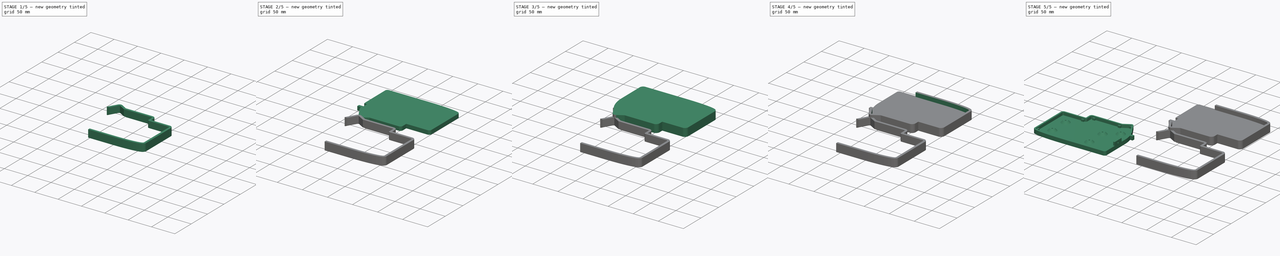
[diagram: build sequence overview — one tinted view per stage of 5, left to right]
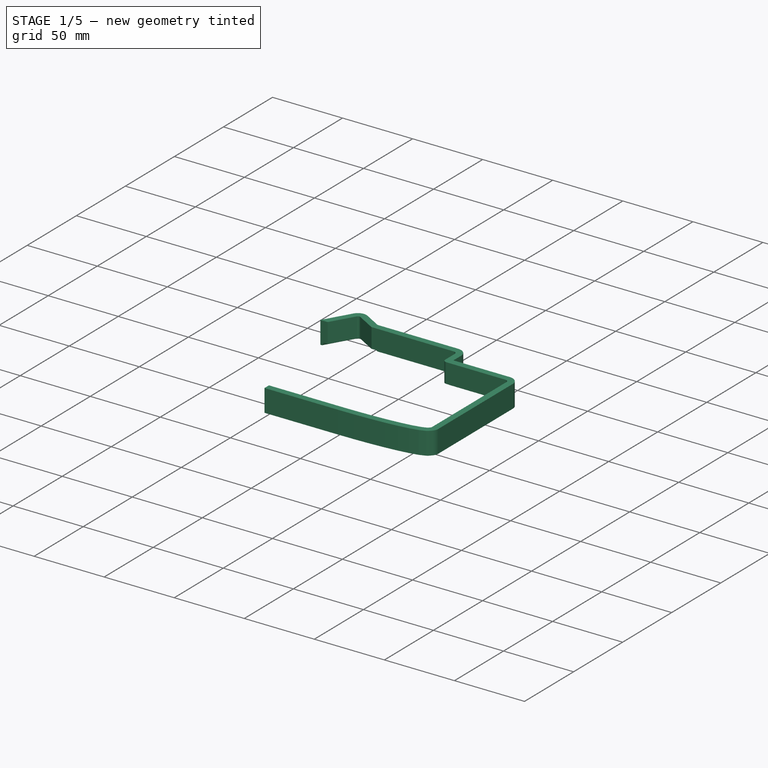
[diagram: stage 1 of 5 — iso view after this stage's code; geometry added in this stage tinted green]
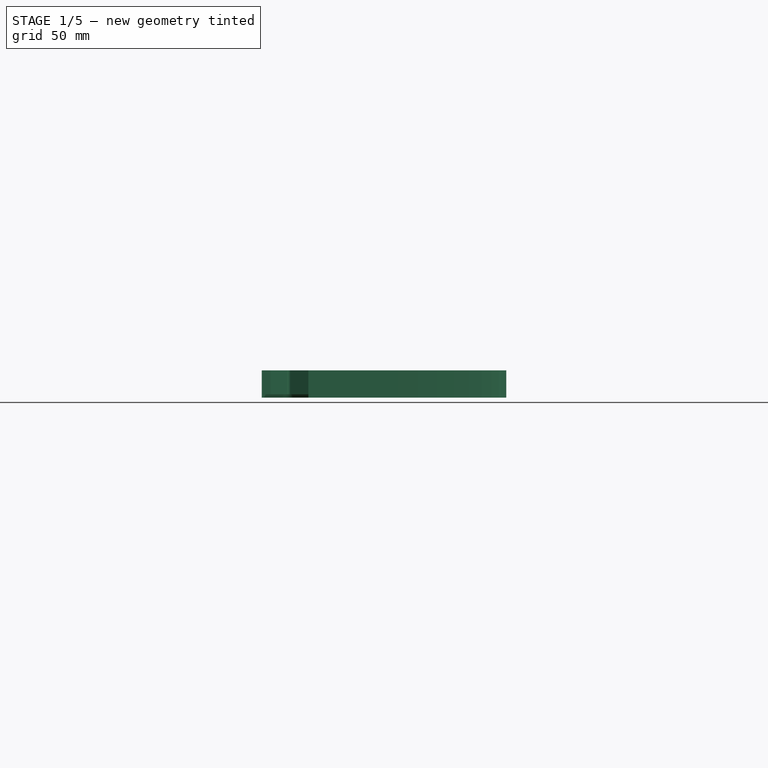
[diagram: stage 1 of 5 — front view after this stage's code; geometry added in this stage tinted green]
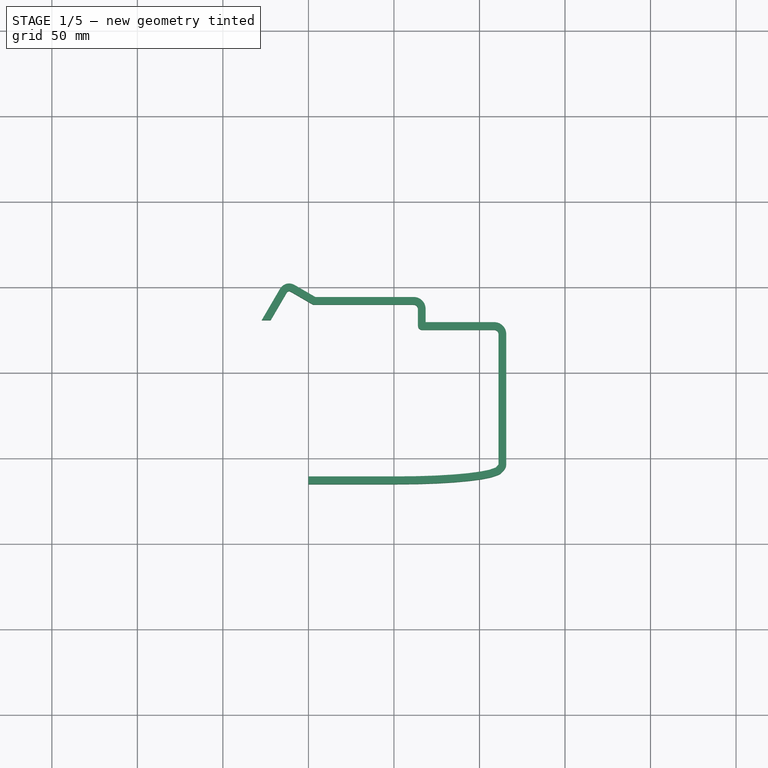
[diagram: stage 1 of 5 — top view after this stage's code; geometry added in this stage tinted green]
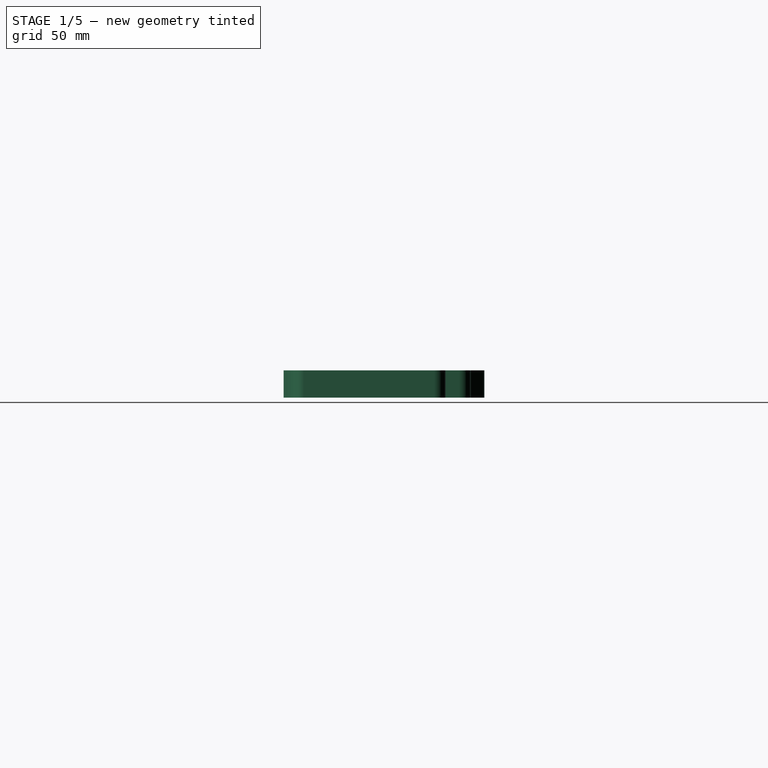
[diagram: stage 1 of 5 — right view after this stage's code; geometry added in this stage tinted green]
FCSTD DOCUMENT  (FreeCAD 1.0R39319 (Git))
Label: lily58pro_slim_18650_sandwich
License: All rights reserved
LicenseURL: https://en.wikipedia.org/wiki/All_rights_reserved
objects: Part::Feature×155, Sketcher::SketchObject×34, PartDesign::Pocket×17, PartDesign::Pad×13, PartDesign::Body×5, Part::Mirroring×3, PartDesign::Chamfer×3, App::FeaturePython×1, App::DocumentObjectGroupPython×1, App::DocumentObjectGroup×1, App::Part×1, PartDesign::Fillet×1
note: 333 computed .brp shape members not serialized (recipe doc carries the construction recipe); baked Part::Feature solids carry a one-line shape summary decoded from their .brp

FEATURE [Sketcher::SketchObject] Sketch077  label="outline_initial016"
  ArcFitTolerance = 1e-06
  FullyConstrained = false
  MakeInternals = false
  sketch-geometry (54):
    g0: ArcOfCircle CenterX=17.8287 CenterY=54.0866 CenterZ=0 NormalX=0 NormalY=0 NormalZ=-1 AngleXU=-1.60752 Radius=3.5 StartAngle=1.5708 EndAngle=1.6039
    g1: LineSegment StartX=14.1312 StartY=108.555 StartZ=0 EndX=14.3287 EndY=54.0739 EndZ=0
    g2: ArcOfCircle CenterX=17.6312 CenterY=108.567 CenterZ=0 NormalX=0 NormalY=0 NormalZ=-1 AngleXU=-1.57442 Radius=3.5 StartAngle=1.5708 EndAngle=1.58105
    g3: ArcOfCircle CenterX=18.6882 CenterY=108.56 CenterZ=0 NormalX=0 NormalY=0 NormalZ=1 AngleXU=0 Radius=4.55703 StartAngle=1.57742 EndAngle=3.13497
    g4: ArcOfCircle CenterX=18.6812 CenterY=109.617 CenterZ=0 NormalX=0 NormalY=0 NormalZ=-1 AngleXU=-0.00662567 Radius=3.5 StartAngle=1.5708 EndAngle=1.57742
    g5: LineSegment StartX=101.944 StartY=113.117 StartZ=0 EndX=18.6812 EndY=113.117 EndZ=0
    g6: ArcOfCircle CenterX=101.944 CenterY=109.617 CenterZ=0 NormalX=0 NormalY=0 NormalZ=-1 AngleXU=0 Radius=3.5 StartAngle=1.5708 EndAngle=1.58178
    g7: LineSegment StartX=113.721 StartY=112.988 StartZ=0 EndX=101.982 EndY=113.117 EndZ=0
    g8: ArcOfCircle CenterX=113.683 CenterY=109.488 CenterZ=0 NormalX=0 NormalY=0 NormalZ=-1 AngleXU=0.0109795 Radius=3.5 StartAngle=1.5708 EndAngle=1.59363
    g9: LineSegment StartX=124.731 StartY=112.617 StartZ=0 EndX=113.801 EndY=112.986 EndZ=0
    g10: ArcOfCircle CenterX=124.613 CenterY=109.119 CenterZ=0 NormalX=0 NormalY=0 NormalZ=-1 AngleXU=0.0338134 Radius=3.5 StartAngle=1.5708 EndAngle=1.59609
    g11: LineSegment StartX=134.707 StartY=112.028 StartZ=0 EndX=124.819 EndY=112.613 EndZ=0
    g12: ArcOfCircle CenterX=134.501 CenterY=108.534 CenterZ=0 NormalX=0 NormalY=0 NormalZ=-1 AngleXU=0.0591041 Radius=3.5 StartAngle=1.5708 EndAngle=1.60144
    g13: LineSegment StartX=143.427 StartY=111.244 StartZ=0 EndX=134.814 EndY=112.02 EndZ=0
    g14: ArcOfCircle CenterX=143.114 CenterY=107.759 CenterZ=0 NormalX=0 NormalY=0 NormalZ=-1 AngleXU=0.0897456 Radius=3.5 StartAngle=1.5708 EndAngle=1.61253
    g15: LineSegment StartX=150.678 StartY=110.289 StartZ=0 EndX=143.573 EndY=111.228 EndZ=0
    g16: ArcOfCircle CenterX=150.219 CenterY=106.819 CenterZ=0 NormalX=0 NormalY=0 NormalZ=-1 AngleXU=0.131483 Radius=3.5 StartAngle=1.5708 EndAngle=1.63778
    g17: LineSegment StartX=156.272 StartY=109.172 StartZ=0 EndX=150.909 EndY=110.25 EndZ=0
    g18: ArcOfCircle CenterX=155.582 CenterY=105.74 CenterZ=0 NormalX=0 NormalY=0 NormalZ=-1 AngleXU=0.198464 Radius=3.5 StartAngle=1.5708 EndAngle=1.71062
    g19: LineSegment StartX=160.133 StartY=107.85 StartZ=0 EndX=156.744 EndY=109.042 EndZ=0
    g20: ArcOfCircle CenterX=158.971 CenterY=104.548 CenterZ=0 NormalX=0 NormalY=0 NormalZ=-1 AngleXU=0.338287 Radius=3.5 StartAngle=1.5708 EndAngle=2.05811
    g21: LineSegment StartX=162.725 StartY=105.641 StartZ=0 EndX=161.544 EndY=106.921 EndZ=0
    g22: ArcOfCircle CenterX=160.153 CenterY=103.267 CenterZ=0 NormalX=0 NormalY=0 NormalZ=-1 AngleXU=0.825602 Radius=3.5 StartAngle=1.5708 EndAngle=2.31639
    g23: LineSegment StartX=163.653 StartY=103.266 StartZ=0 EndX=163.623 EndY=27.1105 EndZ=0
    g24: ArcOfCircle CenterX=160.123 CenterY=27.1119 CenterZ=0 NormalX=0 NormalY=0 NormalZ=-1 AngleXU=1.5712 Radius=3.5 StartAngle=1.5708 EndAngle=1.77315
    g25: ArcOfCircle CenterX=158.654 CenterY=27.4139 CenterZ=0 NormalX=0 NormalY=0 NormalZ=1 AngleXU=0 Radius=4.99977 StartAngle=4.91513 EndAngle=6.08043
    g26: ArcOfCircle CenterX=158.955 CenterY=25.9449 CenterZ=0 NormalX=0 NormalY=0 NormalZ=-1 AngleXU=2.93885 Radius=3.5 StartAngle=1.5708 EndAngle=1.76585
    g27: LineSegment StartX=158.982 StartY=22.445 StartZ=0 EndX=158.508 EndY=22.4413 EndZ=0
    g28: ArcOfCircle CenterX=158.481 CenterY=25.9412 CenterZ=0 NormalX=0 NormalY=0 NormalZ=-1 AngleXU=3.13391 Radius=3.5 StartAngle=1.5708 EndAngle=1.57848
    g29: LineSegment StartX=116.552 StartY=22.4412 StartZ=0 EndX=158.481 EndY=22.4412 EndZ=0
    g30: ArcOfCircle CenterX=116.556 CenterY=22.3973 CenterZ=0 NormalX=0 NormalY=0 NormalZ=1 AngleXU=0 Radius=0.044167 StartAngle=1.68239 EndAngle=3.0984
    g31: LineSegment StartX=116.512 StartY=22.3992 StartZ=0 EndX=116.512 EndY=12.6932 EndZ=0
    g32: ArcOfCircle CenterX=111.513 CenterY=12.6916 CenterZ=0 NormalX=0 NormalY=0 NormalZ=1 AngleXU=0 Radius=4.99911 StartAngle=4.71207 EndAngle=6.28351
    g33: LineSegment StartX=53.4961 StartY=7.69248 StartZ=0 EndX=111.512 EndY=7.69248 EndZ=0
    g34: LineSegment StartX=40.9031 StartY=0.40324 StartZ=0 EndX=53.4961 EndY=7.69248 EndZ=0
    g35: ArcOfCircle CenterX=39.1497 CenterY=3.43238 CenterZ=0 NormalX=0 NormalY=0 NormalZ=-1 AngleXU=2.61688 Radius=3.5 StartAngle=1.5708 EndAngle=1.62438
    g36: LineSegment StartX=40.5705 StartY=0.228155 StartZ=0 EndX=40.7384 EndY=0.313675 EndZ=0
    g37: ArcOfCircle CenterX=38.9819 CenterY=3.34686 CenterZ=0 NormalX=0 NormalY=0 NormalZ=-1 AngleXU=2.67047 Radius=3.5 StartAngle=1.5708 EndAngle=1.75282
    g38: LineSegment StartX=39.821 StartY=-0.055087 StartZ=0 EndX=39.9797 EndY=-0.00789703 EndZ=0
    g39: ArcOfCircle CenterX=38.8232 CenterY=3.29967 CenterZ=0 NormalX=0 NormalY=0 NormalZ=-1 AngleXU=2.8525 Radius=3.5 StartAngle=1.5708 EndAngle=1.79613
    g40: LineSegment StartX=38.8973 StartY=-0.202728 StartZ=0 EndX=39.0462 EndY=-0.193218 EndZ=0
    g41: ArcOfCircle CenterX=38.6743 CenterY=3.29016 CenterZ=0 NormalX=0 NormalY=0 NormalZ=-1 AngleXU=3.07783 Radius=3.5 StartAngle=1.5708 EndAngle=1.83039
    g42: LineSegment StartX=37.8544 StartY=-0.115413 StartZ=0 EndX=37.9932 EndY=-0.142943 EndZ=0
    g43: ArcOfCircle CenterX=38.5355 CenterY=3.31769 CenterZ=0 NormalX=0 NormalY=0 NormalZ=-1 AngleXU=-2.94576 Radius=3.5 StartAngle=1.5708 EndAngle=1.83758
    g44: LineSegment StartX=36.8453 StartY=0.249493 StartZ=0 EndX=36.9734 EndY=0.185583 EndZ=0
    g45: ArcOfCircle CenterX=38.4073 CenterY=3.3816 CenterZ=0 NormalX=0 NormalY=0 NormalZ=-1 AngleXU=-2.67898 Radius=3.5 StartAngle=1.5708 EndAngle=1.81354
    g46: LineSegment StartX=36.0212 StartY=0.816424 StartZ=0 EndX=36.1382 EndY=0.716774 EndZ=0
    g47: ArcOfCircle CenterX=38.2903 CenterY=3.48125 CenterZ=0 NormalX=0 NormalY=0 NormalZ=-1 AngleXU=-2.43623 Radius=3.5 StartAngle=1.5708 EndAngle=1.77214
    g48: LineSegment StartX=35.4287 StartY=1.45877 StartZ=0 EndX=35.5341 EndY=1.32403 EndZ=0
    g49: ArcOfCircle CenterX=38.1848 CenterY=3.61599 CenterZ=0 NormalX=0 NormalY=0 NormalZ=-1 AngleXU=-2.23489 Radius=3.5 StartAngle=1.5708 EndAngle=1.72726
    g50: LineSegment StartX=35.0474 StartY=2.05623 StartZ=0 EndX=35.1262 EndY=1.91461 EndZ=0
    g51: LineSegment StartX=21.6648 StartY=24.9482 StartZ=0 EndX=35.0474 EndY=2.05623 EndZ=0
    g52: ArcOfCircle CenterX=24.6863 CenterY=26.7146 CenterZ=0 NormalX=0 NormalY=0 NormalZ=-1 AngleXU=-2.09982 Radius=3.5 StartAngle=1.5708 EndAngle=1.64558
    g53: ArcOfCircle CenterX=85.8629 CenterY=56.5865 CenterZ=0 NormalX=0 NormalY=0 NormalZ=1 AngleXU=0 Radius=71.5801 StartAngle=3.17832 EndAngle=3.59583
  constraints (54):
    c: Tangent(g0,g1) = -1.5708
    c: Tangent(g0,g53) = -1.5708
    c: Tangent(g1,g2) = -1.5708
    c: Tangent(g2,g3) = -1.5708
    c: Tangent(g3,g4) = -1.5708
    c: Tangent(g4,g5) = -1.5708
    c: Tangent(g5,g6) = -1.5708
    c: Tangent(g6,g7) = -1.5708
    c: Tangent(g7,g8) = -1.5708
    c: Tangent(g8,g9) = -1.5708
    c: Tangent(g9,g10) = -1.5708
    c: Tangent(g10,g11) = -1.5708
    c: Tangent(g11,g12) = -1.5708
    c: Tangent(g12,g13) = -1.5708
    c: Tangent(g13,g14) = -1.5708
    c: Tangent(g14,g15) = -1.5708
    c: Tangent(g15,g16) = -1.5708
    c: Tangent(g16,g17) = -1.5708
    c: Tangent(g17,g18) = -1.5708
    c: Tangent(g18,g19) = -1.5708
    c: Tangent(g19,g20) = -1.5708
    c: Tangent(g20,g21) = -1.5708
    c: Tangent(g21,g22) = -1.5708
    c: Tangent(g22,g23) = 1.5708
    c: Tangent(g23,g24) = 1.5708
    c: Tangent(g24,g25) = -1.5708
    c: Tangent(g25,g26) = -1.5708
    c: Tangent(g26,g27) = 1.5708
    c: Tangent(g27,g28) = 1.5708
    c: Tangent(g28,g29) = -1.5708
    c: Coincident(g29,g30)
    c: Coincident(g30,g31)
    c: Coincident(g31,g32)
    c: Coincident(g32,g33)
    c: Coincident(g33,g34)
    c: Tangent(g34,g35) = -1.5708
    c: Tangent(g35,g36) = -1.5708
    c: Tangent(g36,g37) = -1.5708
    c: Tangent(g37,g38) = -1.5708
    c: Tangent(g38,g39) = -1.5708
    c: Tangent(g39,g40) = -1.5708
    c: Tangent(g40,g41) = -1.5708
    c: Tangent(g41,g42) = -1.5708
    c: Tangent(g42,g43) = -1.5708
    c: Tangent(g43,g44) = -1.5708
    c: Tangent(g44,g45) = -1.5708
    c: Tangent(g45,g46) = -1.5708
    c: Tangent(g46,g47) = -1.5708
    c: Tangent(g47,g48) = -1.5708
    c: Tangent(g48,g49) = -1.5708
    c: Tangent(g49,g50) = -1.5708
    c: Coincident(g50,g51)
    c: Tangent(g51,g52) = -1.5708
    c: Tangent(g52,g53) = -1.5708
FEATURE [Sketcher::SketchObject] Sketch078  label="outline_initial017"
  ArcFitTolerance = 1e-06
  FullyConstrained = false
  MakeInternals = false
  sketch-geometry (54):
    g0: ArcOfCircle CenterX=17.8287 CenterY=54.0866 CenterZ=0 NormalX=0 NormalY=0 NormalZ=-1 AngleXU=-1.60752 Radius=1 StartAngle=1.5708 EndAngle=1.6039
    g1: LineSegment StartX=16.6312 StartY=108.564 StartZ=0 EndX=16.8287 EndY=54.083 EndZ=0
    g2: ArcOfCircle CenterX=17.6312 CenterY=108.567 CenterZ=0 NormalX=0 NormalY=0 NormalZ=-1 AngleXU=-1.57442 Radius=1 StartAngle=1.5708 EndAngle=1.58105
    g3: ArcOfCircle CenterX=18.6882 CenterY=108.56 CenterZ=0 NormalX=0 NormalY=0 NormalZ=1 AngleXU=0 Radius=2.05703 StartAngle=1.57742 EndAngle=3.13497
    g4: ArcOfCircle CenterX=18.6812 CenterY=109.617 CenterZ=0 NormalX=0 NormalY=0 NormalZ=-1 AngleXU=-0.00662567 Radius=1 StartAngle=1.5708 EndAngle=1.57742
    g5: LineSegment StartX=101.944 StartY=110.617 StartZ=0 EndX=18.6812 EndY=110.617 EndZ=0
    g6: ArcOfCircle CenterX=101.944 CenterY=109.617 CenterZ=0 NormalX=0 NormalY=0 NormalZ=-1 AngleXU=0 Radius=1 StartAngle=1.5708 EndAngle=1.58178
    g7: LineSegment StartX=113.694 StartY=110.488 StartZ=0 EndX=101.955 EndY=110.617 EndZ=0
    g8: ArcOfCircle CenterX=113.683 CenterY=109.488 CenterZ=0 NormalX=0 NormalY=0 NormalZ=-1 AngleXU=0.0109795 Radius=1 StartAngle=1.5708 EndAngle=1.59363
    g9: LineSegment StartX=124.646 StartY=110.118 StartZ=0 EndX=113.716 EndY=110.488 EndZ=0
    g10: ArcOfCircle CenterX=124.613 CenterY=109.119 CenterZ=0 NormalX=0 NormalY=0 NormalZ=-1 AngleXU=0.0338134 Radius=1 StartAngle=1.5708 EndAngle=1.59609
    g11: LineSegment StartX=134.56 StartY=109.532 StartZ=0 EndX=124.672 EndY=110.117 EndZ=0
    g12: ArcOfCircle CenterX=134.501 CenterY=108.534 CenterZ=0 NormalX=0 NormalY=0 NormalZ=-1 AngleXU=0.0591041 Radius=1 StartAngle=1.5708 EndAngle=1.60144
    g13: LineSegment StartX=143.203 StartY=108.755 StartZ=0 EndX=134.59 EndY=109.53 EndZ=0
    g14: ArcOfCircle CenterX=143.114 CenterY=107.759 CenterZ=0 NormalX=0 NormalY=0 NormalZ=-1 AngleXU=0.0897456 Radius=1 StartAngle=1.5708 EndAngle=1.61253
    g15: LineSegment StartX=150.35 StartY=107.81 StartZ=0 EndX=143.245 EndY=108.75 EndZ=0
    g16: ArcOfCircle CenterX=150.219 CenterY=106.819 CenterZ=0 NormalX=0 NormalY=0 NormalZ=-1 AngleXU=0.131483 Radius=1 StartAngle=1.5708 EndAngle=1.63778
    g17: LineSegment StartX=155.779 StartY=106.721 StartZ=0 EndX=150.416 EndY=107.799 EndZ=0
    g18: ArcOfCircle CenterX=155.582 CenterY=105.74 CenterZ=0 NormalX=0 NormalY=0 NormalZ=-1 AngleXU=0.198464 Radius=1 StartAngle=1.5708 EndAngle=1.71062
    g19: LineSegment StartX=159.303 StartY=105.491 StartZ=0 EndX=155.914 EndY=106.684 EndZ=0
    g20: ArcOfCircle CenterX=158.971 CenterY=104.548 CenterZ=0 NormalX=0 NormalY=0 NormalZ=-1 AngleXU=0.338287 Radius=1 StartAngle=1.5708 EndAngle=2.05811
    g21: LineSegment StartX=160.888 StartY=103.945 StartZ=0 EndX=159.706 EndY=105.226 EndZ=0
    g22: ArcOfCircle CenterX=160.153 CenterY=103.267 CenterZ=0 NormalX=0 NormalY=0 NormalZ=-1 AngleXU=0.825602 Radius=1 StartAngle=1.5708 EndAngle=2.31639
    g23: LineSegment StartX=161.153 StartY=103.267 StartZ=0 EndX=161.123 EndY=27.1115 EndZ=0
    g24: ArcOfCircle CenterX=160.123 CenterY=27.1119 CenterZ=0 NormalX=0 NormalY=0 NormalZ=-1 AngleXU=1.5712 Radius=1 StartAngle=1.5708 EndAngle=1.77315
    g25: ArcOfCircle CenterX=158.654 CenterY=27.4139 CenterZ=0 NormalX=0 NormalY=0 NormalZ=1 AngleXU=0 Radius=2.49977 StartAngle=4.91513 EndAngle=6.08043
    g26: ArcOfCircle CenterX=158.955 CenterY=25.9449 CenterZ=0 NormalX=0 NormalY=0 NormalZ=-1 AngleXU=2.93885 Radius=1 StartAngle=1.5708 EndAngle=1.76585
    g27: LineSegment StartX=158.963 StartY=24.9449 StartZ=0 EndX=158.489 EndY=24.9412 EndZ=0
    g28: ArcOfCircle CenterX=158.481 CenterY=25.9412 CenterZ=0 NormalX=0 NormalY=0 NormalZ=-1 AngleXU=3.13391 Radius=1 StartAngle=1.5708 EndAngle=1.57848
    g29: LineSegment StartX=116.519 StartY=24.9412 StartZ=0 EndX=158.481 EndY=24.9412 EndZ=0
    g30: ArcOfCircle CenterX=116.556 CenterY=22.3973 CenterZ=0 NormalX=0 NormalY=0 NormalZ=1 AngleXU=0 Radius=2.54417 StartAngle=1.58549 EndAngle=3.1359
    g31: LineSegment StartX=114.012 StartY=22.4118 StartZ=0 EndX=114.012 EndY=12.6927 EndZ=0
    g32: ArcOfCircle CenterX=111.513 CenterY=12.6916 CenterZ=0 NormalX=0 NormalY=0 NormalZ=1 AngleXU=0 Radius=2.49911 StartAngle=4.71193 EndAngle=6.28364
    g33: LineSegment StartX=52.8247 StartY=10.1925 StartZ=0 EndX=111.512 EndY=10.1925 EndZ=0
    g34: LineSegment StartX=39.6507 StartY=2.56691 StartZ=0 EndX=52.8247 EndY=10.1925 EndZ=0
    g35: ArcOfCircle CenterX=39.1497 CenterY=3.43238 CenterZ=0 NormalX=0 NormalY=0 NormalZ=-1 AngleXU=2.61688 Radius=1 StartAngle=1.5708 EndAngle=1.62438
    g36: LineSegment StartX=39.4357 StartY=2.4558 StartZ=0 EndX=39.6036 EndY=2.54132 EndZ=0
    g37: ArcOfCircle CenterX=38.9819 CenterY=3.34686 CenterZ=0 NormalX=0 NormalY=0 NormalZ=-1 AngleXU=2.67047 Radius=1 StartAngle=1.5708 EndAngle=1.75282
    g38: LineSegment StartX=39.1083 StartY=2.34117 StartZ=0 EndX=39.2669 EndY=2.38836 EndZ=0
    g39: ArcOfCircle CenterX=38.8232 CenterY=3.29967 CenterZ=0 NormalX=0 NormalY=0 NormalZ=-1 AngleXU=2.8525 Radius=1 StartAngle=1.5708 EndAngle=1.79613
    g40: LineSegment StartX=38.738 StartY=2.29219 StartZ=0 EndX=38.8869 EndY=2.3017 EndZ=0
    g41: ArcOfCircle CenterX=38.6743 CenterY=3.29016 CenterZ=0 NormalX=0 NormalY=0 NormalZ=-1 AngleXU=3.07783 Radius=1 StartAngle=1.5708 EndAngle=1.83039
    g42: LineSegment StartX=38.3409 StartY=2.3368 StartZ=0 EndX=38.4797 EndY=2.30927 EndZ=0
    g43: ArcOfCircle CenterX=38.5355 CenterY=3.31769 CenterZ=0 NormalX=0 NormalY=0 NormalZ=-1 AngleXU=-2.94576 Radius=1 StartAngle=1.5708 EndAngle=1.83758
    g44: LineSegment StartX=37.961 StartY=2.48671 StartZ=0 EndX=38.0892 EndY=2.4228 EndZ=0
    g45: ArcOfCircle CenterX=38.4073 CenterY=3.3816 CenterZ=0 NormalX=0 NormalY=0 NormalZ=-1 AngleXU=-2.67898 Radius=1 StartAngle=1.5708 EndAngle=1.81354
    g46: LineSegment StartX=37.642 StartY=2.71987 StartZ=0 EndX=37.759 EndY=2.62022 EndZ=0
    g47: ArcOfCircle CenterX=38.2903 CenterY=3.48125 CenterZ=0 NormalX=0 NormalY=0 NormalZ=-1 AngleXU=-2.43623 Radius=1 StartAngle=1.5708 EndAngle=1.77214
    g48: LineSegment StartX=37.3974 StartY=2.99964 StartZ=0 EndX=37.5028 EndY=2.8649 EndZ=0
    g49: ArcOfCircle CenterX=38.1848 CenterY=3.61599 CenterZ=0 NormalX=0 NormalY=0 NormalZ=-1 AngleXU=-2.23489 Radius=1 StartAngle=1.5708 EndAngle=1.72726
    g50: LineSegment StartX=37.2192 StartY=3.29487 StartZ=0 EndX=37.3109 EndY=3.12988 EndZ=0
    g51: LineSegment StartX=23.823 StartY=26.2099 StartZ=0 EndX=37.2192 EndY=3.29487 EndZ=0
    g52: ArcOfCircle CenterX=24.6863 CenterY=26.7146 CenterZ=0 NormalX=0 NormalY=0 NormalZ=-1 AngleXU=-2.09982 Radius=1 StartAngle=1.5708 EndAngle=1.64558
    g53: ArcOfCircle CenterX=85.8629 CenterY=56.5865 CenterZ=0 NormalX=0 NormalY=0 NormalZ=1 AngleXU=0 Radius=69.0801 StartAngle=3.17832 EndAngle=3.59583
  constraints (54):
    c: Tangent(g0,g1) = -1.5708
    c: Tangent(g0,g53) = -1.5708
    c: Tangent(g1,g2) = -1.5708
    c: Tangent(g2,g3) = -1.5708
    c: Tangent(g3,g4) = -1.5708
    c: Tangent(g4,g5) = -1.5708
    c: Tangent(g5,g6) = -1.5708
    c: Tangent(g6,g7) = -1.5708
    c: Tangent(g7,g8) = -1.5708
    c: Tangent(g8,g9) = -1.5708
    c: Tangent(g9,g10) = -1.5708
    c: Tangent(g10,g11) = -1.5708
    c: Tangent(g11,g12) = -1.5708
    c: Tangent(g12,g13) = -1.5708
    c: Tangent(g13,g14) = -1.5708
    c: Tangent(g14,g15) = -1.5708
    c: Tangent(g15,g16) = -1.5708
    c: Tangent(g16,g17) = -1.5708
    c: Tangent(g17,g18) = -1.5708
    c: Tangent(g18,g19) = -1.5708
    c: Tangent(g19,g20) = -1.5708
    c: Tangent(g20,g21) = -1.5708
    c: Tangent(g21,g22) = -1.5708
    c: Tangent(g22,g23) = 1.5708
    c: Tangent(g23,g24) = 1.5708
    c: Tangent(g24,g25) = -1.5708
    c: Tangent(g25,g26) = -1.5708
    c: Tangent(g26,g27) = 1.5708
    c: Tangent(g27,g28) = 1.5708
    c: Tangent(g28,g29) = -1.5708
    c: Coincident(g29,g30)
    c: Coincident(g30,g31)
    c: Coincident(g31,g32)
    c: Coincident(g32,g33)
    c: Coincident(g33,g34)
    c: Tangent(g34,g35) = -1.5708
    c: Tangent(g35,g36) = -1.5708
    c: Tangent(g36,g37) = -1.5708
    c: Tangent(g37,g38) = -1.5708
    c: Tangent(g38,g39) = -1.5708
    c: Tangent(g39,g40) = -1.5708
    c: Tangent(g40,g41) = -1.5708
    c: Tangent(g41,g42) = -1.5708
    c: Tangent(g42,g43) = -1.5708
    c: Tangent(g43,g44) = -1.5708
    c: Tangent(g44,g45) = -1.5708
    c: Tangent(g45,g46) = -1.5708
    c: Tangent(g46,g47) = -1.5708
    c: Tangent(g47,g48) = -1.5708
    c: Tangent(g48,g49) = -1.5708
    c: Tangent(g49,g50) = -1.5708
    c: Coincident(g50,g51)
    c: Tangent(g51,g52) = -1.5708
    c: Tangent(g52,g53) = -1.5708
FEATURE [Sketcher::SketchObject] Sketch079  label="outline_initial018"
  ArcFitTolerance = 1e-06
  FullyConstrained = false
  MakeInternals = false
  sketch-geometry (53):
    g0: ArcOfCircle CenterX=85.8629 CenterY=56.5865 CenterZ=0 NormalX=0 NormalY=0 NormalZ=1 AngleXU=0 Radius=73.5801 StartAngle=3.17832 EndAngle=3.59583
    g1: ArcOfCircle CenterX=24.6863 CenterY=26.7146 CenterZ=0 NormalX=0 NormalY=0 NormalZ=-1 AngleXU=-2.09982 Radius=5.5 StartAngle=1.5708 EndAngle=1.64558
    g2: LineSegment StartX=19.9382 StartY=23.9389 StartZ=0 EndX=33.31 EndY=1.06532 EndZ=0
    g3: LineSegment StartX=33.31 StartY=1.06532 StartZ=0 EndX=33.3784 EndY=0.942389 EndZ=0
    g4: ArcOfCircle CenterX=38.1848 CenterY=3.61599 CenterZ=0 NormalX=0 NormalY=0 NormalZ=-1 AngleXU=-2.23489 Radius=5.5 StartAngle=1.5708 EndAngle=1.72726
    g5: LineSegment StartX=33.8537 StartY=0.226069 StartZ=0 EndX=33.9592 EndY=0.0913292 EndZ=0
    g6: ArcOfCircle CenterX=38.2903 CenterY=3.48125 CenterZ=0 NormalX=0 NormalY=0 NormalZ=-1 AngleXU=-2.43623 Radius=5.5 StartAngle=1.5708 EndAngle=1.77214
    g7: LineSegment StartX=34.7246 StartY=-0.706333 StartZ=0 EndX=34.8416 EndY=-0.805983 EndZ=0
    g8: ArcOfCircle CenterX=38.4073 CenterY=3.3816 CenterZ=0 NormalX=0 NormalY=0 NormalZ=-1 AngleXU=-2.67898 Radius=5.5 StartAngle=1.5708 EndAngle=1.81354
    g9: LineSegment StartX=35.9527 StartY=-1.54028 StartZ=0 EndX=36.0809 EndY=-1.60419 EndZ=0
    g10: ArcOfCircle CenterX=38.5355 CenterY=3.31769 CenterZ=0 NormalX=0 NormalY=0 NormalZ=-1 AngleXU=-2.94576 Radius=5.5 StartAngle=1.5708 EndAngle=1.83758
    g11: LineSegment StartX=37.4653 StartY=-2.07719 StartZ=0 EndX=37.6041 EndY=-2.10472 EndZ=0
    g12: ArcOfCircle CenterX=38.6743 CenterY=3.29016 CenterZ=0 NormalX=0 NormalY=0 NormalZ=-1 AngleXU=3.07783 Radius=5.5 StartAngle=1.5708 EndAngle=1.83039
    g13: LineSegment StartX=39.0247 StartY=-2.19866 StartZ=0 EndX=39.1736 EndY=-2.18915 EndZ=0
    g14: ArcOfCircle CenterX=38.8232 CenterY=3.29967 CenterZ=0 NormalX=0 NormalY=0 NormalZ=-1 AngleXU=2.8525 Radius=5.5 StartAngle=1.5708 EndAngle=1.79613
    g15: LineSegment StartX=40.3912 StartY=-1.97209 StartZ=0 EndX=40.5498 EndY=-1.9249 EndZ=0
    g16: ArcOfCircle CenterX=38.9819 CenterY=3.34686 CenterZ=0 NormalX=0 NormalY=0 NormalZ=-1 AngleXU=2.67047 Radius=5.5 StartAngle=1.5708 EndAngle=1.75282
    g17: LineSegment StartX=41.4782 StartY=-1.55396 StartZ=0 EndX=41.6461 EndY=-1.46844 EndZ=0
    g18: ArcOfCircle CenterX=39.1497 CenterY=3.43238 CenterZ=0 NormalX=0 NormalY=0 NormalZ=-1 AngleXU=2.61688 Radius=5.5 StartAngle=1.5708 EndAngle=1.62438
    g19: LineSegment StartX=41.905 StartY=-1.3277 StartZ=0 EndX=54.0332 EndY=5.69248 EndZ=0
    g20: LineSegment StartX=54.0332 StartY=5.69248 StartZ=0 EndX=111.511 EndY=5.69248 EndZ=0
    g21: ArcOfCircle CenterX=111.513 CenterY=12.6916 CenterZ=0 NormalX=0 NormalY=0 NormalZ=1 AngleXU=0 Radius=6.99911 StartAngle=4.71212 EndAngle=6.28346
    g22: LineSegment StartX=118.512 StartY=20.4412 StartZ=0 EndX=118.512 EndY=12.6935 EndZ=0
    g23: LineSegment StartX=118.512 StartY=20.4412 StartZ=0 EndX=158.481 EndY=20.4412 EndZ=0
    g24: ArcOfCircle CenterX=158.481 CenterY=25.9412 CenterZ=0 NormalX=0 NormalY=0 NormalZ=-1 AngleXU=3.13391 Radius=5.5 StartAngle=1.5708 EndAngle=1.57848
    g25: LineSegment StartX=158.998 StartY=20.445 StartZ=0 EndX=158.523 EndY=20.4414 EndZ=0
    g26: ArcOfCircle CenterX=158.955 CenterY=25.9449 CenterZ=0 NormalX=0 NormalY=0 NormalZ=-1 AngleXU=2.93885 Radius=5.5 StartAngle=1.5708 EndAngle=1.76585
    g27: ArcOfCircle CenterX=158.654 CenterY=27.4139 CenterZ=0 NormalX=0 NormalY=0 NormalZ=1 AngleXU=0 Radius=6.99977 StartAngle=4.91513 EndAngle=6.08043
    g28: ArcOfCircle CenterX=160.123 CenterY=27.1119 CenterZ=0 NormalX=0 NormalY=0 NormalZ=-1 AngleXU=1.5712 Radius=5.5 StartAngle=1.5708 EndAngle=1.77315
    g29: LineSegment StartX=165.653 StartY=103.265 StartZ=0 EndX=165.623 EndY=27.1097 EndZ=0
    g30: ArcOfCircle CenterX=160.153 CenterY=103.267 CenterZ=0 NormalX=0 NormalY=0 NormalZ=-1 AngleXU=0.825602 Radius=5.5 StartAngle=1.5708 EndAngle=2.31639
    g31: LineSegment StartX=164.195 StartY=106.997 StartZ=0 EndX=163.014 EndY=108.278 EndZ=0
    g32: ArcOfCircle CenterX=158.971 CenterY=104.548 CenterZ=0 NormalX=0 NormalY=0 NormalZ=-1 AngleXU=0.338287 Radius=5.5 StartAngle=1.5708 EndAngle=2.05811
    g33: LineSegment StartX=160.797 StartY=109.736 StartZ=0 EndX=157.408 EndY=110.929 EndZ=0
    g34: ArcOfCircle CenterX=155.582 CenterY=105.74 CenterZ=0 NormalX=0 NormalY=0 NormalZ=-1 AngleXU=0.198464 Radius=5.5 StartAngle=1.5708 EndAngle=1.71062
    g35: LineSegment StartX=156.667 StartY=111.132 StartZ=0 EndX=151.303 EndY=112.211 EndZ=0
    g36: ArcOfCircle CenterX=150.219 CenterY=106.819 CenterZ=0 NormalX=0 NormalY=0 NormalZ=-1 AngleXU=0.131483 Radius=5.5 StartAngle=1.5708 EndAngle=1.63778
    g37: LineSegment StartX=150.94 StartY=112.272 StartZ=0 EndX=143.835 EndY=113.211 EndZ=0
    g38: ArcOfCircle CenterX=143.114 CenterY=107.759 CenterZ=0 NormalX=0 NormalY=0 NormalZ=-1 AngleXU=0.0897456 Radius=5.5 StartAngle=1.5708 EndAngle=1.61253
    g39: LineSegment StartX=143.607 StartY=113.236 StartZ=0 EndX=134.994 EndY=114.012 EndZ=0
    g40: ArcOfCircle CenterX=134.501 CenterY=108.534 CenterZ=0 NormalX=0 NormalY=0 NormalZ=-1 AngleXU=0.0591041 Radius=5.5 StartAngle=1.5708 EndAngle=1.60144
    g41: LineSegment StartX=134.826 StartY=114.024 StartZ=0 EndX=124.937 EndY=114.609 EndZ=0
    g42: ArcOfCircle CenterX=124.613 CenterY=109.119 CenterZ=0 NormalX=0 NormalY=0 NormalZ=-1 AngleXU=0.0338134 Radius=5.5 StartAngle=1.5708 EndAngle=1.59609
    g43: LineSegment StartX=124.798 StartY=114.616 StartZ=0 EndX=113.868 EndY=114.985 EndZ=0
    g44: ArcOfCircle CenterX=113.683 CenterY=109.488 CenterZ=0 NormalX=0 NormalY=0 NormalZ=-1 AngleXU=0.0109795 Radius=5.5 StartAngle=1.5708 EndAngle=1.59363
    g45: LineSegment StartX=113.743 StartY=114.988 StartZ=0 EndX=102.004 EndY=115.117 EndZ=0
    g46: ArcOfCircle CenterX=101.944 CenterY=109.617 CenterZ=0 NormalX=0 NormalY=0 NormalZ=-1 AngleXU=0 Radius=5.5 StartAngle=1.5708 EndAngle=1.58178
    g47: LineSegment StartX=101.944 StartY=115.117 StartZ=0 EndX=18.6812 EndY=115.117 EndZ=0
    g48: ArcOfCircle CenterX=18.6812 CenterY=109.617 CenterZ=0 NormalX=0 NormalY=0 NormalZ=-1 AngleXU=-0.00662567 Radius=5.5 StartAngle=1.5708 EndAngle=1.57742
    g49: ArcOfCircle CenterX=18.6882 CenterY=108.56 CenterZ=0 NormalX=0 NormalY=0 NormalZ=1 AngleXU=0 Radius=6.55703 StartAngle=1.57742 EndAngle=3.13497
    g50: ArcOfCircle CenterX=17.6312 CenterY=108.567 CenterZ=0 NormalX=0 NormalY=0 NormalZ=-1 AngleXU=-1.57442 Radius=5.5 StartAngle=1.5708 EndAngle=1.58105
    g51: LineSegment StartX=12.1312 StartY=108.547 StartZ=0 EndX=12.3287 EndY=54.0667 EndZ=0
    g52: ArcOfCircle CenterX=17.8287 CenterY=54.0866 CenterZ=0 NormalX=0 NormalY=0 NormalZ=-1 AngleXU=-1.60752 Radius=5.5 StartAngle=1.5708 EndAngle=1.6039
  constraints (53):
    c: Tangent(g0,g1) = -1.5708
    c: Tangent(g0,g52) = -1.5708
    c: Tangent(g1,g2) = -1.5708
    c: Coincident(g2,g3)
    c: Tangent(g3,g4) = -1.5708
    c: Tangent(g4,g5) = -1.5708
    c: Tangent(g5,g6) = -1.5708
    c: Tangent(g6,g7) = -1.5708
    c: Tangent(g7,g8) = -1.5708
    c: Tangent(g8,g9) = -1.5708
    c: Tangent(g9,g10) = -1.5708
    c: Tangent(g10,g11) = -1.5708
    c: Tangent(g11,g12) = -1.5708
    c: Tangent(g12,g13) = -1.5708
    c: Tangent(g13,g14) = -1.5708
    c: Tangent(g14,g15) = -1.5708
    c: Tangent(g15,g16) = -1.5708
    c: Tangent(g16,g17) = -1.5708
    c: Tangent(g17,g18) = -1.5708
    c: Tangent(g18,g19) = -1.5708
    c: Coincident(g19,g20)
    c: Coincident(g20,g21)
    c: Coincident(g21,g22)
    c: Coincident(g22,g23)
    c: Tangent(g23,g24) = -1.5708
    c: Tangent(g24,g25) = 1.5708
    c: Tangent(g25,g26) = 1.5708
    c: Tangent(g26,g27) = -1.5708
    c: Tangent(g27,g28) = -1.5708
    c: Tangent(g28,g29) = 1.5708
    c: Tangent(g29,g30) = 1.5708
    c: Tangent(g30,g31) = -1.5708
    c: Tangent(g31,g32) = -1.5708
    c: Tangent(g32,g33) = -1.5708
    c: Tangent(g33,g34) = -1.5708
    c: Tangent(g34,g35) = -1.5708
    c: Tangent(g35,g36) = -1.5708
    c: Tangent(g36,g37) = -1.5708
    c: Tangent(g37,g38) = -1.5708
    c: Tangent(g38,g39) = -1.5708
    c: Tangent(g39,g40) = -1.5708
    c: Tangent(g40,g41) = -1.5708
    c: Tangent(g41,g42) = -1.5708
    c: Tangent(g42,g43) = -1.5708
    c: Tangent(g43,g44) = -1.5708
    c: Tangent(g44,g45) = -1.5708
    c: Tangent(g45,g46) = -1.5708
    c: Tangent(g46,g47) = -1.5708
    c: Tangent(g47,g48) = -1.5708
    c: Tangent(g48,g49) = -1.5708
    c: Tangent(g49,g50) = -1.5708
    c: Tangent(g50,g51) = -1.5708
    c: Tangent(g51,g52) = -1.5708
FEATURE [PartDesign::Pad] Pad025
  Direction = (0,0,1)
  Length = 16
  Length2 = 10
  Profile = -> Sketch079
  ReferenceAxis = -> Sketch079 [N_Axis]
  Refine = true
  Suppressed = false
  Type = 0
FEATURE [PartDesign::Pocket] Pocket022
  BaseFeature = -> Pad025
  Direction = (0,0,-1)
  Length = 2
  Length2 = 5
  Profile = -> Sketch077
  ReferenceAxis = -> Sketch077 [N_Axis]
  Refine = true
  Reversed = true
  Suppressed = false
  Type = 0
FEATURE [PartDesign::Chamfer] Chamfer002
  Angle = 65
  Base = -> Pocket022 [Edge113]
  BaseFeature = -> Pocket022
  ChamferType = 2
  FlipDirection = false
  Refine = true
  Size = 0.9
  Size2 = 1
  SupportTransform = false
  Suppressed = false
  UseAllEdges = false
FEATURE [PartDesign::Pocket] Pocket023
  BaseFeature = -> Chamfer002
  Direction = (0,0,-1)
  Length = 16
  Length2 = 5
  Profile = -> Sketch078
  ReferenceAxis = -> Sketch078 [N_Axis]
  Refine = true
  Reversed = true
  Suppressed = false
  Type = 0
FEATURE [Sketcher::SketchObject] Sketch076
  ArcFitTolerance = 1e-06
  AttachmentSupport = -> [Pocket023]
  FullyConstrained = false
  MakeInternals = false
  MapMode = 5
  Placement = pos=(0,0,0) rot=(1,0,0;3.14159rad)
  sketch-geometry (4):
    g0: LineSegment StartX=0 StartY=-120.023 StartZ=0 EndX=50 EndY=-120.023 EndZ=0
    g1: LineSegment StartX=50 StartY=-120.023 StartZ=0 EndX=50 EndY=-26.8672 EndZ=0
    g2: LineSegment StartX=50 StartY=-26.8672 StartZ=0 EndX=0 EndY=-26.8672 EndZ=0
    g3: LineSegment StartX=0 StartY=-26.8672 StartZ=0 EndX=0 EndY=-120.023 EndZ=0
  constraints (10):
    c: Coincident(g0,g1)
    c: Coincident(g1,g2)
    c: Coincident(g2,g3)
    c: Coincident(g3,g0)
    c: Horizontal(g0)
    c: Horizontal(g2)
    c: Vertical(g1)
    c: Vertical(g3)
    c: PointOnObject(g0,g-2)
    c: DistanceX(g0,g0) = 50
FEATURE [PartDesign::Pocket] Pocket024
  BaseFeature = -> Pocket023
  Direction = (0,0,1)
  Length = 22
  Length2 = 5
  Profile = -> Sketch076
  ReferenceAxis = -> Sketch076 [N_Axis]
  Refine = true
  Reversed = true
  Suppressed = false
  Type = 0
FEATURE [Sketcher::SketchObject] Sketch080
  ArcFitTolerance = 1e-06
  AttachmentSupport = -> [Pocket024]
  FullyConstrained = false
  MakeInternals = false
  MapMode = 5
  Placement = pos=(0,0,0) rot=(1,0,0;3.14159rad)
  sketch-geometry (4):
    g0: LineSegment StartX=0 StartY=-19.2035 StartZ=0 EndX=0 EndY=-119.204 EndZ=0
    g1: LineSegment StartX=0 StartY=-119.204 StartZ=0 EndX=50 EndY=-119.204 EndZ=0
    g2: LineSegment StartX=50 StartY=-119.204 StartZ=0 EndX=50 EndY=-19.2035 EndZ=0
    g3: LineSegment StartX=50 StartY=-19.2035 StartZ=0 EndX=0 EndY=-19.2035 EndZ=0
  constraints (11):
    c: Coincident(g0,g1)
    c: Coincident(g1,g2)
    c: Coincident(g2,g3)
    c: Coincident(g3,g0)
    c: Vertical(g0)
    c: Vertical(g2)
    c: Horizontal(g1)
    c: Horizontal(g3)
    c: Distance(g0,g2) = 50
    c: Distance(g1,g3) = 100
    c: PointOnObject(g0,g-2)
FEATURE [PartDesign::Pocket] Pocket025
  BaseFeature = -> Pocket024
  Direction = (0,0,1)
  Length = 22
  Length2 = 5
  Profile = -> Sketch080
  ReferenceAxis = -> Sketch080 [N_Axis]
  Refine = true
  Suppressed = false
  Type = 0
FEATURE [PartDesign::Body] Body014  label="sandwich_half001"
  AllowCompound = false
  Group = -> [Sketch079,Pad025,Sketch078,Sketch077,Pocket022,Chamfer002,Pocket023,Sketch076,Pocket024,Sketch080,Pocket025]
  Origin = -> Origin017
  Placement = pos=(3.6e-15,0,27) rot=(-1,0,0;3.14159rad)
  Tip = -> Pocket025
FEATURE [Part::Mirroring] Part__Mirroring  label="sandwich_half001 (Mirror #3)"
  Base = (0,0,0)
  Normal = (0,0,1)
  Placement = pos=(0,0,22) rot=(0,0,1;0rad)
  Source = -> Body014
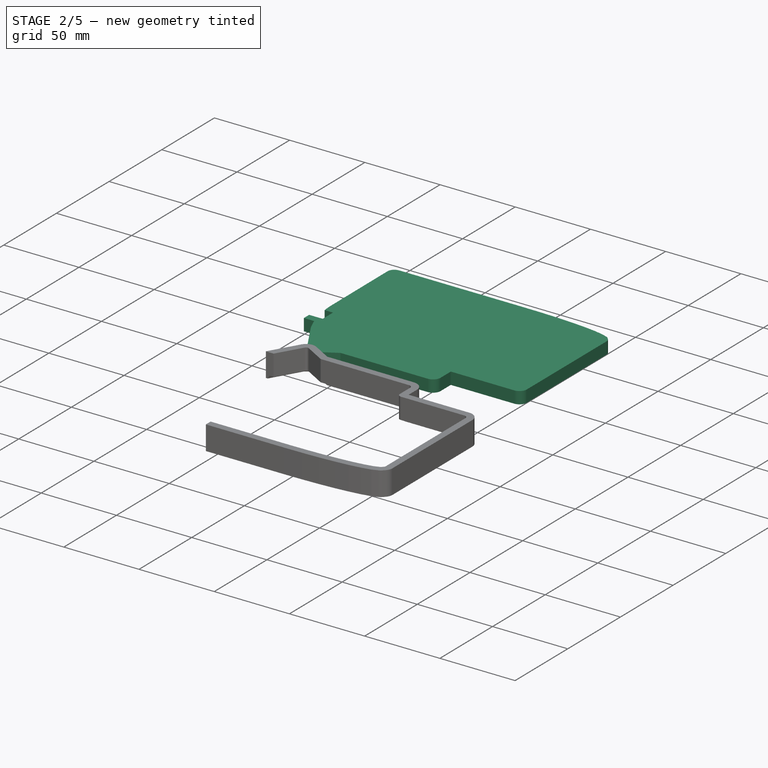
[diagram: stage 2 of 5 — iso view after this stage's code; geometry added in this stage tinted green]
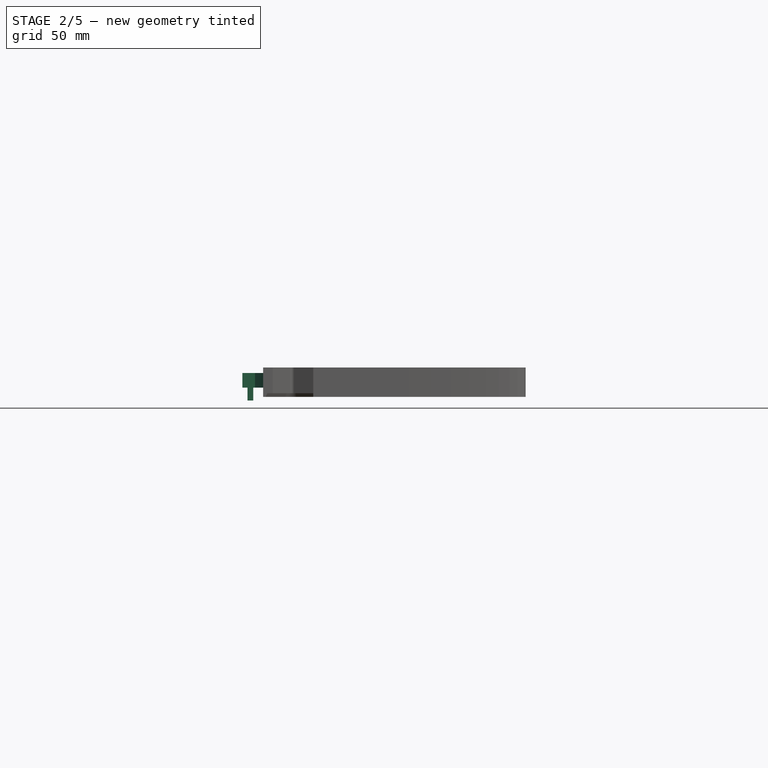
[diagram: stage 2 of 5 — front view after this stage's code; geometry added in this stage tinted green]
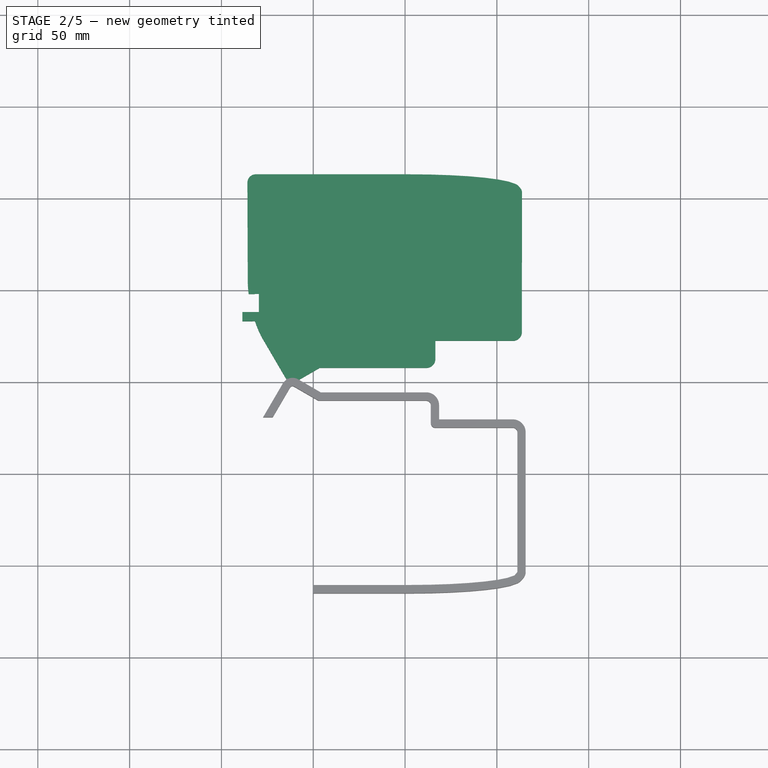
[diagram: stage 2 of 5 — top view after this stage's code; geometry added in this stage tinted green]
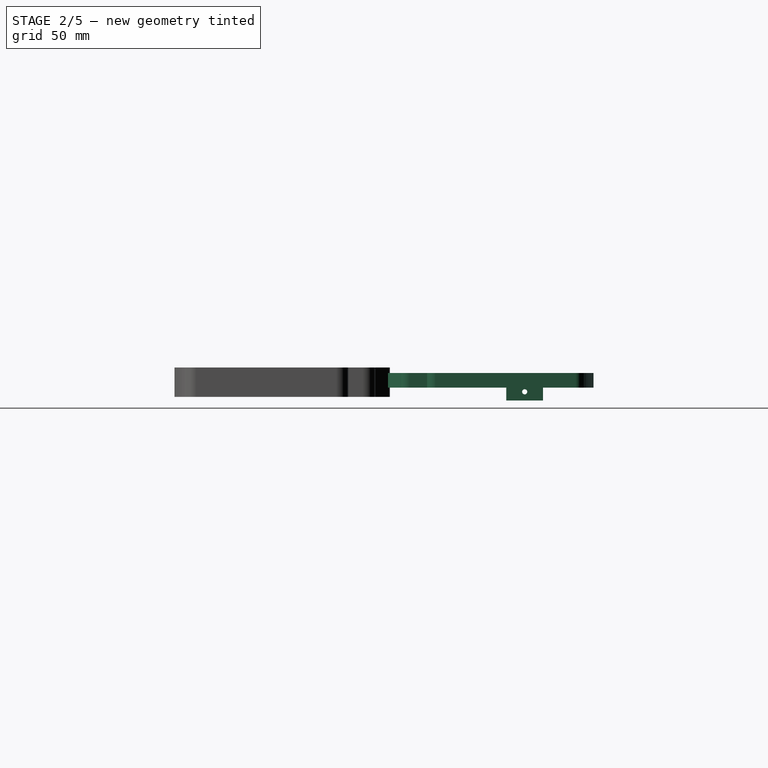
[diagram: stage 2 of 5 — right view after this stage's code; geometry added in this stage tinted green]
FEATURE [Sketcher::SketchObject] Sketch054  label="outline_initial012"
  ArcFitTolerance = 1e-06
  FullyConstrained = false
  MakeInternals = false
  sketch-geometry (54):
    g0: ArcOfCircle CenterX=17.8287 CenterY=54.0866 CenterZ=0 NormalX=0 NormalY=0 NormalZ=-1 AngleXU=-1.60752 Radius=3.5 StartAngle=1.5708 EndAngle=1.6039
    g1: LineSegment StartX=14.1312 StartY=108.555 StartZ=0 EndX=14.3287 EndY=54.0739 EndZ=0
    g2: ArcOfCircle CenterX=17.6312 CenterY=108.567 CenterZ=0 NormalX=0 NormalY=0 NormalZ=-1 AngleXU=-1.57442 Radius=3.5 StartAngle=1.5708 EndAngle=1.58105
    g3: ArcOfCircle CenterX=18.6882 CenterY=108.56 CenterZ=0 NormalX=0 NormalY=0 NormalZ=1 AngleXU=0 Radius=4.55703 StartAngle=1.57742 EndAngle=3.13497
    g4: ArcOfCircle CenterX=18.6812 CenterY=109.617 CenterZ=0 NormalX=0 NormalY=0 NormalZ=-1 AngleXU=-0.00662567 Radius=3.5 StartAngle=1.5708 EndAngle=1.57742
    g5: LineSegment StartX=101.944 StartY=113.117 StartZ=0 EndX=18.6812 EndY=113.117 EndZ=0
    g6: ArcOfCircle CenterX=101.944 CenterY=109.617 CenterZ=0 NormalX=0 NormalY=0 NormalZ=-1 AngleXU=0 Radius=3.5 StartAngle=1.5708 EndAngle=1.58178
    g7: LineSegment StartX=113.721 StartY=112.988 StartZ=0 EndX=101.982 EndY=113.117 EndZ=0
    g8: ArcOfCircle CenterX=113.683 CenterY=109.488 CenterZ=0 NormalX=0 NormalY=0 NormalZ=-1 AngleXU=0.0109795 Radius=3.5 StartAngle=1.5708 EndAngle=1.59363
    g9: LineSegment StartX=124.731 StartY=112.617 StartZ=0 EndX=113.801 EndY=112.986 EndZ=0
    g10: ArcOfCircle CenterX=124.613 CenterY=109.119 CenterZ=0 NormalX=0 NormalY=0 NormalZ=-1 AngleXU=0.0338134 Radius=3.5 StartAngle=1.5708 EndAngle=1.59609
    g11: LineSegment StartX=134.707 StartY=112.028 StartZ=0 EndX=124.819 EndY=112.613 EndZ=0
    g12: ArcOfCircle CenterX=134.501 CenterY=108.534 CenterZ=0 NormalX=0 NormalY=0 NormalZ=-1 AngleXU=0.0591041 Radius=3.5 StartAngle=1.5708 EndAngle=1.60144
    g13: LineSegment StartX=143.427 StartY=111.244 StartZ=0 EndX=134.814 EndY=112.02 EndZ=0
    g14: ArcOfCircle CenterX=143.114 CenterY=107.759 CenterZ=0 NormalX=0 NormalY=0 NormalZ=-1 AngleXU=0.0897456 Radius=3.5 StartAngle=1.5708 EndAngle=1.61253
    g15: LineSegment StartX=150.678 StartY=110.289 StartZ=0 EndX=143.573 EndY=111.228 EndZ=0
    g16: ArcOfCircle CenterX=150.219 CenterY=106.819 CenterZ=0 NormalX=0 NormalY=0 NormalZ=-1 AngleXU=0.131483 Radius=3.5 StartAngle=1.5708 EndAngle=1.63778
    g17: LineSegment StartX=156.272 StartY=109.172 StartZ=0 EndX=150.909 EndY=110.25 EndZ=0
    g18: ArcOfCircle CenterX=155.582 CenterY=105.74 CenterZ=0 NormalX=0 NormalY=0 NormalZ=-1 AngleXU=0.198464 Radius=3.5 StartAngle=1.5708 EndAngle=1.71062
    g19: LineSegment StartX=160.133 StartY=107.85 StartZ=0 EndX=156.744 EndY=109.042 EndZ=0
    g20: ArcOfCircle CenterX=158.971 CenterY=104.548 CenterZ=0 NormalX=0 NormalY=0 NormalZ=-1 AngleXU=0.338287 Radius=3.5 StartAngle=1.5708 EndAngle=2.05811
    g21: LineSegment StartX=162.725 StartY=105.641 StartZ=0 EndX=161.544 EndY=106.921 EndZ=0
    g22: ArcOfCircle CenterX=160.153 CenterY=103.267 CenterZ=0 NormalX=0 NormalY=0 NormalZ=-1 AngleXU=0.825602 Radius=3.5 StartAngle=1.5708 EndAngle=2.31639
    g23: LineSegment StartX=163.653 StartY=103.266 StartZ=0 EndX=163.623 EndY=27.1105 EndZ=0
    g24: ArcOfCircle CenterX=160.123 CenterY=27.1119 CenterZ=0 NormalX=0 NormalY=0 NormalZ=-1 AngleXU=1.5712 Radius=3.5 StartAngle=1.5708 EndAngle=1.77315
    g25: ArcOfCircle CenterX=158.654 CenterY=27.4139 CenterZ=0 NormalX=0 NormalY=0 NormalZ=1 AngleXU=0 Radius=4.99977 StartAngle=4.91513 EndAngle=6.08043
    g26: ArcOfCircle CenterX=158.955 CenterY=25.9449 CenterZ=0 NormalX=0 NormalY=0 NormalZ=-1 AngleXU=2.93885 Radius=3.5 StartAngle=1.5708 EndAngle=1.76585
    g27: LineSegment StartX=158.982 StartY=22.445 StartZ=0 EndX=158.508 EndY=22.4413 EndZ=0
    g28: ArcOfCircle CenterX=158.481 CenterY=25.9412 CenterZ=0 NormalX=0 NormalY=0 NormalZ=-1 AngleXU=3.13391 Radius=3.5 StartAngle=1.5708 EndAngle=1.57848
    g29: LineSegment StartX=116.552 StartY=22.4412 StartZ=0 EndX=158.481 EndY=22.4412 EndZ=0
    g30: ArcOfCircle CenterX=116.556 CenterY=22.3973 CenterZ=0 NormalX=0 NormalY=0 NormalZ=1 AngleXU=0 Radius=0.044167 StartAngle=1.68239 EndAngle=3.0984
    g31: LineSegment StartX=116.512 StartY=22.3992 StartZ=0 EndX=116.512 EndY=12.6932 EndZ=0
    g32: ArcOfCircle CenterX=111.513 CenterY=12.6916 CenterZ=0 NormalX=0 NormalY=0 NormalZ=1 AngleXU=0 Radius=4.99911 StartAngle=4.71207 EndAngle=6.28351
    g33: LineSegment StartX=53.4961 StartY=7.69248 StartZ=0 EndX=111.512 EndY=7.69248 EndZ=0
    g34: LineSegment StartX=40.9031 StartY=0.40324 StartZ=0 EndX=53.4961 EndY=7.69248 EndZ=0
    g35: ArcOfCircle CenterX=39.1497 CenterY=3.43238 CenterZ=0 NormalX=0 NormalY=0 NormalZ=-1 AngleXU=2.61688 Radius=3.5 StartAngle=1.5708 EndAngle=1.62438
    g36: LineSegment StartX=40.5705 StartY=0.228155 StartZ=0 EndX=40.7384 EndY=0.313675 EndZ=0
    g37: ArcOfCircle CenterX=38.9819 CenterY=3.34686 CenterZ=0 NormalX=0 NormalY=0 NormalZ=-1 AngleXU=2.67047 Radius=3.5 StartAngle=1.5708 EndAngle=1.75282
    g38: LineSegment StartX=39.821 StartY=-0.055087 StartZ=0 EndX=39.9797 EndY=-0.00789703 EndZ=0
    g39: ArcOfCircle CenterX=38.8232 CenterY=3.29967 CenterZ=0 NormalX=0 NormalY=0 NormalZ=-1 AngleXU=2.8525 Radius=3.5 StartAngle=1.5708 EndAngle=1.79613
    g40: LineSegment StartX=38.8973 StartY=-0.202728 StartZ=0 EndX=39.0462 EndY=-0.193218 EndZ=0
    g41: ArcOfCircle CenterX=38.6743 CenterY=3.29016 CenterZ=0 NormalX=0 NormalY=0 NormalZ=-1 AngleXU=3.07783 Radius=3.5 StartAngle=1.5708 EndAngle=1.83039
    g42: LineSegment StartX=37.8544 StartY=-0.115413 StartZ=0 EndX=37.9932 EndY=-0.142943 EndZ=0
    g43: ArcOfCircle CenterX=38.5355 CenterY=3.31769 CenterZ=0 NormalX=0 NormalY=0 NormalZ=-1 AngleXU=-2.94576 Radius=3.5 StartAngle=1.5708 EndAngle=1.83758
    g44: LineSegment StartX=36.8453 StartY=0.249493 StartZ=0 EndX=36.9734 EndY=0.185583 EndZ=0
    g45: ArcOfCircle CenterX=38.4073 CenterY=3.3816 CenterZ=0 NormalX=0 NormalY=0 NormalZ=-1 AngleXU=-2.67898 Radius=3.5 StartAngle=1.5708 EndAngle=1.81354
    g46: LineSegment StartX=36.0212 StartY=0.816424 StartZ=0 EndX=36.1382 EndY=0.716774 EndZ=0
    g47: ArcOfCircle CenterX=38.2903 CenterY=3.48125 CenterZ=0 NormalX=0 NormalY=0 NormalZ=-1 AngleXU=-2.43623 Radius=3.5 StartAngle=1.5708 EndAngle=1.77214
    g48: LineSegment StartX=35.4287 StartY=1.45877 StartZ=0 EndX=35.5341 EndY=1.32403 EndZ=0
    g49: ArcOfCircle CenterX=38.1848 CenterY=3.61599 CenterZ=0 NormalX=0 NormalY=0 NormalZ=-1 AngleXU=-2.23489 Radius=3.5 StartAngle=1.5708 EndAngle=1.72726
    g50: LineSegment StartX=35.0474 StartY=2.05623 StartZ=0 EndX=35.1262 EndY=1.91461 EndZ=0
    g51: LineSegment StartX=21.6648 StartY=24.9482 StartZ=0 EndX=35.0474 EndY=2.05623 EndZ=0
    g52: ArcOfCircle CenterX=24.6863 CenterY=26.7146 CenterZ=0 NormalX=0 NormalY=0 NormalZ=-1 AngleXU=-2.09982 Radius=3.5 StartAngle=1.5708 EndAngle=1.64558
    g53: ArcOfCircle CenterX=85.8629 CenterY=56.5865 CenterZ=0 NormalX=0 NormalY=0 NormalZ=1 AngleXU=0 Radius=71.5801 StartAngle=3.17832 EndAngle=3.59583
  constraints (54):
    c: Tangent(g0,g1) = -1.5708
    c: Tangent(g0,g53) = -1.5708
    c: Tangent(g1,g2) = -1.5708
    c: Tangent(g2,g3) = -1.5708
    c: Tangent(g3,g4) = -1.5708
    c: Tangent(g4,g5) = -1.5708
    c: Tangent(g5,g6) = -1.5708
    c: Tangent(g6,g7) = -1.5708
    c: Tangent(g7,g8) = -1.5708
    c: Tangent(g8,g9) = -1.5708
    c: Tangent(g9,g10) = -1.5708
    c: Tangent(g10,g11) = -1.5708
    c: Tangent(g11,g12) = -1.5708
    c: Tangent(g12,g13) = -1.5708
    c: Tangent(g13,g14) = -1.5708
    c: Tangent(g14,g15) = -1.5708
    c: Tangent(g15,g16) = -1.5708
    c: Tangent(g16,g17) = -1.5708
    c: Tangent(g17,g18) = -1.5708
    c: Tangent(g18,g19) = -1.5708
    c: Tangent(g19,g20) = -1.5708
    c: Tangent(g20,g21) = -1.5708
    c: Tangent(g21,g22) = -1.5708
    c: Tangent(g22,g23) = 1.5708
    c: Tangent(g23,g24) = 1.5708
    c: Tangent(g24,g25) = -1.5708
    c: Tangent(g25,g26) = -1.5708
    c: Tangent(g26,g27) = 1.5708
    c: Tangent(g27,g28) = 1.5708
    c: Tangent(g28,g29) = -1.5708
    c: Coincident(g29,g30)
    c: Coincident(g30,g31)
    c: Coincident(g31,g32)
    c: Coincident(g32,g33)
    c: Coincident(g33,g34)
    c: Tangent(g34,g35) = -1.5708
    c: Tangent(g35,g36) = -1.5708
    c: Tangent(g36,g37) = -1.5708
    c: Tangent(g37,g38) = -1.5708
    c: Tangent(g38,g39) = -1.5708
    c: Tangent(g39,g40) = -1.5708
    c: Tangent(g40,g41) = -1.5708
    c: Tangent(g41,g42) = -1.5708
    c: Tangent(g42,g43) = -1.5708
    c: Tangent(g43,g44) = -1.5708
    c: Tangent(g44,g45) = -1.5708
    c: Tangent(g45,g46) = -1.5708
    c: Tangent(g46,g47) = -1.5708
    c: Tangent(g47,g48) = -1.5708
    c: Tangent(g48,g49) = -1.5708
    c: Tangent(g49,g50) = -1.5708
    c: Coincident(g50,g51)
    c: Tangent(g51,g52) = -1.5708
    c: Tangent(g52,g53) = -1.5708
FEATURE [PartDesign::Pad] Pad015
  Direction = (0,0,1)
  Length = 8
  Length2 = 10
  Profile = -> Sketch054
  ReferenceAxis = -> Sketch054 [N_Axis]
  Refine = true
  Suppressed = false
  Type = 0
FEATURE [Sketcher::SketchObject] Sketch055  label="outline_initial013"
  ArcFitTolerance = 1e-06
  FullyConstrained = false
  MakeInternals = false
  sketch-geometry (54):
    g0: ArcOfCircle CenterX=85.8629 CenterY=56.5865 CenterZ=0 NormalX=0 NormalY=0 NormalZ=1 AngleXU=0 Radius=68.5801 StartAngle=3.17832 EndAngle=3.59583
    g1: ArcOfCircle CenterX=24.6863 CenterY=26.7146 CenterZ=0 NormalX=0 NormalY=0 NormalZ=-1 AngleXU=-2.09982 Radius=0.5 StartAngle=1.5708 EndAngle=1.64558
    g2: LineSegment StartX=24.2547 StartY=26.4623 StartZ=0 EndX=37.6535 EndY=3.5426 EndZ=0
    g3: LineSegment StartX=37.6535 StartY=3.5426 StartZ=0 EndX=37.7479 EndY=3.37294 EndZ=0
    g4: ArcOfCircle CenterX=38.1848 CenterY=3.61599 CenterZ=0 NormalX=0 NormalY=0 NormalZ=-1 AngleXU=-2.23489 Radius=0.5 StartAngle=1.5708 EndAngle=1.72726
    g5: LineSegment StartX=37.7911 StartY=3.30782 StartZ=0 EndX=37.8966 EndY=3.17308 EndZ=0
    g6: ArcOfCircle CenterX=38.2903 CenterY=3.48125 CenterZ=0 NormalX=0 NormalY=0 NormalZ=-1 AngleXU=-2.43623 Radius=0.5 StartAngle=1.5708 EndAngle=1.77214
    g7: LineSegment StartX=37.9661 StartY=3.10056 StartZ=0 EndX=38.0832 EndY=3.00091 EndZ=0
    g8: ArcOfCircle CenterX=38.4073 CenterY=3.3816 CenterZ=0 NormalX=0 NormalY=0 NormalZ=-1 AngleXU=-2.67898 Radius=0.5 StartAngle=1.5708 EndAngle=1.81354
    g9: LineSegment StartX=38.1842 StartY=2.93416 StartZ=0 EndX=38.3123 EndY=2.87025 EndZ=0
    g10: ArcOfCircle CenterX=38.5355 CenterY=3.31769 CenterZ=0 NormalX=0 NormalY=0 NormalZ=-1 AngleXU=-2.94576 Radius=0.5 StartAngle=1.5708 EndAngle=1.83758
    g11: LineSegment StartX=38.4382 StartY=2.82725 StartZ=0 EndX=38.577 EndY=2.79972 EndZ=0
    g12: ArcOfCircle CenterX=38.6743 CenterY=3.29016 CenterZ=0 NormalX=0 NormalY=0 NormalZ=-1 AngleXU=3.07783 Radius=0.5 StartAngle=1.5708 EndAngle=1.83039
    g13: LineSegment StartX=38.7061 StartY=2.79118 StartZ=0 EndX=38.8551 EndY=2.80069 EndZ=0
    g14: ArcOfCircle CenterX=38.8232 CenterY=3.29967 CenterZ=0 NormalX=0 NormalY=0 NormalZ=-1 AngleXU=2.8525 Radius=0.5 StartAngle=1.5708 EndAngle=1.79613
    g15: LineSegment StartX=38.9657 StartY=2.82042 StartZ=0 EndX=39.1244 EndY=2.86761 EndZ=0
    g16: ArcOfCircle CenterX=38.9819 CenterY=3.34686 CenterZ=0 NormalX=0 NormalY=0 NormalZ=-1 AngleXU=2.67047 Radius=0.5 StartAngle=1.5708 EndAngle=1.75282
    g17: LineSegment StartX=39.2088 StartY=2.90133 StartZ=0 EndX=39.3767 EndY=2.98685 EndZ=0
    g18: ArcOfCircle CenterX=39.1497 CenterY=3.43238 CenterZ=0 NormalX=0 NormalY=0 NormalZ=-1 AngleXU=2.61688 Radius=0.5 StartAngle=1.5708 EndAngle=1.62438
    g19: LineSegment StartX=39.4002 StartY=2.99965 StartZ=0 EndX=52.6904 EndY=10.6925 EndZ=0
    g20: LineSegment StartX=52.6904 StartY=10.6925 StartZ=0 EndX=111.512 EndY=10.6925 EndZ=0
    g21: ArcOfCircle CenterX=111.513 CenterY=12.6916 CenterZ=0 NormalX=0 NormalY=0 NormalZ=1 AngleXU=0 Radius=1.99911 StartAngle=4.71188 EndAngle=6.2837
    g22: LineSegment StartX=113.512 StartY=22.4131 StartZ=0 EndX=113.512 EndY=12.6926 EndZ=0
    g23: ArcOfCircle CenterX=116.556 CenterY=22.3973 CenterZ=0 NormalX=0 NormalY=0 NormalZ=1 AngleXU=0 Radius=3.04417 StartAngle=1.58423 EndAngle=3.13639
    g24: LineSegment StartX=116.516 StartY=25.4412 StartZ=0 EndX=158.481 EndY=25.4412 EndZ=0
    g25: ArcOfCircle CenterX=158.481 CenterY=25.9412 CenterZ=0 NormalX=0 NormalY=0 NormalZ=-1 AngleXU=3.13391 Radius=0.5 StartAngle=1.5708 EndAngle=1.57848
    g26: LineSegment StartX=158.959 StartY=25.4449 StartZ=0 EndX=158.485 EndY=25.4412 EndZ=0
    g27: ArcOfCircle CenterX=158.955 CenterY=25.9449 CenterZ=0 NormalX=0 NormalY=0 NormalZ=-1 AngleXU=2.93885 Radius=0.5 StartAngle=1.5708 EndAngle=1.76585
    g28: ArcOfCircle CenterX=158.654 CenterY=27.4139 CenterZ=0 NormalX=0 NormalY=0 NormalZ=1 AngleXU=0 Radius=1.99977 StartAngle=4.91513 EndAngle=6.08043
    g29: ArcOfCircle CenterX=160.123 CenterY=27.1119 CenterZ=0 NormalX=0 NormalY=0 NormalZ=-1 AngleXU=1.5712 Radius=0.5 StartAngle=1.5708 EndAngle=1.77315
    g30: LineSegment StartX=160.653 StartY=103.267 StartZ=0 EndX=160.623 EndY=27.1117 EndZ=0
    g31: ArcOfCircle CenterX=160.153 CenterY=103.267 CenterZ=0 NormalX=0 NormalY=0 NormalZ=-1 AngleXU=0.825602 Radius=0.5 StartAngle=1.5708 EndAngle=2.31639
    g32: LineSegment StartX=160.52 StartY=103.606 StartZ=0 EndX=159.339 EndY=104.887 EndZ=0
    g33: ArcOfCircle CenterX=158.971 CenterY=104.548 CenterZ=0 NormalX=0 NormalY=0 NormalZ=-1 AngleXU=0.338287 Radius=0.5 StartAngle=1.5708 EndAngle=2.05811
    g34: LineSegment StartX=159.137 StartY=105.02 StartZ=0 EndX=155.748 EndY=106.212 EndZ=0
    g35: ArcOfCircle CenterX=155.582 CenterY=105.74 CenterZ=0 NormalX=0 NormalY=0 NormalZ=-1 AngleXU=0.198464 Radius=0.5 StartAngle=1.5708 EndAngle=1.71062
    g36: LineSegment StartX=155.681 StartY=106.23 StartZ=0 EndX=150.317 EndY=107.309 EndZ=0
    g37: ArcOfCircle CenterX=150.219 CenterY=106.819 CenterZ=0 NormalX=0 NormalY=0 NormalZ=-1 AngleXU=0.131483 Radius=0.5 StartAngle=1.5708 EndAngle=1.63778
    g38: LineSegment StartX=150.284 StartY=107.315 StartZ=0 EndX=143.179 EndY=108.254 EndZ=0
    g39: ArcOfCircle CenterX=143.114 CenterY=107.759 CenterZ=0 NormalX=0 NormalY=0 NormalZ=-1 AngleXU=0.0897456 Radius=0.5 StartAngle=1.5708 EndAngle=1.61253
    g40: LineSegment StartX=143.159 StartY=108.257 StartZ=0 EndX=134.545 EndY=109.032 EndZ=0
    g41: ArcOfCircle CenterX=134.501 CenterY=108.534 CenterZ=0 NormalX=0 NormalY=0 NormalZ=-1 AngleXU=0.0591041 Radius=0.5 StartAngle=1.5708 EndAngle=1.60144
    g42: LineSegment StartX=134.53 StartY=109.033 StartZ=0 EndX=124.642 EndY=109.618 EndZ=0
    g43: ArcOfCircle CenterX=124.613 CenterY=109.119 CenterZ=0 NormalX=0 NormalY=0 NormalZ=-1 AngleXU=0.0338134 Radius=0.5 StartAngle=1.5708 EndAngle=1.59609
    g44: LineSegment StartX=124.629 StartY=109.618 StartZ=0 EndX=113.699 EndY=109.988 EndZ=0
    g45: ArcOfCircle CenterX=113.683 CenterY=109.488 CenterZ=0 NormalX=0 NormalY=0 NormalZ=-1 AngleXU=0.0109795 Radius=0.5 StartAngle=1.5708 EndAngle=1.59363
    g46: LineSegment StartX=113.688 StartY=109.988 StartZ=0 EndX=101.949 EndY=110.117 EndZ=0
    g47: ArcOfCircle CenterX=101.944 CenterY=109.617 CenterZ=0 NormalX=0 NormalY=0 NormalZ=-1 AngleXU=0 Radius=0.5 StartAngle=1.5708 EndAngle=1.58178
    g48: LineSegment StartX=101.944 StartY=110.117 StartZ=0 EndX=18.6812 EndY=110.117 EndZ=0
    g49: ArcOfCircle CenterX=18.6812 CenterY=109.617 CenterZ=0 NormalX=0 NormalY=0 NormalZ=-1 AngleXU=-0.00662567 Radius=0.5 StartAngle=1.5708 EndAngle=1.57742
    g50: ArcOfCircle CenterX=18.6882 CenterY=108.56 CenterZ=0 NormalX=0 NormalY=0 NormalZ=1 AngleXU=0 Radius=1.55703 StartAngle=1.57742 EndAngle=3.13497
    g51: ArcOfCircle CenterX=17.6312 CenterY=108.567 CenterZ=0 NormalX=0 NormalY=0 NormalZ=-1 AngleXU=-1.57442 Radius=0.5 StartAngle=1.5708 EndAngle=1.58105
    g52: LineSegment StartX=17.1312 StartY=108.566 StartZ=0 EndX=17.3287 EndY=54.0848 EndZ=0
    g53: ArcOfCircle CenterX=17.8287 CenterY=54.0866 CenterZ=0 NormalX=0 NormalY=0 NormalZ=-1 AngleXU=-1.60752 Radius=0.5 StartAngle=1.5708 EndAngle=1.6039
  constraints (54):
    c: Tangent(g0,g1) = -1.5708
    c: Tangent(g0,g53) = -1.5708
    c: Tangent(g1,g2) = -1.5708
    c: Coincident(g2,g3)
    c: Tangent(g3,g4) = -1.5708
    c: Tangent(g4,g5) = -1.5708
    c: Tangent(g5,g6) = -1.5708
    c: Tangent(g6,g7) = -1.5708
    c: Tangent(g7,g8) = -1.5708
    c: Tangent(g8,g9) = -1.5708
    c: Tangent(g9,g10) = -1.5708
    c: Tangent(g10,g11) = -1.5708
    c: Tangent(g11,g12) = -1.5708
    c: Tangent(g12,g13) = -1.5708
    c: Tangent(g13,g14) = -1.5708
    c: Tangent(g14,g15) = -1.5708
    c: Tangent(g15,g16) = -1.5708
    c: Tangent(g16,g17) = -1.5708
    c: Tangent(g17,g18) = -1.5708
    c: Tangent(g18,g19) = -1.5708
    c: Coincident(g19,g20)
    c: Coincident(g20,g21)
    c: Coincident(g21,g22)
    c: Coincident(g22,g23)
    c: Coincident(g23,g24)
    c: Tangent(g24,g25) = -1.5708
    c: Tangent(g25,g26) = 1.5708
    c: Tangent(g26,g27) = 1.5708
    c: Tangent(g27,g28) = -1.5708
    c: Tangent(g28,g29) = -1.5708
    c: Tangent(g29,g30) = 1.5708
    c: Tangent(g30,g31) = 1.5708
    c: Tangent(g31,g32) = -1.5708
    c: Tangent(g32,g33) = -1.5708
    c: Tangent(g33,g34) = -1.5708
    c: Tangent(g34,g35) = -1.5708
    c: Tangent(g35,g36) = -1.5708
    c: Tangent(g36,g37) = -1.5708
    c: Tangent(g37,g38) = -1.5708
    c: Tangent(g38,g39) = -1.5708
    c: Tangent(g39,g40) = -1.5708
    c: Tangent(g40,g41) = -1.5708
    c: Tangent(g41,g42) = -1.5708
    c: Tangent(g42,g43) = -1.5708
    c: Tangent(g43,g44) = -1.5708
    c: Tangent(g44,g45) = -1.5708
    c: Tangent(g45,g46) = -1.5708
    c: Tangent(g46,g47) = -1.5708
    c: Tangent(g47,g48) = -1.5708
    c: Tangent(g48,g49) = -1.5708
    c: Tangent(g49,g50) = -1.5708
    c: Tangent(g50,g51) = -1.5708
    c: Tangent(g51,g52) = -1.5708
    c: Tangent(g52,g53) = -1.5708
FEATURE [PartDesign::Pocket] Pocket011
  BaseFeature = -> Pad015
  Direction = (0,0,-1)
  Length = 6
  Length2 = 5
  Profile = -> Sketch055
  ReferenceAxis = -> Sketch055 [N_Axis]
  Refine = true
  Reversed = true
  Suppressed = false
  Type = 0
FEATURE [Sketcher::SketchObject] Sketch056
  ArcFitTolerance = 1e-06
  AttachmentSupport = -> [YZ_Plane016]
  FullyConstrained = true
  MakeInternals = false
  MapMode = 5
  Placement = pos=(0,0,0) rot=(0.57735,0.57735,0.57735;2.0944rad)
  expr: Constraints[10] = 75 / 2 - 10
  sketch-geometry (4):
    g0: LineSegment StartX=65.6173 StartY=-12 StartZ=0 EndX=85.6173 EndY=-12 EndZ=0
    g1: LineSegment StartX=85.6173 StartY=-12 StartZ=0 EndX=85.6173 EndY=8 EndZ=0
    g2: LineSegment StartX=85.6173 StartY=8 StartZ=0 EndX=65.6173 EndY=8 EndZ=0
    g3: LineSegment StartX=65.6173 StartY=8 StartZ=0 EndX=65.6173 EndY=-12 EndZ=0
  constraints (12):
    c: Coincident(g0,g1)
    c: Coincident(g1,g2)
    c: Coincident(g2,g3)
    c: Coincident(g3,g0)
    c: Horizontal(g0)
    c: Horizontal(g2)
    c: Vertical(g1)
    c: Vertical(g3)
    c: DistanceX(g0,g0) = 20
    c: Distance(g1) = 20
    c: DistanceX(g1,g-3) = 27.5
    c: PointOnObject(g1,g-4)
FEATURE [Sketcher::SketchObject] Sketch057  label="hole014"
  ArcFitTolerance = 1e-06
  AttachmentSupport = -> [XY_Plane016]
  FullyConstrained = false
  MakeInternals = false
  MapMode = 5
  sketch-geometry (1):
    g0: Circle CenterX=140.473 CenterY=46.6664 CenterZ=0 NormalX=0 NormalY=0 NormalZ=1 AngleXU=0 Radius=2.5
  constraints (1):
    c: Diameter(g0) = 5
FEATURE [Sketcher::SketchObject] Sketch058  label="hole015"
  ArcFitTolerance = 1e-06
  AttachmentSupport = -> [XY_Plane016]
  FullyConstrained = false
  MakeInternals = false
  MapMode = 5
  sketch-geometry (1):
    g0: Circle CenterX=64.2653 CenterY=49.0972 CenterZ=0 NormalX=0 NormalY=0 NormalZ=1 AngleXU=0 Radius=2.5
  constraints (1):
    c: Diameter(g0) = 5
FEATURE [Sketcher::SketchObject] Sketch059  label="hole016"
  ArcFitTolerance = 1e-06
  AttachmentSupport = -> [XY_Plane016]
  FullyConstrained = false
  MakeInternals = false
  MapMode = 5
  sketch-geometry (1):
    g0: Circle CenterX=140.498 CenterY=84.9103 CenterZ=0 NormalX=0 NormalY=0 NormalZ=1 AngleXU=0 Radius=2.5
  constraints (1):
    c: Diameter(g0) = 5
FEATURE [Sketcher::SketchObject] Sketch060  label="hole017"
  ArcFitTolerance = 1e-06
  AttachmentSupport = -> [XY_Plane016]
  FullyConstrained = false
  MakeInternals = false
  MapMode = 5
  sketch-geometry (1):
    g0: Circle CenterX=64.2826 CenterY=87.1106 CenterZ=0 NormalX=0 NormalY=0 NormalZ=1 AngleXU=0 Radius=2.5
  constraints (1):
    c: Diameter(g0) = 5
FEATURE [Sketcher::SketchObject] Sketch061
  ArcFitTolerance = 1e-06
  FullyConstrained = true
  MakeInternals = false
  MapMode = 5
  Placement = pos=(14.5245,0.0526477,0) rot=(0.578745,-0.576651,-0.576651;2.0923rad)
  expr: Constraints[10] = 75 / 2 - 10
  expr: Constraints[9] = 15
  sketch-geometry (4):
    g0: LineSegment StartX=-85.5489 StartY=8 StartZ=0 EndX=-85.5489 EndY=-7 EndZ=0
    g1: LineSegment StartX=-85.5489 StartY=-7 StartZ=0 EndX=-65.5489 EndY=-7 EndZ=0
    g2: LineSegment StartX=-65.5489 StartY=-7 StartZ=0 EndX=-65.5489 EndY=8 EndZ=0
    g3: LineSegment StartX=-65.5489 StartY=8 StartZ=0 EndX=-85.5489 EndY=8 EndZ=0
  constraints (12):
    c: Coincident(g0,g1)
    c: Coincident(g1,g2)
    c: Coincident(g2,g3)
    c: Coincident(g3,g0)
    c: Vertical(g0)
    c: Vertical(g2)
    c: Horizontal(g1)
    c: Horizontal(g3)
    c: Distance(g0,g2) = 20
    c: Distance(g1,g3) = 15
    c: DistanceX(g-3,g0) = 27.5
    c: DistanceY(g-4,g0) = 0
FEATURE [PartDesign::Pad] Pad016
  BaseFeature = -> Pocket011
  Direction = (-0.999993,-0.00362472,-4e-16)
  Length = 3
  Length2 = 10
  Profile = -> Sketch061
  ReferenceAxis = -> Sketch061 [N_Axis]
  Refine = true
  Reversed = true
  Suppressed = false
  Type = 0
FEATURE [Sketcher::SketchObject] Sketch062
  ArcFitTolerance = 1e-06
  AttachmentSupport = -> [Pad016]
  ExternalGeometry = -> [Pad016]
  FullyConstrained = true
  MakeInternals = false
  MapMode = 5
  Placement = pos=(14.5245,0.0526477,2.77e-14) rot=(0.578745,-0.576651,-0.576651;2.0923rad)
  expr: Constraints[1] = 20.5 / 2
  sketch-geometry (1):
    g0: Circle CenterX=-75.5489 CenterY=-2.25 CenterZ=0 NormalX=0 NormalY=0 NormalZ=1 AngleXU=0 Radius=1.4
  constraints (3):
    c: Diameter(g0) = 2.8
    c: DistanceY(g0,g-3) = 10.25
    c: DistanceX(g-4,g0) = 37.5
FEATURE [PartDesign::Pocket] Pocket012
  BaseFeature = -> Pad016
  Direction = (0.999993,0.00362472,2e-15)
  Length = 5
  Length2 = 5
  Profile = -> Sketch062
  ReferenceAxis = -> Sketch062 [N_Axis]
  Refine = true
  Suppressed = false
  Type = 1
FEATURE [Sketcher::SketchObject] Sketch063
  ArcFitTolerance = 1e-06
  AttachmentSupport = -> [Pocket012]
  ExternalGeometry = -> [Pocket012]
  FullyConstrained = true
  MakeInternals = false
  MapMode = 5
  Placement = pos=(14.5245,0.0526477,2.77e-14) rot=(0.578745,-0.576651,-0.576651;2.0923rad)
  sketch-geometry (4):
    g0: LineSegment StartX=-38.0489 StartY=8 StartZ=0 EndX=-38.0489 EndY=-12 EndZ=0
    g1: LineSegment StartX=-38.0489 StartY=-12 StartZ=0 EndX=-47.8489 EndY=-12 EndZ=0
    g2: LineSegment StartX=-47.8489 StartY=-12 StartZ=0 EndX=-47.8489 EndY=8 EndZ=0
    g3: LineSegment StartX=-47.8489 StartY=8 StartZ=0 EndX=-38.0489 EndY=8 EndZ=0
  constraints (12):
    c: Coincident(g0,g1)
    c: Coincident(g1,g2)
    c: Coincident(g2,g3)
    c: Coincident(g3,g0)
    c: Vertical(g0)
    c: Vertical(g2)
    c: Horizontal(g1)
    c: Horizontal(g3)
    c: Distance(g0,g2) = 9.8
    c: Distance(g1,g3) = 20
    c: DistanceY(g-4,g0) = 0
    c: DistanceX(g-3,g0) = 75
FEATURE [PartDesign::Pocket] Pocket013
  BaseFeature = -> Pocket012
  Direction = (0.999993,0.00362472,2e-15)
  Length = 6
  Length2 = 5
  Profile = -> Sketch063
  ReferenceAxis = -> Sketch063 [N_Axis]
  Refine = true
  Suppressed = false
  Type = 0
FEATURE [Sketcher::SketchObject] Sketch064
  ArcFitTolerance = 1e-06
  AttachmentSupport = -> [Pocket013]
  ExternalGeometry = -> [Pocket013]
  FullyConstrained = true
  MakeInternals = false
  MapMode = 5
  Placement = pos=(14.5245,0.0526477,2.77e-14) rot=(0.578745,-0.576651,-0.576651;2.0923rad)
  sketch-geometry (4):
    g0: LineSegment StartX=-33.0489 StartY=8 StartZ=0 EndX=-33.0489 EndY=-2.04e-14 EndZ=0
    g1: LineSegment StartX=-33.0489 StartY=-2.04e-14 StartZ=0 EndX=-38.0489 EndY=-2.04e-14 EndZ=0
    g2: LineSegment StartX=-38.0489 StartY=-2.04e-14 StartZ=0 EndX=-38.0489 EndY=8 EndZ=0
    g3: LineSegment StartX=-38.0489 StartY=8 StartZ=0 EndX=-33.0489 EndY=8 EndZ=0
  constraints (12):
    c: Coincident(g0,g1)
    c: Coincident(g1,g2)
    c: Coincident(g2,g3)
    c: Coincident(g3,g0)
    c: Vertical(g0)
    c: Vertical(g2)
    c: Horizontal(g1)
    c: Horizontal(g3)
    c: Distance(g0,g2) = 5
    c: Distance(g1,g3) = 8
    c: DistanceX(g-3,g0) = 80
    c: DistanceY(g0,g-3) = 0
FEATURE [PartDesign::Pad] Pad017
  BaseFeature = -> Pocket013
  Direction = (-0.999993,-0.00362472,-2e-15)
  Length = 4
  Length2 = 10
  Profile = -> Sketch064
  ReferenceAxis = -> Sketch064 [N_Axis]
  Refine = true
  Reversed = true
  Suppressed = false
  Type = 0
FEATURE [PartDesign::Pad] Pad018
  BaseFeature = -> Pad017
  Direction = (-0.999993,-0.00362472,-2e-15)
  Length = 3
  Length2 = 10
  Profile = -> Sketch064
  ReferenceAxis = -> Sketch064 [N_Axis]
  Refine = true
  Suppressed = false
  Type = 0
FEATURE [Sketcher::SketchObject] Sketch065
  ArcFitTolerance = 1e-06
  AttachmentSupport = -> [Pad018]
  FullyConstrained = false
  MakeInternals = false
  MapMode = 5
  Placement = pos=(0,0,6) rot=(1,0,0;3.14159rad)
  sketch-geometry (5):
    g0: Circle CenterX=64.2645 CenterY=-49.0963 CenterZ=0 NormalX=0 NormalY=0 NormalZ=1 AngleXU=0 Radius=1.3
    g1: Circle CenterX=140.474 CenterY=-46.6692 CenterZ=0 NormalX=0 NormalY=0 NormalZ=1 AngleXU=0 Radius=1.3
    g2: Circle CenterX=64.2979 CenterY=-87.1003 CenterZ=0 NormalX=0 NormalY=0 NormalZ=1 AngleXU=0 Radius=1.3
    g3: Circle CenterX=140.499 CenterY=-84.9329 CenterZ=0 NormalX=0 NormalY=0 NormalZ=1 AngleXU=0 Radius=1.3
    g4: Circle CenterX=39.6975 CenterY=-31.8913 CenterZ=0 NormalX=0 NormalY=0 NormalZ=1 AngleXU=0 Radius=1.3
  constraints (5):
    c: Diameter(g0) = 2.6
    c: Diameter(g1) = 2.6
    c: Diameter(g2) = 2.6
    c: Diameter(g3) = 2.6
    c: Diameter(g4) = 2.6
FEATURE [Sketcher::SketchObject] Sketch066
  ArcFitTolerance = 1e-06
  AttachmentSupport = -> [Pad018]
  ExternalGeometry = -> [Pad018]
  FullyConstrained = true
  MakeInternals = false
  MapMode = 5
  Placement = pos=(14.5245,0.0526477,2.77e-14) rot=(0.578745,-0.576651,-0.576651;2.0923rad)
  sketch-geometry (4):
    g0: LineSegment StartX=-113.049 StartY=-6 StartZ=0 EndX=-93.0489 EndY=-6 EndZ=0
    g1: LineSegment StartX=-93.0489 StartY=-6 StartZ=0 EndX=-93.0489 EndY=4 EndZ=0
    g2: LineSegment StartX=-93.0489 StartY=4 StartZ=0 EndX=-113.049 EndY=4 EndZ=0
    g3: LineSegment StartX=-113.049 StartY=4 StartZ=0 EndX=-113.049 EndY=-6 EndZ=0
  constraints (12):
    c: Coincident(g0,g1)
    c: Coincident(g1,g2)
    c: Coincident(g2,g3)
    c: Coincident(g3,g0)
    c: Horizontal(g0)
    c: Horizontal(g2)
    c: Vertical(g1)
    c: Vertical(g3)
    c: Distance(g1,g3) = 20
    c: Distance(g0,g2) = 10
    c: DistanceY(g2,g-3) = 4
    c: DistanceX(g2,g-3) = 0
FEATURE [PartDesign::Pocket] Pocket014
  BaseFeature = -> Pad018
  Direction = (0.999993,0.00362472,2e-15)
  Length = 20
  Length2 = 5
  Profile = -> Sketch066
  ReferenceAxis = -> Sketch066 [N_Axis]
  Refine = true
  Suppressed = false
  Type = 0
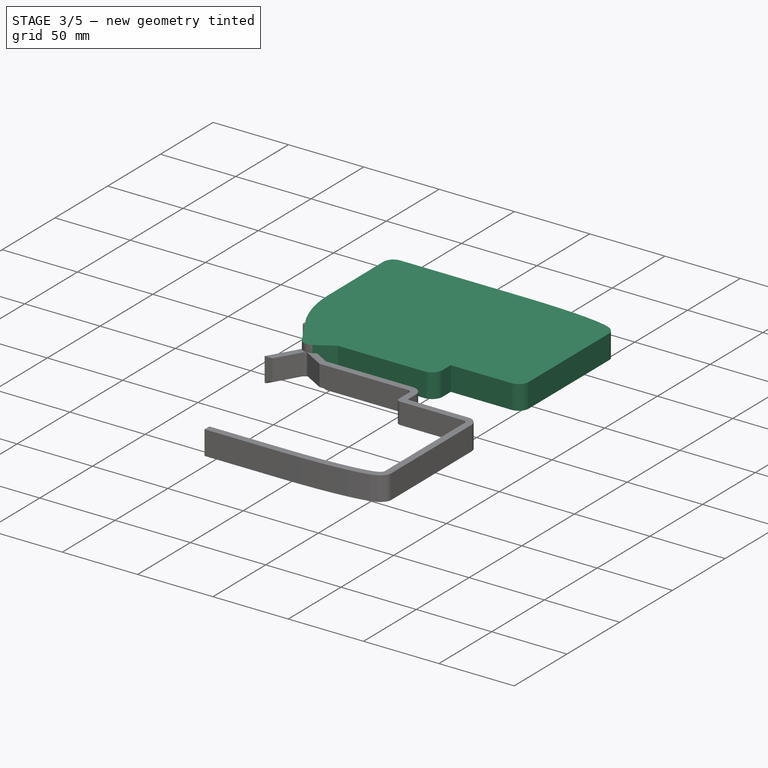
[diagram: stage 3 of 5 — iso view after this stage's code; geometry added in this stage tinted green]
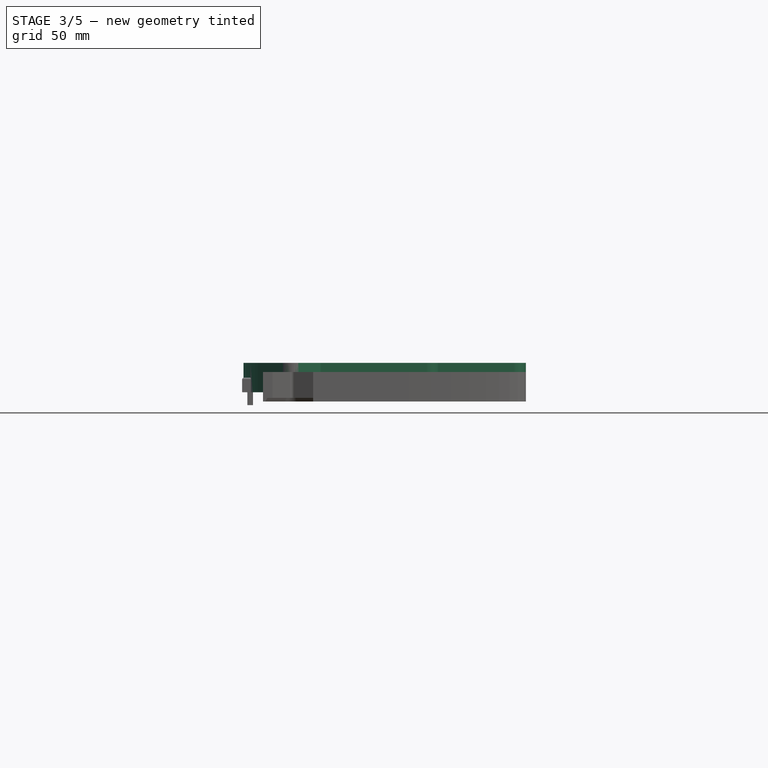
[diagram: stage 3 of 5 — front view after this stage's code; geometry added in this stage tinted green]
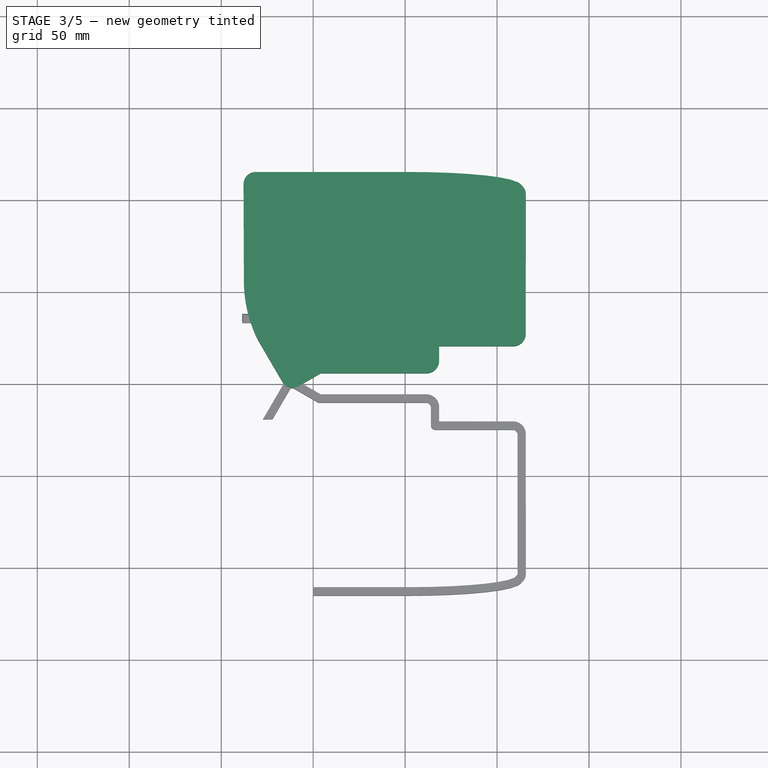
[diagram: stage 3 of 5 — top view after this stage's code; geometry added in this stage tinted green]
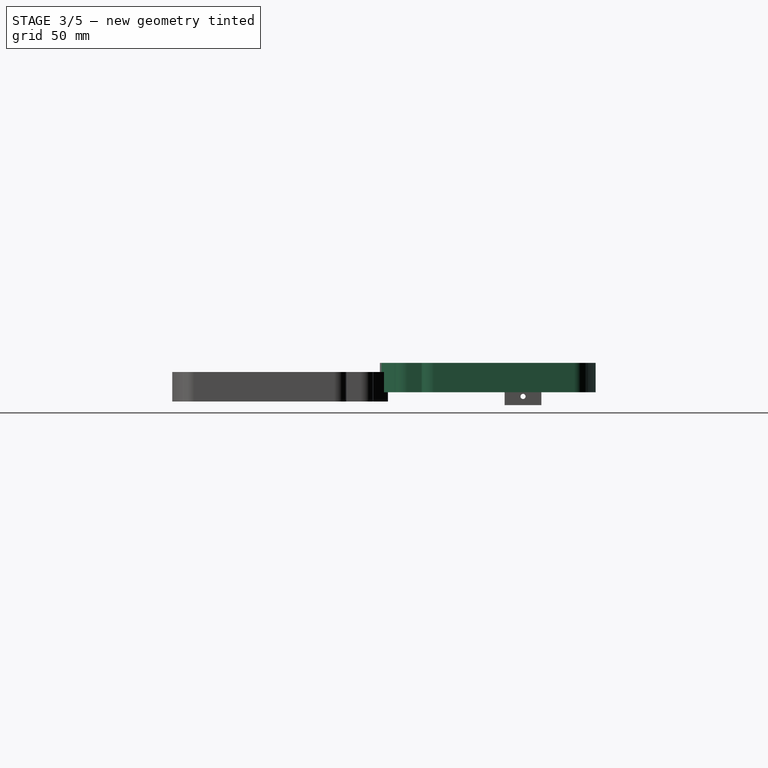
[diagram: stage 3 of 5 — right view after this stage's code; geometry added in this stage tinted green]
FEATURE [Sketcher::SketchObject] Sketch051  label="outline_initial009"
  ArcFitTolerance = 1e-06
  FullyConstrained = false
  MakeInternals = false
  sketch-geometry (54):
    g0: ArcOfCircle CenterX=17.8287 CenterY=54.0866 CenterZ=0 NormalX=0 NormalY=0 NormalZ=-1 AngleXU=-1.60752 Radius=3.5 StartAngle=1.5708 EndAngle=1.6039
    g1: LineSegment StartX=14.1312 StartY=108.555 StartZ=0 EndX=14.3287 EndY=54.0739 EndZ=0
    g2: ArcOfCircle CenterX=17.6312 CenterY=108.567 CenterZ=0 NormalX=0 NormalY=0 NormalZ=-1 AngleXU=-1.57442 Radius=3.5 StartAngle=1.5708 EndAngle=1.58105
    g3: ArcOfCircle CenterX=18.6882 CenterY=108.56 CenterZ=0 NormalX=0 NormalY=0 NormalZ=1 AngleXU=0 Radius=4.55703 StartAngle=1.57742 EndAngle=3.13497
    g4: ArcOfCircle CenterX=18.6812 CenterY=109.617 CenterZ=0 NormalX=0 NormalY=0 NormalZ=-1 AngleXU=-0.00662567 Radius=3.5 StartAngle=1.5708 EndAngle=1.57742
    g5: LineSegment StartX=101.944 StartY=113.117 StartZ=0 EndX=18.6812 EndY=113.117 EndZ=0
    g6: ArcOfCircle CenterX=101.944 CenterY=109.617 CenterZ=0 NormalX=0 NormalY=0 NormalZ=-1 AngleXU=0 Radius=3.5 StartAngle=1.5708 EndAngle=1.58178
    g7: LineSegment StartX=113.721 StartY=112.988 StartZ=0 EndX=101.982 EndY=113.117 EndZ=0
    g8: ArcOfCircle CenterX=113.683 CenterY=109.488 CenterZ=0 NormalX=0 NormalY=0 NormalZ=-1 AngleXU=0.0109795 Radius=3.5 StartAngle=1.5708 EndAngle=1.59363
    g9: LineSegment StartX=124.731 StartY=112.617 StartZ=0 EndX=113.801 EndY=112.986 EndZ=0
    g10: ArcOfCircle CenterX=124.613 CenterY=109.119 CenterZ=0 NormalX=0 NormalY=0 NormalZ=-1 AngleXU=0.0338134 Radius=3.5 StartAngle=1.5708 EndAngle=1.59609
    g11: LineSegment StartX=134.707 StartY=112.028 StartZ=0 EndX=124.819 EndY=112.613 EndZ=0
    g12: ArcOfCircle CenterX=134.501 CenterY=108.534 CenterZ=0 NormalX=0 NormalY=0 NormalZ=-1 AngleXU=0.0591041 Radius=3.5 StartAngle=1.5708 EndAngle=1.60144
    g13: LineSegment StartX=143.427 StartY=111.244 StartZ=0 EndX=134.814 EndY=112.02 EndZ=0
    g14: ArcOfCircle CenterX=143.114 CenterY=107.759 CenterZ=0 NormalX=0 NormalY=0 NormalZ=-1 AngleXU=0.0897456 Radius=3.5 StartAngle=1.5708 EndAngle=1.61253
    g15: LineSegment StartX=150.678 StartY=110.289 StartZ=0 EndX=143.573 EndY=111.228 EndZ=0
    g16: ArcOfCircle CenterX=150.219 CenterY=106.819 CenterZ=0 NormalX=0 NormalY=0 NormalZ=-1 AngleXU=0.131483 Radius=3.5 StartAngle=1.5708 EndAngle=1.63778
    g17: LineSegment StartX=156.272 StartY=109.172 StartZ=0 EndX=150.909 EndY=110.25 EndZ=0
    g18: ArcOfCircle CenterX=155.582 CenterY=105.74 CenterZ=0 NormalX=0 NormalY=0 NormalZ=-1 AngleXU=0.198464 Radius=3.5 StartAngle=1.5708 EndAngle=1.71062
    g19: LineSegment StartX=160.133 StartY=107.85 StartZ=0 EndX=156.744 EndY=109.042 EndZ=0
    g20: ArcOfCircle CenterX=158.971 CenterY=104.548 CenterZ=0 NormalX=0 NormalY=0 NormalZ=-1 AngleXU=0.338287 Radius=3.5 StartAngle=1.5708 EndAngle=2.05811
    g21: LineSegment StartX=162.725 StartY=105.641 StartZ=0 EndX=161.544 EndY=106.921 EndZ=0
    g22: ArcOfCircle CenterX=160.153 CenterY=103.267 CenterZ=0 NormalX=0 NormalY=0 NormalZ=-1 AngleXU=0.825602 Radius=3.5 StartAngle=1.5708 EndAngle=2.31639
    g23: LineSegment StartX=163.653 StartY=103.266 StartZ=0 EndX=163.623 EndY=27.1105 EndZ=0
    g24: ArcOfCircle CenterX=160.123 CenterY=27.1119 CenterZ=0 NormalX=0 NormalY=0 NormalZ=-1 AngleXU=1.5712 Radius=3.5 StartAngle=1.5708 EndAngle=1.77315
    g25: ArcOfCircle CenterX=158.654 CenterY=27.4139 CenterZ=0 NormalX=0 NormalY=0 NormalZ=1 AngleXU=0 Radius=4.99977 StartAngle=4.91513 EndAngle=6.08043
    g26: ArcOfCircle CenterX=158.955 CenterY=25.9449 CenterZ=0 NormalX=0 NormalY=0 NormalZ=-1 AngleXU=2.93885 Radius=3.5 StartAngle=1.5708 EndAngle=1.76585
    g27: LineSegment StartX=158.982 StartY=22.445 StartZ=0 EndX=158.508 EndY=22.4413 EndZ=0
    g28: ArcOfCircle CenterX=158.481 CenterY=25.9412 CenterZ=0 NormalX=0 NormalY=0 NormalZ=-1 AngleXU=3.13391 Radius=3.5 StartAngle=1.5708 EndAngle=1.57848
    g29: LineSegment StartX=116.552 StartY=22.4412 StartZ=0 EndX=158.481 EndY=22.4412 EndZ=0
    g30: ArcOfCircle CenterX=116.556 CenterY=22.3973 CenterZ=0 NormalX=0 NormalY=0 NormalZ=1 AngleXU=0 Radius=0.044167 StartAngle=1.68239 EndAngle=3.0984
    g31: LineSegment StartX=116.512 StartY=22.3992 StartZ=0 EndX=116.512 EndY=12.6932 EndZ=0
    g32: ArcOfCircle CenterX=111.513 CenterY=12.6916 CenterZ=0 NormalX=0 NormalY=0 NormalZ=1 AngleXU=0 Radius=4.99911 StartAngle=4.71207 EndAngle=6.28351
    g33: LineSegment StartX=53.4961 StartY=7.69248 StartZ=0 EndX=111.512 EndY=7.69248 EndZ=0
    g34: LineSegment StartX=40.9031 StartY=0.40324 StartZ=0 EndX=53.4961 EndY=7.69248 EndZ=0
    g35: ArcOfCircle CenterX=39.1497 CenterY=3.43238 CenterZ=0 NormalX=0 NormalY=0 NormalZ=-1 AngleXU=2.61688 Radius=3.5 StartAngle=1.5708 EndAngle=1.62438
    g36: LineSegment StartX=40.5705 StartY=0.228155 StartZ=0 EndX=40.7384 EndY=0.313675 EndZ=0
    g37: ArcOfCircle CenterX=38.9819 CenterY=3.34686 CenterZ=0 NormalX=0 NormalY=0 NormalZ=-1 AngleXU=2.67047 Radius=3.5 StartAngle=1.5708 EndAngle=1.75282
    g38: LineSegment StartX=39.821 StartY=-0.055087 StartZ=0 EndX=39.9797 EndY=-0.00789703 EndZ=0
    g39: ArcOfCircle CenterX=38.8232 CenterY=3.29967 CenterZ=0 NormalX=0 NormalY=0 NormalZ=-1 AngleXU=2.8525 Radius=3.5 StartAngle=1.5708 EndAngle=1.79613
    g40: LineSegment StartX=38.8973 StartY=-0.202728 StartZ=0 EndX=39.0462 EndY=-0.193218 EndZ=0
    g41: ArcOfCircle CenterX=38.6743 CenterY=3.29016 CenterZ=0 NormalX=0 NormalY=0 NormalZ=-1 AngleXU=3.07783 Radius=3.5 StartAngle=1.5708 EndAngle=1.83039
    g42: LineSegment StartX=37.8544 StartY=-0.115413 StartZ=0 EndX=37.9932 EndY=-0.142943 EndZ=0
    g43: ArcOfCircle CenterX=38.5355 CenterY=3.31769 CenterZ=0 NormalX=0 NormalY=0 NormalZ=-1 AngleXU=-2.94576 Radius=3.5 StartAngle=1.5708 EndAngle=1.83758
    g44: LineSegment StartX=36.8453 StartY=0.249493 StartZ=0 EndX=36.9734 EndY=0.185583 EndZ=0
    g45: ArcOfCircle CenterX=38.4073 CenterY=3.3816 CenterZ=0 NormalX=0 NormalY=0 NormalZ=-1 AngleXU=-2.67898 Radius=3.5 StartAngle=1.5708 EndAngle=1.81354
    g46: LineSegment StartX=36.0212 StartY=0.816424 StartZ=0 EndX=36.1382 EndY=0.716774 EndZ=0
    g47: ArcOfCircle CenterX=38.2903 CenterY=3.48125 CenterZ=0 NormalX=0 NormalY=0 NormalZ=-1 AngleXU=-2.43623 Radius=3.5 StartAngle=1.5708 EndAngle=1.77214
    g48: LineSegment StartX=35.4287 StartY=1.45877 StartZ=0 EndX=35.5341 EndY=1.32403 EndZ=0
    g49: ArcOfCircle CenterX=38.1848 CenterY=3.61599 CenterZ=0 NormalX=0 NormalY=0 NormalZ=-1 AngleXU=-2.23489 Radius=3.5 StartAngle=1.5708 EndAngle=1.72726
    g50: LineSegment StartX=35.0474 StartY=2.05623 StartZ=0 EndX=35.1262 EndY=1.91461 EndZ=0
    g51: LineSegment StartX=21.6648 StartY=24.9482 StartZ=0 EndX=35.0474 EndY=2.05623 EndZ=0
    g52: ArcOfCircle CenterX=24.6863 CenterY=26.7146 CenterZ=0 NormalX=0 NormalY=0 NormalZ=-1 AngleXU=-2.09982 Radius=3.5 StartAngle=1.5708 EndAngle=1.64558
    g53: ArcOfCircle CenterX=85.8629 CenterY=56.5865 CenterZ=0 NormalX=0 NormalY=0 NormalZ=1 AngleXU=0 Radius=71.5801 StartAngle=3.17832 EndAngle=3.59583
  constraints (54):
    c: Tangent(g0,g1) = -1.5708
    c: Tangent(g0,g53) = -1.5708
    c: Tangent(g1,g2) = -1.5708
    c: Tangent(g2,g3) = -1.5708
    c: Tangent(g3,g4) = -1.5708
    c: Tangent(g4,g5) = -1.5708
    c: Tangent(g5,g6) = -1.5708
    c: Tangent(g6,g7) = -1.5708
    c: Tangent(g7,g8) = -1.5708
    c: Tangent(g8,g9) = -1.5708
    c: Tangent(g9,g10) = -1.5708
    c: Tangent(g10,g11) = -1.5708
    c: Tangent(g11,g12) = -1.5708
    c: Tangent(g12,g13) = -1.5708
    c: Tangent(g13,g14) = -1.5708
    c: Tangent(g14,g15) = -1.5708
    c: Tangent(g15,g16) = -1.5708
    c: Tangent(g16,g17) = -1.5708
    c: Tangent(g17,g18) = -1.5708
    c: Tangent(g18,g19) = -1.5708
    c: Tangent(g19,g20) = -1.5708
    c: Tangent(g20,g21) = -1.5708
    c: Tangent(g21,g22) = -1.5708
    c: Tangent(g22,g23) = 1.5708
    c: Tangent(g23,g24) = 1.5708
    c: Tangent(g24,g25) = -1.5708
    c: Tangent(g25,g26) = -1.5708
    c: Tangent(g26,g27) = 1.5708
    c: Tangent(g27,g28) = 1.5708
    c: Tangent(g28,g29) = -1.5708
    c: Coincident(g29,g30)
    c: Coincident(g30,g31)
    c: Coincident(g31,g32)
    c: Coincident(g32,g33)
    c: Coincident(g33,g34)
    c: Tangent(g34,g35) = -1.5708
    c: Tangent(g35,g36) = -1.5708
    c: Tangent(g36,g37) = -1.5708
    c: Tangent(g37,g38) = -1.5708
    c: Tangent(g38,g39) = -1.5708
    c: Tangent(g39,g40) = -1.5708
    c: Tangent(g40,g41) = -1.5708
    c: Tangent(g41,g42) = -1.5708
    c: Tangent(g42,g43) = -1.5708
    c: Tangent(g43,g44) = -1.5708
    c: Tangent(g44,g45) = -1.5708
    c: Tangent(g45,g46) = -1.5708
    c: Tangent(g46,g47) = -1.5708
    c: Tangent(g47,g48) = -1.5708
    c: Tangent(g48,g49) = -1.5708
    c: Tangent(g49,g50) = -1.5708
    c: Coincident(g50,g51)
    c: Tangent(g51,g52) = -1.5708
    c: Tangent(g52,g53) = -1.5708
FEATURE [Sketcher::SketchObject] Sketch052  label="outline_initial010"
  ArcFitTolerance = 1e-06
  FullyConstrained = false
  MakeInternals = false
  sketch-geometry (54):
    g0: ArcOfCircle CenterX=17.8287 CenterY=54.0866 CenterZ=0 NormalX=0 NormalY=0 NormalZ=-1 AngleXU=-1.60752 Radius=1 StartAngle=1.5708 EndAngle=1.6039
    g1: LineSegment StartX=16.6312 StartY=108.564 StartZ=0 EndX=16.8287 EndY=54.083 EndZ=0
    g2: ArcOfCircle CenterX=17.6312 CenterY=108.567 CenterZ=0 NormalX=0 NormalY=0 NormalZ=-1 AngleXU=-1.57442 Radius=1 StartAngle=1.5708 EndAngle=1.58105
    g3: ArcOfCircle CenterX=18.6882 CenterY=108.56 CenterZ=0 NormalX=0 NormalY=0 NormalZ=1 AngleXU=0 Radius=2.05703 StartAngle=1.57742 EndAngle=3.13497
    g4: ArcOfCircle CenterX=18.6812 CenterY=109.617 CenterZ=0 NormalX=0 NormalY=0 NormalZ=-1 AngleXU=-0.00662567 Radius=1 StartAngle=1.5708 EndAngle=1.57742
    g5: LineSegment StartX=101.944 StartY=110.617 StartZ=0 EndX=18.6812 EndY=110.617 EndZ=0
    g6: ArcOfCircle CenterX=101.944 CenterY=109.617 CenterZ=0 NormalX=0 NormalY=0 NormalZ=-1 AngleXU=0 Radius=1 StartAngle=1.5708 EndAngle=1.58178
    g7: LineSegment StartX=113.694 StartY=110.488 StartZ=0 EndX=101.955 EndY=110.617 EndZ=0
    g8: ArcOfCircle CenterX=113.683 CenterY=109.488 CenterZ=0 NormalX=0 NormalY=0 NormalZ=-1 AngleXU=0.0109795 Radius=1 StartAngle=1.5708 EndAngle=1.59363
    g9: LineSegment StartX=124.646 StartY=110.118 StartZ=0 EndX=113.716 EndY=110.488 EndZ=0
    g10: ArcOfCircle CenterX=124.613 CenterY=109.119 CenterZ=0 NormalX=0 NormalY=0 NormalZ=-1 AngleXU=0.0338134 Radius=1 StartAngle=1.5708 EndAngle=1.59609
    g11: LineSegment StartX=134.56 StartY=109.532 StartZ=0 EndX=124.672 EndY=110.117 EndZ=0
    g12: ArcOfCircle CenterX=134.501 CenterY=108.534 CenterZ=0 NormalX=0 NormalY=0 NormalZ=-1 AngleXU=0.0591041 Radius=1 StartAngle=1.5708 EndAngle=1.60144
    g13: LineSegment StartX=143.203 StartY=108.755 StartZ=0 EndX=134.59 EndY=109.53 EndZ=0
    g14: ArcOfCircle CenterX=143.114 CenterY=107.759 CenterZ=0 NormalX=0 NormalY=0 NormalZ=-1 AngleXU=0.0897456 Radius=1 StartAngle=1.5708 EndAngle=1.61253
    g15: LineSegment StartX=150.35 StartY=107.81 StartZ=0 EndX=143.245 EndY=108.75 EndZ=0
    g16: ArcOfCircle CenterX=150.219 CenterY=106.819 CenterZ=0 NormalX=0 NormalY=0 NormalZ=-1 AngleXU=0.131483 Radius=1 StartAngle=1.5708 EndAngle=1.63778
    g17: LineSegment StartX=155.779 StartY=106.721 StartZ=0 EndX=150.416 EndY=107.799 EndZ=0
    g18: ArcOfCircle CenterX=155.582 CenterY=105.74 CenterZ=0 NormalX=0 NormalY=0 NormalZ=-1 AngleXU=0.198464 Radius=1 StartAngle=1.5708 EndAngle=1.71062
    g19: LineSegment StartX=159.303 StartY=105.491 StartZ=0 EndX=155.914 EndY=106.684 EndZ=0
    g20: ArcOfCircle CenterX=158.971 CenterY=104.548 CenterZ=0 NormalX=0 NormalY=0 NormalZ=-1 AngleXU=0.338287 Radius=1 StartAngle=1.5708 EndAngle=2.05811
    g21: LineSegment StartX=160.888 StartY=103.945 StartZ=0 EndX=159.706 EndY=105.226 EndZ=0
    g22: ArcOfCircle CenterX=160.153 CenterY=103.267 CenterZ=0 NormalX=0 NormalY=0 NormalZ=-1 AngleXU=0.825602 Radius=1 StartAngle=1.5708 EndAngle=2.31639
    g23: LineSegment StartX=161.153 StartY=103.267 StartZ=0 EndX=161.123 EndY=27.1115 EndZ=0
    g24: ArcOfCircle CenterX=160.123 CenterY=27.1119 CenterZ=0 NormalX=0 NormalY=0 NormalZ=-1 AngleXU=1.5712 Radius=1 StartAngle=1.5708 EndAngle=1.77315
    g25: ArcOfCircle CenterX=158.654 CenterY=27.4139 CenterZ=0 NormalX=0 NormalY=0 NormalZ=1 AngleXU=0 Radius=2.49977 StartAngle=4.91513 EndAngle=6.08043
    g26: ArcOfCircle CenterX=158.955 CenterY=25.9449 CenterZ=0 NormalX=0 NormalY=0 NormalZ=-1 AngleXU=2.93885 Radius=1 StartAngle=1.5708 EndAngle=1.76585
    g27: LineSegment StartX=158.963 StartY=24.9449 StartZ=0 EndX=158.489 EndY=24.9412 EndZ=0
    g28: ArcOfCircle CenterX=158.481 CenterY=25.9412 CenterZ=0 NormalX=0 NormalY=0 NormalZ=-1 AngleXU=3.13391 Radius=1 StartAngle=1.5708 EndAngle=1.57848
    g29: LineSegment StartX=116.519 StartY=24.9412 StartZ=0 EndX=158.481 EndY=24.9412 EndZ=0
    g30: ArcOfCircle CenterX=116.556 CenterY=22.3973 CenterZ=0 NormalX=0 NormalY=0 NormalZ=1 AngleXU=0 Radius=2.54417 StartAngle=1.58549 EndAngle=3.1359
    g31: LineSegment StartX=114.012 StartY=22.4118 StartZ=0 EndX=114.012 EndY=12.6927 EndZ=0
    g32: ArcOfCircle CenterX=111.513 CenterY=12.6916 CenterZ=0 NormalX=0 NormalY=0 NormalZ=1 AngleXU=0 Radius=2.49911 StartAngle=4.71193 EndAngle=6.28364
    g33: LineSegment StartX=52.8247 StartY=10.1925 StartZ=0 EndX=111.512 EndY=10.1925 EndZ=0
    g34: LineSegment StartX=39.6507 StartY=2.56691 StartZ=0 EndX=52.8247 EndY=10.1925 EndZ=0
    g35: ArcOfCircle CenterX=39.1497 CenterY=3.43238 CenterZ=0 NormalX=0 NormalY=0 NormalZ=-1 AngleXU=2.61688 Radius=1 StartAngle=1.5708 EndAngle=1.62438
    g36: LineSegment StartX=39.4357 StartY=2.4558 StartZ=0 EndX=39.6036 EndY=2.54132 EndZ=0
    g37: ArcOfCircle CenterX=38.9819 CenterY=3.34686 CenterZ=0 NormalX=0 NormalY=0 NormalZ=-1 AngleXU=2.67047 Radius=1 StartAngle=1.5708 EndAngle=1.75282
    g38: LineSegment StartX=39.1083 StartY=2.34117 StartZ=0 EndX=39.2669 EndY=2.38836 EndZ=0
    g39: ArcOfCircle CenterX=38.8232 CenterY=3.29967 CenterZ=0 NormalX=0 NormalY=0 NormalZ=-1 AngleXU=2.8525 Radius=1 StartAngle=1.5708 EndAngle=1.79613
    g40: LineSegment StartX=38.738 StartY=2.29219 StartZ=0 EndX=38.8869 EndY=2.3017 EndZ=0
    g41: ArcOfCircle CenterX=38.6743 CenterY=3.29016 CenterZ=0 NormalX=0 NormalY=0 NormalZ=-1 AngleXU=3.07783 Radius=1 StartAngle=1.5708 EndAngle=1.83039
    g42: LineSegment StartX=38.3409 StartY=2.3368 StartZ=0 EndX=38.4797 EndY=2.30927 EndZ=0
    g43: ArcOfCircle CenterX=38.5355 CenterY=3.31769 CenterZ=0 NormalX=0 NormalY=0 NormalZ=-1 AngleXU=-2.94576 Radius=1 StartAngle=1.5708 EndAngle=1.83758
    g44: LineSegment StartX=37.961 StartY=2.48671 StartZ=0 EndX=38.0892 EndY=2.4228 EndZ=0
    g45: ArcOfCircle CenterX=38.4073 CenterY=3.3816 CenterZ=0 NormalX=0 NormalY=0 NormalZ=-1 AngleXU=-2.67898 Radius=1 StartAngle=1.5708 EndAngle=1.81354
    g46: LineSegment StartX=37.642 StartY=2.71987 StartZ=0 EndX=37.759 EndY=2.62022 EndZ=0
    g47: ArcOfCircle CenterX=38.2903 CenterY=3.48125 CenterZ=0 NormalX=0 NormalY=0 NormalZ=-1 AngleXU=-2.43623 Radius=1 StartAngle=1.5708 EndAngle=1.77214
    g48: LineSegment StartX=37.3974 StartY=2.99964 StartZ=0 EndX=37.5028 EndY=2.8649 EndZ=0
    g49: ArcOfCircle CenterX=38.1848 CenterY=3.61599 CenterZ=0 NormalX=0 NormalY=0 NormalZ=-1 AngleXU=-2.23489 Radius=1 StartAngle=1.5708 EndAngle=1.72726
    g50: LineSegment StartX=37.2192 StartY=3.29487 StartZ=0 EndX=37.3109 EndY=3.12988 EndZ=0
    g51: LineSegment StartX=23.823 StartY=26.2099 StartZ=0 EndX=37.2192 EndY=3.29487 EndZ=0
    g52: ArcOfCircle CenterX=24.6863 CenterY=26.7146 CenterZ=0 NormalX=0 NormalY=0 NormalZ=-1 AngleXU=-2.09982 Radius=1 StartAngle=1.5708 EndAngle=1.64558
    g53: ArcOfCircle CenterX=85.8629 CenterY=56.5865 CenterZ=0 NormalX=0 NormalY=0 NormalZ=1 AngleXU=0 Radius=69.0801 StartAngle=3.17832 EndAngle=3.59583
  constraints (54):
    c: Tangent(g0,g1) = -1.5708
    c: Tangent(g0,g53) = -1.5708
    c: Tangent(g1,g2) = -1.5708
    c: Tangent(g2,g3) = -1.5708
    c: Tangent(g3,g4) = -1.5708
    c: Tangent(g4,g5) = -1.5708
    c: Tangent(g5,g6) = -1.5708
    c: Tangent(g6,g7) = -1.5708
    c: Tangent(g7,g8) = -1.5708
    c: Tangent(g8,g9) = -1.5708
    c: Tangent(g9,g10) = -1.5708
    c: Tangent(g10,g11) = -1.5708
    c: Tangent(g11,g12) = -1.5708
    c: Tangent(g12,g13) = -1.5708
    c: Tangent(g13,g14) = -1.5708
    c: Tangent(g14,g15) = -1.5708
    c: Tangent(g15,g16) = -1.5708
    c: Tangent(g16,g17) = -1.5708
    c: Tangent(g17,g18) = -1.5708
    c: Tangent(g18,g19) = -1.5708
    c: Tangent(g19,g20) = -1.5708
    c: Tangent(g20,g21) = -1.5708
    c: Tangent(g21,g22) = -1.5708
    c: Tangent(g22,g23) = 1.5708
    c: Tangent(g23,g24) = 1.5708
    c: Tangent(g24,g25) = -1.5708
    c: Tangent(g25,g26) = -1.5708
    c: Tangent(g26,g27) = 1.5708
    c: Tangent(g27,g28) = 1.5708
    c: Tangent(g28,g29) = -1.5708
    c: Coincident(g29,g30)
    c: Coincident(g30,g31)
    c: Coincident(g31,g32)
    c: Coincident(g32,g33)
    c: Coincident(g33,g34)
    c: Tangent(g34,g35) = -1.5708
    c: Tangent(g35,g36) = -1.5708
    c: Tangent(g36,g37) = -1.5708
    c: Tangent(g37,g38) = -1.5708
    c: Tangent(g38,g39) = -1.5708
    c: Tangent(g39,g40) = -1.5708
    c: Tangent(g40,g41) = -1.5708
    c: Tangent(g41,g42) = -1.5708
    c: Tangent(g42,g43) = -1.5708
    c: Tangent(g43,g44) = -1.5708
    c: Tangent(g44,g45) = -1.5708
    c: Tangent(g45,g46) = -1.5708
    c: Tangent(g46,g47) = -1.5708
    c: Tangent(g47,g48) = -1.5708
    c: Tangent(g48,g49) = -1.5708
    c: Tangent(g49,g50) = -1.5708
    c: Coincident(g50,g51)
    c: Tangent(g51,g52) = -1.5708
    c: Tangent(g52,g53) = -1.5708
FEATURE [App::DocumentObjectGroup] Group
FEATURE [Sketcher::SketchObject] Sketch053  label="outline_initial011"
  ArcFitTolerance = 1e-06
  FullyConstrained = false
  MakeInternals = false
  sketch-geometry (53):
    g0: ArcOfCircle CenterX=85.8629 CenterY=56.5865 CenterZ=0 NormalX=0 NormalY=0 NormalZ=1 AngleXU=0 Radius=73.5801 StartAngle=3.17832 EndAngle=3.59583
    g1: ArcOfCircle CenterX=24.6863 CenterY=26.7146 CenterZ=0 NormalX=0 NormalY=0 NormalZ=-1 AngleXU=-2.09982 Radius=5.5 StartAngle=1.5708 EndAngle=1.64558
    g2: LineSegment StartX=19.9382 StartY=23.9389 StartZ=0 EndX=33.31 EndY=1.06532 EndZ=0
    g3: LineSegment StartX=33.31 StartY=1.06532 StartZ=0 EndX=33.3784 EndY=0.942389 EndZ=0
    g4: ArcOfCircle CenterX=38.1848 CenterY=3.61599 CenterZ=0 NormalX=0 NormalY=0 NormalZ=-1 AngleXU=-2.23489 Radius=5.5 StartAngle=1.5708 EndAngle=1.72726
    g5: LineSegment StartX=33.8537 StartY=0.226069 StartZ=0 EndX=33.9592 EndY=0.0913292 EndZ=0
    g6: ArcOfCircle CenterX=38.2903 CenterY=3.48125 CenterZ=0 NormalX=0 NormalY=0 NormalZ=-1 AngleXU=-2.43623 Radius=5.5 StartAngle=1.5708 EndAngle=1.77214
    g7: LineSegment StartX=34.7246 StartY=-0.706333 StartZ=0 EndX=34.8416 EndY=-0.805983 EndZ=0
    g8: ArcOfCircle CenterX=38.4073 CenterY=3.3816 CenterZ=0 NormalX=0 NormalY=0 NormalZ=-1 AngleXU=-2.67898 Radius=5.5 StartAngle=1.5708 EndAngle=1.81354
    g9: LineSegment StartX=35.9527 StartY=-1.54028 StartZ=0 EndX=36.0809 EndY=-1.60419 EndZ=0
    g10: ArcOfCircle CenterX=38.5355 CenterY=3.31769 CenterZ=0 NormalX=0 NormalY=0 NormalZ=-1 AngleXU=-2.94576 Radius=5.5 StartAngle=1.5708 EndAngle=1.83758
    g11: LineSegment StartX=37.4653 StartY=-2.07719 StartZ=0 EndX=37.6041 EndY=-2.10472 EndZ=0
    g12: ArcOfCircle CenterX=38.6743 CenterY=3.29016 CenterZ=0 NormalX=0 NormalY=0 NormalZ=-1 AngleXU=3.07783 Radius=5.5 StartAngle=1.5708 EndAngle=1.83039
    g13: LineSegment StartX=39.0247 StartY=-2.19866 StartZ=0 EndX=39.1736 EndY=-2.18915 EndZ=0
    g14: ArcOfCircle CenterX=38.8232 CenterY=3.29967 CenterZ=0 NormalX=0 NormalY=0 NormalZ=-1 AngleXU=2.8525 Radius=5.5 StartAngle=1.5708 EndAngle=1.79613
    g15: LineSegment StartX=40.3912 StartY=-1.97209 StartZ=0 EndX=40.5498 EndY=-1.9249 EndZ=0
    g16: ArcOfCircle CenterX=38.9819 CenterY=3.34686 CenterZ=0 NormalX=0 NormalY=0 NormalZ=-1 AngleXU=2.67047 Radius=5.5 StartAngle=1.5708 EndAngle=1.75282
    g17: LineSegment StartX=41.4782 StartY=-1.55396 StartZ=0 EndX=41.6461 EndY=-1.46844 EndZ=0
    g18: ArcOfCircle CenterX=39.1497 CenterY=3.43238 CenterZ=0 NormalX=0 NormalY=0 NormalZ=-1 AngleXU=2.61688 Radius=5.5 StartAngle=1.5708 EndAngle=1.62438
    g19: LineSegment StartX=41.905 StartY=-1.3277 StartZ=0 EndX=54.0332 EndY=5.69248 EndZ=0
    g20: LineSegment StartX=54.0332 StartY=5.69248 StartZ=0 EndX=111.511 EndY=5.69248 EndZ=0
    g21: ArcOfCircle CenterX=111.513 CenterY=12.6916 CenterZ=0 NormalX=0 NormalY=0 NormalZ=1 AngleXU=0 Radius=6.99911 StartAngle=4.71212 EndAngle=6.28346
    g22: LineSegment StartX=118.512 StartY=20.4412 StartZ=0 EndX=118.512 EndY=12.6935 EndZ=0
    g23: LineSegment StartX=118.512 StartY=20.4412 StartZ=0 EndX=158.481 EndY=20.4412 EndZ=0
    g24: ArcOfCircle CenterX=158.481 CenterY=25.9412 CenterZ=0 NormalX=0 NormalY=0 NormalZ=-1 AngleXU=3.13391 Radius=5.5 StartAngle=1.5708 EndAngle=1.57848
    g25: LineSegment StartX=158.998 StartY=20.445 StartZ=0 EndX=158.523 EndY=20.4414 EndZ=0
    g26: ArcOfCircle CenterX=158.955 CenterY=25.9449 CenterZ=0 NormalX=0 NormalY=0 NormalZ=-1 AngleXU=2.93885 Radius=5.5 StartAngle=1.5708 EndAngle=1.76585
    g27: ArcOfCircle CenterX=158.654 CenterY=27.4139 CenterZ=0 NormalX=0 NormalY=0 NormalZ=1 AngleXU=0 Radius=6.99977 StartAngle=4.91513 EndAngle=6.08043
    g28: ArcOfCircle CenterX=160.123 CenterY=27.1119 CenterZ=0 NormalX=0 NormalY=0 NormalZ=-1 AngleXU=1.5712 Radius=5.5 StartAngle=1.5708 EndAngle=1.77315
    g29: LineSegment StartX=165.653 StartY=103.265 StartZ=0 EndX=165.623 EndY=27.1097 EndZ=0
    g30: ArcOfCircle CenterX=160.153 CenterY=103.267 CenterZ=0 NormalX=0 NormalY=0 NormalZ=-1 AngleXU=0.825602 Radius=5.5 StartAngle=1.5708 EndAngle=2.31639
    g31: LineSegment StartX=164.195 StartY=106.997 StartZ=0 EndX=163.014 EndY=108.278 EndZ=0
    g32: ArcOfCircle CenterX=158.971 CenterY=104.548 CenterZ=0 NormalX=0 NormalY=0 NormalZ=-1 AngleXU=0.338287 Radius=5.5 StartAngle=1.5708 EndAngle=2.05811
    g33: LineSegment StartX=160.797 StartY=109.736 StartZ=0 EndX=157.408 EndY=110.929 EndZ=0
    g34: ArcOfCircle CenterX=155.582 CenterY=105.74 CenterZ=0 NormalX=0 NormalY=0 NormalZ=-1 AngleXU=0.198464 Radius=5.5 StartAngle=1.5708 EndAngle=1.71062
    g35: LineSegment StartX=156.667 StartY=111.132 StartZ=0 EndX=151.303 EndY=112.211 EndZ=0
    g36: ArcOfCircle CenterX=150.219 CenterY=106.819 CenterZ=0 NormalX=0 NormalY=0 NormalZ=-1 AngleXU=0.131483 Radius=5.5 StartAngle=1.5708 EndAngle=1.63778
    g37: LineSegment StartX=150.94 StartY=112.272 StartZ=0 EndX=143.835 EndY=113.211 EndZ=0
    g38: ArcOfCircle CenterX=143.114 CenterY=107.759 CenterZ=0 NormalX=0 NormalY=0 NormalZ=-1 AngleXU=0.0897456 Radius=5.5 StartAngle=1.5708 EndAngle=1.61253
    g39: LineSegment StartX=143.607 StartY=113.236 StartZ=0 EndX=134.994 EndY=114.012 EndZ=0
    g40: ArcOfCircle CenterX=134.501 CenterY=108.534 CenterZ=0 NormalX=0 NormalY=0 NormalZ=-1 AngleXU=0.0591041 Radius=5.5 StartAngle=1.5708 EndAngle=1.60144
    g41: LineSegment StartX=134.826 StartY=114.024 StartZ=0 EndX=124.937 EndY=114.609 EndZ=0
    g42: ArcOfCircle CenterX=124.613 CenterY=109.119 CenterZ=0 NormalX=0 NormalY=0 NormalZ=-1 AngleXU=0.0338134 Radius=5.5 StartAngle=1.5708 EndAngle=1.59609
    g43: LineSegment StartX=124.798 StartY=114.616 StartZ=0 EndX=113.868 EndY=114.985 EndZ=0
    g44: ArcOfCircle CenterX=113.683 CenterY=109.488 CenterZ=0 NormalX=0 NormalY=0 NormalZ=-1 AngleXU=0.0109795 Radius=5.5 StartAngle=1.5708 EndAngle=1.59363
    g45: LineSegment StartX=113.743 StartY=114.988 StartZ=0 EndX=102.004 EndY=115.117 EndZ=0
    g46: ArcOfCircle CenterX=101.944 CenterY=109.617 CenterZ=0 NormalX=0 NormalY=0 NormalZ=-1 AngleXU=0 Radius=5.5 StartAngle=1.5708 EndAngle=1.58178
    g47: LineSegment StartX=101.944 StartY=115.117 StartZ=0 EndX=18.6812 EndY=115.117 EndZ=0
    g48: ArcOfCircle CenterX=18.6812 CenterY=109.617 CenterZ=0 NormalX=0 NormalY=0 NormalZ=-1 AngleXU=-0.00662567 Radius=5.5 StartAngle=1.5708 EndAngle=1.57742
    g49: ArcOfCircle CenterX=18.6882 CenterY=108.56 CenterZ=0 NormalX=0 NormalY=0 NormalZ=1 AngleXU=0 Radius=6.55703 StartAngle=1.57742 EndAngle=3.13497
    g50: ArcOfCircle CenterX=17.6312 CenterY=108.567 CenterZ=0 NormalX=0 NormalY=0 NormalZ=-1 AngleXU=-1.57442 Radius=5.5 StartAngle=1.5708 EndAngle=1.58105
    g51: LineSegment StartX=12.1312 StartY=108.547 StartZ=0 EndX=12.3287 EndY=54.0667 EndZ=0
    g52: ArcOfCircle CenterX=17.8287 CenterY=54.0866 CenterZ=0 NormalX=0 NormalY=0 NormalZ=-1 AngleXU=-1.60752 Radius=5.5 StartAngle=1.5708 EndAngle=1.6039
  constraints (53):
    c: Tangent(g0,g1) = -1.5708
    c: Tangent(g0,g52) = -1.5708
    c: Tangent(g1,g2) = -1.5708
    c: Coincident(g2,g3)
    c: Tangent(g3,g4) = -1.5708
    c: Tangent(g4,g5) = -1.5708
    c: Tangent(g5,g6) = -1.5708
    c: Tangent(g6,g7) = -1.5708
    c: Tangent(g7,g8) = -1.5708
    c: Tangent(g8,g9) = -1.5708
    c: Tangent(g9,g10) = -1.5708
    c: Tangent(g10,g11) = -1.5708
    c: Tangent(g11,g12) = -1.5708
    c: Tangent(g12,g13) = -1.5708
    c: Tangent(g13,g14) = -1.5708
    c: Tangent(g14,g15) = -1.5708
    c: Tangent(g15,g16) = -1.5708
    c: Tangent(g16,g17) = -1.5708
    c: Tangent(g17,g18) = -1.5708
    c: Tangent(g18,g19) = -1.5708
    c: Coincident(g19,g20)
    c: Coincident(g20,g21)
    c: Coincident(g21,g22)
    c: Coincident(g22,g23)
    c: Tangent(g23,g24) = -1.5708
    c: Tangent(g24,g25) = 1.5708
    c: Tangent(g25,g26) = 1.5708
    c: Tangent(g26,g27) = -1.5708
    c: Tangent(g27,g28) = -1.5708
    c: Tangent(g28,g29) = 1.5708
    c: Tangent(g29,g30) = 1.5708
    c: Tangent(g30,g31) = -1.5708
    c: Tangent(g31,g32) = -1.5708
    c: Tangent(g32,g33) = -1.5708
    c: Tangent(g33,g34) = -1.5708
    c: Tangent(g34,g35) = -1.5708
    c: Tangent(g35,g36) = -1.5708
    c: Tangent(g36,g37) = -1.5708
    c: Tangent(g37,g38) = -1.5708
    c: Tangent(g38,g39) = -1.5708
    c: Tangent(g39,g40) = -1.5708
    c: Tangent(g40,g41) = -1.5708
    c: Tangent(g41,g42) = -1.5708
    c: Tangent(g42,g43) = -1.5708
    c: Tangent(g43,g44) = -1.5708
    c: Tangent(g44,g45) = -1.5708
    c: Tangent(g45,g46) = -1.5708
    c: Tangent(g46,g47) = -1.5708
    c: Tangent(g47,g48) = -1.5708
    c: Tangent(g48,g49) = -1.5708
    c: Tangent(g49,g50) = -1.5708
    c: Tangent(g50,g51) = -1.5708
    c: Tangent(g51,g52) = -1.5708
FEATURE [App::Part] Part
  Origin = -> Origin014
FEATURE [PartDesign::Pad] Pad
  Direction = (0,0,1)
  Length = 16
  Length2 = 10
  Profile = -> Sketch053
  ReferenceAxis = -> Sketch053 [N_Axis]
  Refine = true
  Suppressed = false
  Type = 0
FEATURE [PartDesign::Pocket] Pocket
  BaseFeature = -> Pad
  Direction = (0,0,-1)
  Length = 2
  Length2 = 5
  Profile = -> Sketch051
  ReferenceAxis = -> Sketch051 [N_Axis]
  Refine = true
  Reversed = true
  Suppressed = false
  Type = 0
FEATURE [Sketcher::SketchObject] Sketch073
  ArcFitTolerance = 1e-06
  AttachmentSupport = -> [Pad022]
  FullyConstrained = false
  MakeInternals = false
  MapMode = 5
  Placement = pos=(0,0,6) rot=(1,0,0;3.14159rad)
  sketch-geometry (5):
    g0: Circle CenterX=64.2645 CenterY=-49.0963 CenterZ=0 NormalX=0 NormalY=0 NormalZ=1 AngleXU=0 Radius=4.5
    g1: Circle CenterX=140.474 CenterY=-46.6692 CenterZ=0 NormalX=0 NormalY=0 NormalZ=1 AngleXU=0 Radius=4.5
    g2: Circle CenterX=64.2979 CenterY=-87.1003 CenterZ=0 NormalX=0 NormalY=0 NormalZ=1 AngleXU=0 Radius=4.5
    g3: Circle CenterX=140.499 CenterY=-84.9329 CenterZ=0 NormalX=0 NormalY=0 NormalZ=1 AngleXU=0 Radius=4.5
    g4: Circle CenterX=39.6975 CenterY=-31.8913 CenterZ=0 NormalX=0 NormalY=0 NormalZ=1 AngleXU=0 Radius=4.5
  constraints (5):
    c: Diameter(g0) = 9
    c: Diameter(g1) = 9
    c: Diameter(g2) = 9
    c: Diameter(g3) = 9
    c: Diameter(g4) = 9
FEATURE [PartDesign::Pad] Pad023
  BaseFeature = -> Pocket014
  Direction = (0,0,-1)
  Length = 4
  Length2 = 10
  Profile = -> Sketch073
  ReferenceAxis = -> Sketch073 [N_Axis]
  Refine = true
  Suppressed = false
  Type = 0
FEATURE [PartDesign::Pocket] Pocket018
  BaseFeature = -> Pad023
  Direction = (0,0,1)
  Length = 5
  Length2 = 5
  Profile = -> Sketch065
  ReferenceAxis = -> Sketch065 [N_Axis]
  Refine = true
  Reversed = true
  Suppressed = false
  Type = 1
FEATURE [Sketcher::SketchObject] Sketch074
  ArcFitTolerance = 1e-06
  FullyConstrained = false
  MakeInternals = false
  MapMode = 5
  Placement = pos=(0,0,6) rot=(1,0,0;3.14159rad)
  sketch-geometry (28):
    g0: LineSegment StartX=53.7775 StartY=-10.4275 StartZ=0 EndX=53.7775 EndY=-13.4275 EndZ=0
    g1: LineSegment StartX=53.7775 StartY=-13.4275 StartZ=0 EndX=58.7775 EndY=-13.4275 EndZ=0
    g2: LineSegment StartX=58.7775 StartY=-13.4275 StartZ=0 EndX=58.7775 EndY=-10.4275 EndZ=0
    g3: LineSegment StartX=58.7775 StartY=-10.4275 StartZ=0 EndX=53.7775 EndY=-10.4275 EndZ=0
    g4: LineSegment StartX=105.15 StartY=-10.4275 StartZ=0 EndX=105.15 EndY=-13.4275 EndZ=0
    g5: LineSegment StartX=105.15 StartY=-13.4275 StartZ=0 EndX=110.15 EndY=-13.4275 EndZ=0
    g6: LineSegment StartX=110.15 StartY=-13.4275 StartZ=0 EndX=110.15 EndY=-10.4275 EndZ=0
    g7: LineSegment StartX=110.15 StartY=-10.4275 StartZ=0 EndX=105.15 EndY=-10.4275 EndZ=0
    g8: LineSegment StartX=60.9856 StartY=-107.202 StartZ=0 EndX=60.9856 EndY=-110.202 EndZ=0
    g9: LineSegment StartX=60.9856 StartY=-110.202 StartZ=0 EndX=65.9856 EndY=-110.202 EndZ=0
    g10: LineSegment StartX=65.9856 StartY=-110.202 StartZ=0 EndX=65.9856 EndY=-107.202 EndZ=0
    g11: LineSegment StartX=65.9856 StartY=-107.202 StartZ=0 EndX=60.9856 EndY=-107.202 EndZ=0
    g12: LineSegment StartX=140.816 StartY=-107.202 StartZ=0 EndX=140.816 EndY=-110.202 EndZ=0
    g13: LineSegment StartX=140.816 StartY=-110.202 StartZ=0 EndX=145.816 EndY=-110.202 EndZ=0
    g14: LineSegment StartX=145.816 StartY=-110.202 StartZ=0 EndX=145.816 EndY=-107.202 EndZ=0
    g15: LineSegment StartX=145.816 StartY=-107.202 StartZ=0 EndX=140.816 EndY=-107.202 EndZ=0
    g16: LineSegment StartX=157.811 StartY=-97.012 StartZ=0 EndX=157.811 EndY=-102.012 EndZ=0
    g17: LineSegment StartX=157.811 StartY=-102.012 StartZ=0 EndX=160.811 EndY=-102.012 EndZ=0
    g18: LineSegment StartX=160.811 StartY=-102.012 StartZ=0 EndX=160.811 EndY=-97.012 EndZ=0
    g19: LineSegment StartX=160.811 StartY=-97.012 StartZ=0 EndX=157.811 EndY=-97.012 EndZ=0
    g20: LineSegment StartX=117.416 StartY=-25.0107 StartZ=0 EndX=117.416 EndY=-28.0107 EndZ=0
    g21: LineSegment StartX=117.416 StartY=-28.0107 StartZ=0 EndX=122.416 EndY=-28.0107 EndZ=0
    g22: LineSegment StartX=122.416 StartY=-28.0107 StartZ=0 EndX=122.416 EndY=-25.0107 EndZ=0
    g23: LineSegment StartX=122.416 StartY=-25.0107 StartZ=0 EndX=117.416 EndY=-25.0107 EndZ=0
    g24: LineSegment StartX=37.0896 StartY=-2.16062 StartZ=0 EndX=37.0896 EndY=-5.16062 EndZ=0
    g25: LineSegment StartX=37.0896 StartY=-5.16062 StartZ=0 EndX=42.0896 EndY=-5.16062 EndZ=0
    g26: LineSegment StartX=42.0896 StartY=-5.16062 StartZ=0 EndX=42.0896 EndY=-2.16062 EndZ=0
    g27: LineSegment StartX=42.0896 StartY=-2.16062 StartZ=0 EndX=37.0896 EndY=-2.16062 EndZ=0
  constraints (72):
    c: Coincident(g0,g1)
    c: Coincident(g1,g2)
    c: Coincident(g2,g3)
    c: Coincident(g3,g0)
    c: Vertical(g0)
    c: Vertical(g2)
    c: Horizontal(g1)
    c: Horizontal(g3)
    c: Distance(g0,g2) = 5
    c: Distance(g1,g3) = 3
    c: Coincident(g4,g5)
    c: Coincident(g5,g6)
    c: Coincident(g6,g7)
    c: Coincident(g7,g4)
    c: Vertical(g4)
    c: Vertical(g6)
    c: Horizontal(g5)
    c: Horizontal(g7)
    c: Distance(g4,g6) = 5
    c: Distance(g5,g7) = 3
    c: DistanceY(g1,g4) = 0
    c: Coincident(g8,g9)
    c: Coincident(g9,g10)
    c: Coincident(g10,g11)
    c: Coincident(g11,g8)
    c: Vertical(g8)
    c: Vertical(g10)
    c: Horizontal(g9)
    c: Horizontal(g11)
    c: Distance(g8,g10) = 5
    c: Distance(g9,g11) = 3
    c: Coincident(g12,g13)
    c: Coincident(g13,g14)
    c: Coincident(g14,g15)
    c: Coincident(g15,g12)
    c: Vertical(g12)
    c: Vertical(g14)
    c: Horizontal(g13)
    c: Horizontal(g15)
    c: Distance(g12,g14) = 5
    c: Distance(g13,g15) = 3
    c: DistanceY(g12,g10) = 0
    c: Coincident(g16,g17)
    c: Coincident(g17,g18)
    c: Coincident(g18,g19)
    c: Coincident(g19,g16)
    c: Vertical(g16)
    c: Vertical(g18)
    c: Horizontal(g17)
    c: Horizontal(g19)
    c: Distance(g16,g18) = 3
    c: Distance(g17,g19) = 5
    c: Coincident(g20,g21)
    c: Coincident(g21,g22)
    c: Coincident(g22,g23)
    c: Coincident(g23,g20)
    c: Vertical(g20)
    c: Vertical(g22)
    c: Horizontal(g21)
    c: Horizontal(g23)
    c: Distance(g20,g22) = 5
    c: Distance(g21,g23) = 3
    c: Coincident(g24,g25)
    c: Coincident(g25,g26)
    c: Coincident(g26,g27)
    c: Coincident(g27,g24)
    c: Vertical(g24)
    c: Vertical(g26)
    c: Horizontal(g25)
    c: Horizontal(g27)
    c: Distance(g24,g26) = 5
    c: Distance(g25,g27) = 3
FEATURE [PartDesign::Pad] Pad024
  BaseFeature = -> Pocket018
  Direction = (0,0,-1)
  Length = 4
  Length2 = 10
  Profile = -> Sketch074
  ReferenceAxis = -> Sketch074 [N_Axis]
  Refine = true
  Suppressed = false
  Type = 0
FEATURE [PartDesign::Body] Body012  label="sandwich_half"
  AllowCompound = false
  Group = -> [Sketch053,Pad,Sketch052,Sketch051,Pocket,Chamfer,Pocket019,Sketch,Pocket020,Sketch075,Pocket021]
  Origin = -> Origin015
  Placement = pos=(0,0,-2) rot=(0,0,1;3.14159rad)
  Tip = -> Pocket021
FEATURE [PartDesign::Chamfer] Chamfer001
  Angle = 45
  Base = -> Pad024 [Edge403,Edge400,Edge401,Edge402,Edge404]
  BaseFeature = -> Pad024
  ChamferType = 0
  FlipDirection = false
  Refine = true
  Size = 3.99
  Size2 = 1
  SupportTransform = false
  Suppressed = false
  UseAllEdges = false
FEATURE [PartDesign::Fillet] Fillet
  Base = -> Chamfer001 [Face91]
  BaseFeature = -> Chamfer001
  Radius = 1
  Refine = true
  SupportTransform = false
  Suppressed = false
  UseAllEdges = false
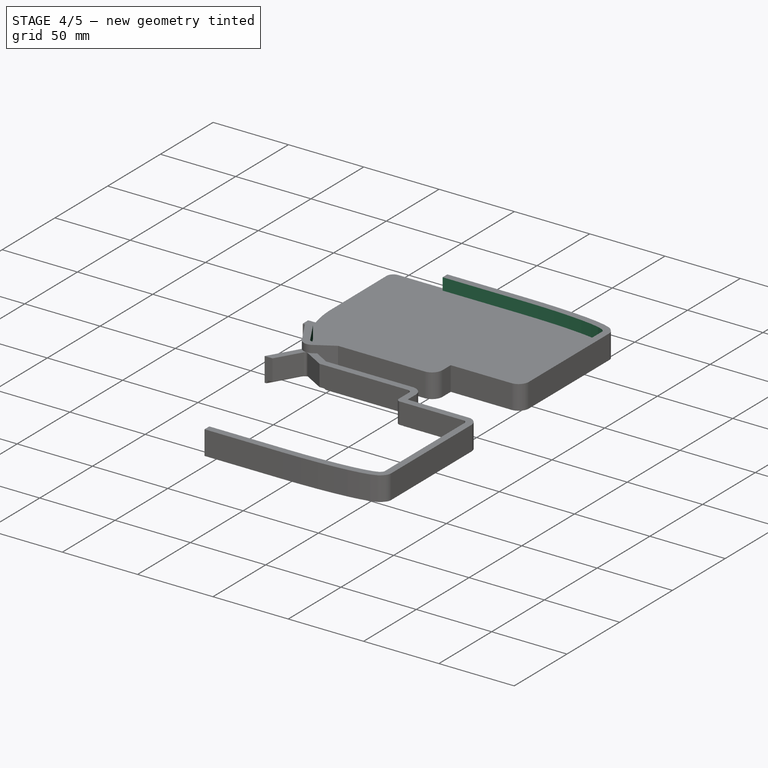
[diagram: stage 4 of 5 — iso view after this stage's code; geometry added in this stage tinted green]
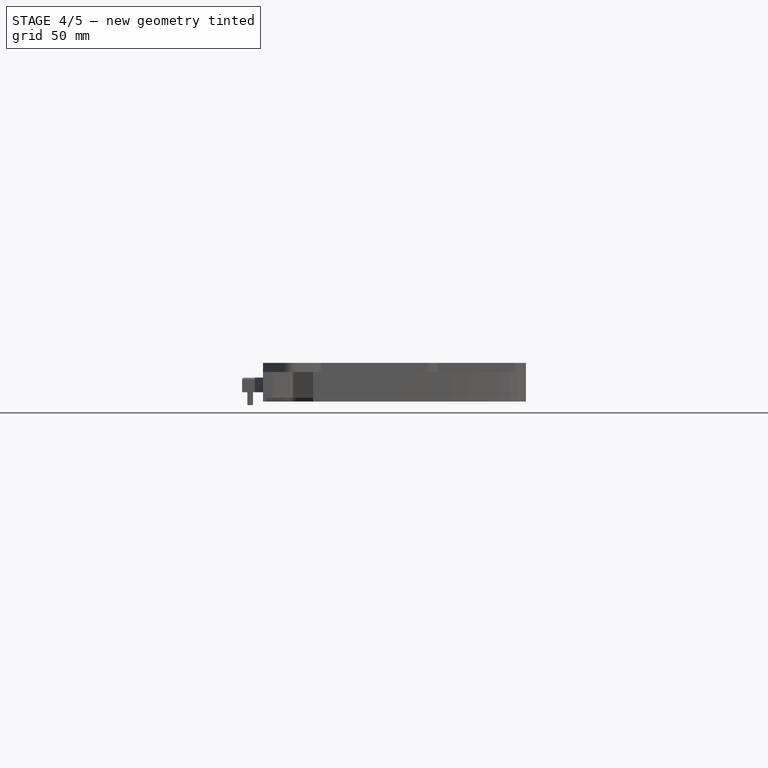
[diagram: stage 4 of 5 — front view after this stage's code; geometry added in this stage tinted green]
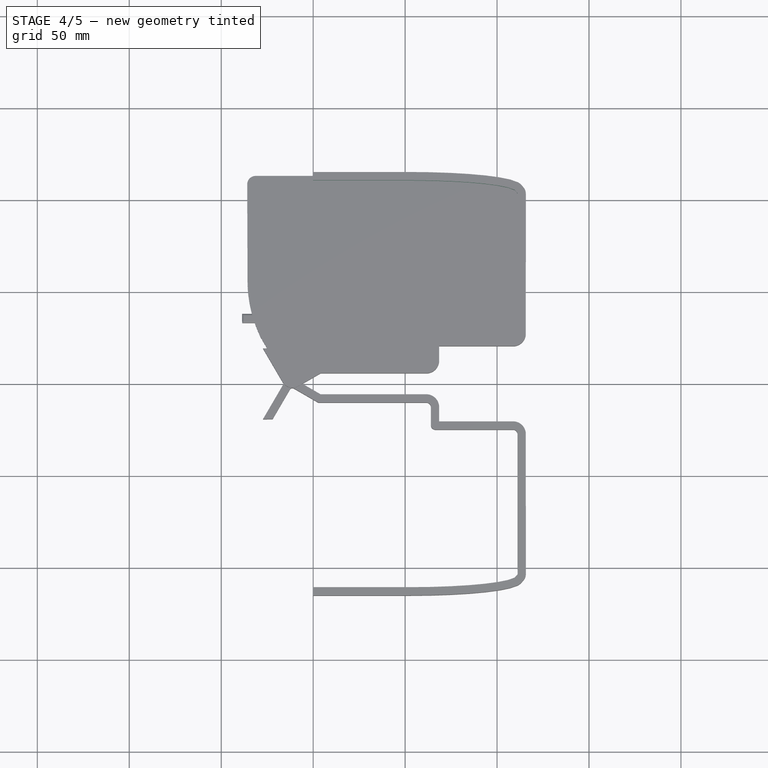
[diagram: stage 4 of 5 — top view after this stage's code; geometry added in this stage tinted green]
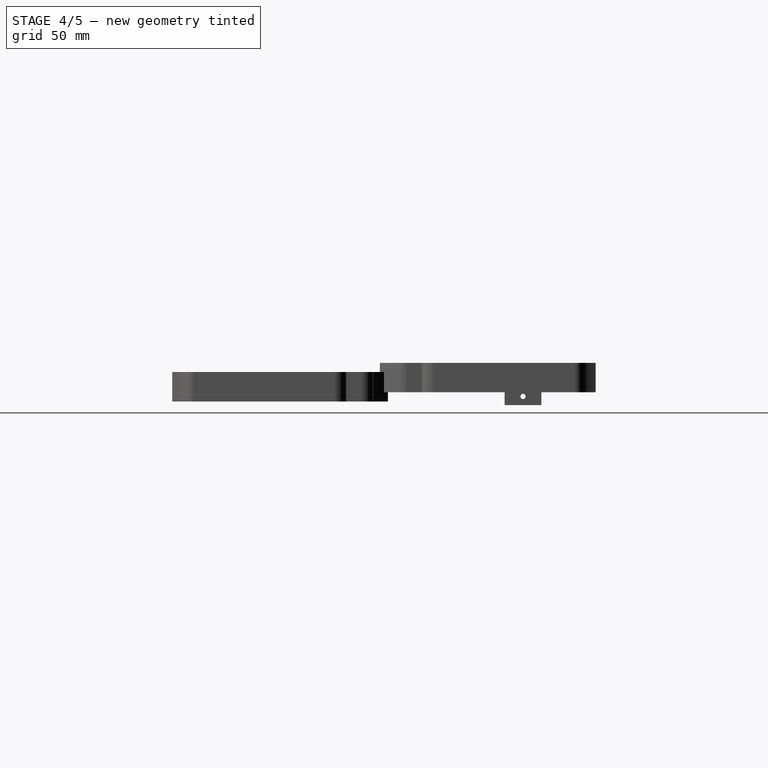
[diagram: stage 4 of 5 — right view after this stage's code; geometry added in this stage tinted green]
FEATURE [Sketcher::SketchObject] Sketch067  label="outline_initial014"
  ArcFitTolerance = 1e-06
  FullyConstrained = false
  MakeInternals = false
  sketch-geometry (54):
    g0: ArcOfCircle CenterX=17.8287 CenterY=54.0866 CenterZ=0 NormalX=0 NormalY=0 NormalZ=-1 AngleXU=-1.60752 Radius=3.5 StartAngle=1.5708 EndAngle=1.6039
    g1: LineSegment StartX=14.1312 StartY=108.555 StartZ=0 EndX=14.3287 EndY=54.0739 EndZ=0
    g2: ArcOfCircle CenterX=17.6312 CenterY=108.567 CenterZ=0 NormalX=0 NormalY=0 NormalZ=-1 AngleXU=-1.57442 Radius=3.5 StartAngle=1.5708 EndAngle=1.58105
    g3: ArcOfCircle CenterX=18.6882 CenterY=108.56 CenterZ=0 NormalX=0 NormalY=0 NormalZ=1 AngleXU=0 Radius=4.55703 StartAngle=1.57742 EndAngle=3.13497
    g4: ArcOfCircle CenterX=18.6812 CenterY=109.617 CenterZ=0 NormalX=0 NormalY=0 NormalZ=-1 AngleXU=-0.00662567 Radius=3.5 StartAngle=1.5708 EndAngle=1.57742
    g5: LineSegment StartX=101.944 StartY=113.117 StartZ=0 EndX=18.6812 EndY=113.117 EndZ=0
    g6: ArcOfCircle CenterX=101.944 CenterY=109.617 CenterZ=0 NormalX=0 NormalY=0 NormalZ=-1 AngleXU=0 Radius=3.5 StartAngle=1.5708 EndAngle=1.58178
    g7: LineSegment StartX=113.721 StartY=112.988 StartZ=0 EndX=101.982 EndY=113.117 EndZ=0
    g8: ArcOfCircle CenterX=113.683 CenterY=109.488 CenterZ=0 NormalX=0 NormalY=0 NormalZ=-1 AngleXU=0.0109795 Radius=3.5 StartAngle=1.5708 EndAngle=1.59363
    g9: LineSegment StartX=124.731 StartY=112.617 StartZ=0 EndX=113.801 EndY=112.986 EndZ=0
    g10: ArcOfCircle CenterX=124.613 CenterY=109.119 CenterZ=0 NormalX=0 NormalY=0 NormalZ=-1 AngleXU=0.0338134 Radius=3.5 StartAngle=1.5708 EndAngle=1.59609
    g11: LineSegment StartX=134.707 StartY=112.028 StartZ=0 EndX=124.819 EndY=112.613 EndZ=0
    g12: ArcOfCircle CenterX=134.501 CenterY=108.534 CenterZ=0 NormalX=0 NormalY=0 NormalZ=-1 AngleXU=0.0591041 Radius=3.5 StartAngle=1.5708 EndAngle=1.60144
    g13: LineSegment StartX=143.427 StartY=111.244 StartZ=0 EndX=134.814 EndY=112.02 EndZ=0
    g14: ArcOfCircle CenterX=143.114 CenterY=107.759 CenterZ=0 NormalX=0 NormalY=0 NormalZ=-1 AngleXU=0.0897456 Radius=3.5 StartAngle=1.5708 EndAngle=1.61253
    g15: LineSegment StartX=150.678 StartY=110.289 StartZ=0 EndX=143.573 EndY=111.228 EndZ=0
    g16: ArcOfCircle CenterX=150.219 CenterY=106.819 CenterZ=0 NormalX=0 NormalY=0 NormalZ=-1 AngleXU=0.131483 Radius=3.5 StartAngle=1.5708 EndAngle=1.63778
    g17: LineSegment StartX=156.272 StartY=109.172 StartZ=0 EndX=150.909 EndY=110.25 EndZ=0
    g18: ArcOfCircle CenterX=155.582 CenterY=105.74 CenterZ=0 NormalX=0 NormalY=0 NormalZ=-1 AngleXU=0.198464 Radius=3.5 StartAngle=1.5708 EndAngle=1.71062
    g19: LineSegment StartX=160.133 StartY=107.85 StartZ=0 EndX=156.744 EndY=109.042 EndZ=0
    g20: ArcOfCircle CenterX=158.971 CenterY=104.548 CenterZ=0 NormalX=0 NormalY=0 NormalZ=-1 AngleXU=0.338287 Radius=3.5 StartAngle=1.5708 EndAngle=2.05811
    g21: LineSegment StartX=162.725 StartY=105.641 StartZ=0 EndX=161.544 EndY=106.921 EndZ=0
    g22: ArcOfCircle CenterX=160.153 CenterY=103.267 CenterZ=0 NormalX=0 NormalY=0 NormalZ=-1 AngleXU=0.825602 Radius=3.5 StartAngle=1.5708 EndAngle=2.31639
    g23: LineSegment StartX=163.653 StartY=103.266 StartZ=0 EndX=163.623 EndY=27.1105 EndZ=0
    g24: ArcOfCircle CenterX=160.123 CenterY=27.1119 CenterZ=0 NormalX=0 NormalY=0 NormalZ=-1 AngleXU=1.5712 Radius=3.5 StartAngle=1.5708 EndAngle=1.77315
    g25: ArcOfCircle CenterX=158.654 CenterY=27.4139 CenterZ=0 NormalX=0 NormalY=0 NormalZ=1 AngleXU=0 Radius=4.99977 StartAngle=4.91513 EndAngle=6.08043
    g26: ArcOfCircle CenterX=158.955 CenterY=25.9449 CenterZ=0 NormalX=0 NormalY=0 NormalZ=-1 AngleXU=2.93885 Radius=3.5 StartAngle=1.5708 EndAngle=1.76585
    g27: LineSegment StartX=158.982 StartY=22.445 StartZ=0 EndX=158.508 EndY=22.4413 EndZ=0
    g28: ArcOfCircle CenterX=158.481 CenterY=25.9412 CenterZ=0 NormalX=0 NormalY=0 NormalZ=-1 AngleXU=3.13391 Radius=3.5 StartAngle=1.5708 EndAngle=1.57848
    g29: LineSegment StartX=116.552 StartY=22.4412 StartZ=0 EndX=158.481 EndY=22.4412 EndZ=0
    g30: ArcOfCircle CenterX=116.556 CenterY=22.3973 CenterZ=0 NormalX=0 NormalY=0 NormalZ=1 AngleXU=0 Radius=0.044167 StartAngle=1.68239 EndAngle=3.0984
    g31: LineSegment StartX=116.512 StartY=22.3992 StartZ=0 EndX=116.512 EndY=12.6932 EndZ=0
    g32: ArcOfCircle CenterX=111.513 CenterY=12.6916 CenterZ=0 NormalX=0 NormalY=0 NormalZ=1 AngleXU=0 Radius=4.99911 StartAngle=4.71207 EndAngle=6.28351
    g33: LineSegment StartX=53.4961 StartY=7.69248 StartZ=0 EndX=111.512 EndY=7.69248 EndZ=0
    g34: LineSegment StartX=40.9031 StartY=0.40324 StartZ=0 EndX=53.4961 EndY=7.69248 EndZ=0
    g35: ArcOfCircle CenterX=39.1497 CenterY=3.43238 CenterZ=0 NormalX=0 NormalY=0 NormalZ=-1 AngleXU=2.61688 Radius=3.5 StartAngle=1.5708 EndAngle=1.62438
    g36: LineSegment StartX=40.5705 StartY=0.228155 StartZ=0 EndX=40.7384 EndY=0.313675 EndZ=0
    g37: ArcOfCircle CenterX=38.9819 CenterY=3.34686 CenterZ=0 NormalX=0 NormalY=0 NormalZ=-1 AngleXU=2.67047 Radius=3.5 StartAngle=1.5708 EndAngle=1.75282
    g38: LineSegment StartX=39.821 StartY=-0.055087 StartZ=0 EndX=39.9797 EndY=-0.00789703 EndZ=0
    g39: ArcOfCircle CenterX=38.8232 CenterY=3.29967 CenterZ=0 NormalX=0 NormalY=0 NormalZ=-1 AngleXU=2.8525 Radius=3.5 StartAngle=1.5708 EndAngle=1.79613
    g40: LineSegment StartX=38.8973 StartY=-0.202728 StartZ=0 EndX=39.0462 EndY=-0.193218 EndZ=0
    g41: ArcOfCircle CenterX=38.6743 CenterY=3.29016 CenterZ=0 NormalX=0 NormalY=0 NormalZ=-1 AngleXU=3.07783 Radius=3.5 StartAngle=1.5708 EndAngle=1.83039
    g42: LineSegment StartX=37.8544 StartY=-0.115413 StartZ=0 EndX=37.9932 EndY=-0.142943 EndZ=0
    g43: ArcOfCircle CenterX=38.5355 CenterY=3.31769 CenterZ=0 NormalX=0 NormalY=0 NormalZ=-1 AngleXU=-2.94576 Radius=3.5 StartAngle=1.5708 EndAngle=1.83758
    g44: LineSegment StartX=36.8453 StartY=0.249493 StartZ=0 EndX=36.9734 EndY=0.185583 EndZ=0
    g45: ArcOfCircle CenterX=38.4073 CenterY=3.3816 CenterZ=0 NormalX=0 NormalY=0 NormalZ=-1 AngleXU=-2.67898 Radius=3.5 StartAngle=1.5708 EndAngle=1.81354
    g46: LineSegment StartX=36.0212 StartY=0.816424 StartZ=0 EndX=36.1382 EndY=0.716774 EndZ=0
    g47: ArcOfCircle CenterX=38.2903 CenterY=3.48125 CenterZ=0 NormalX=0 NormalY=0 NormalZ=-1 AngleXU=-2.43623 Radius=3.5 StartAngle=1.5708 EndAngle=1.77214
    g48: LineSegment StartX=35.4287 StartY=1.45877 StartZ=0 EndX=35.5341 EndY=1.32403 EndZ=0
    g49: ArcOfCircle CenterX=38.1848 CenterY=3.61599 CenterZ=0 NormalX=0 NormalY=0 NormalZ=-1 AngleXU=-2.23489 Radius=3.5 StartAngle=1.5708 EndAngle=1.72726
    g50: LineSegment StartX=35.0474 StartY=2.05623 StartZ=0 EndX=35.1262 EndY=1.91461 EndZ=0
    g51: LineSegment StartX=21.6648 StartY=24.9482 StartZ=0 EndX=35.0474 EndY=2.05623 EndZ=0
    g52: ArcOfCircle CenterX=24.6863 CenterY=26.7146 CenterZ=0 NormalX=0 NormalY=0 NormalZ=-1 AngleXU=-2.09982 Radius=3.5 StartAngle=1.5708 EndAngle=1.64558
    g53: ArcOfCircle CenterX=85.8629 CenterY=56.5865 CenterZ=0 NormalX=0 NormalY=0 NormalZ=1 AngleXU=0 Radius=71.5801 StartAngle=3.17832 EndAngle=3.59583
  constraints (54):
    c: Tangent(g0,g1) = -1.5708
    c: Tangent(g0,g53) = -1.5708
    c: Tangent(g1,g2) = -1.5708
    c: Tangent(g2,g3) = -1.5708
    c: Tangent(g3,g4) = -1.5708
    c: Tangent(g4,g5) = -1.5708
    c: Tangent(g5,g6) = -1.5708
    c: Tangent(g6,g7) = -1.5708
    c: Tangent(g7,g8) = -1.5708
    c: Tangent(g8,g9) = -1.5708
    c: Tangent(g9,g10) = -1.5708
    c: Tangent(g10,g11) = -1.5708
    c: Tangent(g11,g12) = -1.5708
    c: Tangent(g12,g13) = -1.5708
    c: Tangent(g13,g14) = -1.5708
    c: Tangent(g14,g15) = -1.5708
    c: Tangent(g15,g16) = -1.5708
    c: Tangent(g16,g17) = -1.5708
    c: Tangent(g17,g18) = -1.5708
    c: Tangent(g18,g19) = -1.5708
    c: Tangent(g19,g20) = -1.5708
    c: Tangent(g20,g21) = -1.5708
    c: Tangent(g21,g22) = -1.5708
    c: Tangent(g22,g23) = 1.5708
    c: Tangent(g23,g24) = 1.5708
    c: Tangent(g24,g25) = -1.5708
    c: Tangent(g25,g26) = -1.5708
    c: Tangent(g26,g27) = 1.5708
    c: Tangent(g27,g28) = 1.5708
    c: Tangent(g28,g29) = -1.5708
    c: Coincident(g29,g30)
    c: Coincident(g30,g31)
    c: Coincident(g31,g32)
    c: Coincident(g32,g33)
    c: Coincident(g33,g34)
    c: Tangent(g34,g35) = -1.5708
    c: Tangent(g35,g36) = -1.5708
    c: Tangent(g36,g37) = -1.5708
    c: Tangent(g37,g38) = -1.5708
    c: Tangent(g38,g39) = -1.5708
    c: Tangent(g39,g40) = -1.5708
    c: Tangent(g40,g41) = -1.5708
    c: Tangent(g41,g42) = -1.5708
    c: Tangent(g42,g43) = -1.5708
    c: Tangent(g43,g44) = -1.5708
    c: Tangent(g44,g45) = -1.5708
    c: Tangent(g45,g46) = -1.5708
    c: Tangent(g46,g47) = -1.5708
    c: Tangent(g47,g48) = -1.5708
    c: Tangent(g48,g49) = -1.5708
    c: Tangent(g49,g50) = -1.5708
    c: Coincident(g50,g51)
    c: Tangent(g51,g52) = -1.5708
    c: Tangent(g52,g53) = -1.5708
FEATURE [PartDesign::Pad] Pad019
  Direction = (0,0,1)
  Length = 8
  Length2 = 10
  Profile = -> Sketch067
  ReferenceAxis = -> Sketch067 [N_Axis]
  Refine = true
  Suppressed = false
  Type = 0
FEATURE [Sketcher::SketchObject] Sketch068  label="outline_initial015"
  ArcFitTolerance = 1e-06
  FullyConstrained = false
  MakeInternals = false
  sketch-geometry (54):
    g0: ArcOfCircle CenterX=85.8629 CenterY=56.5865 CenterZ=0 NormalX=0 NormalY=0 NormalZ=1 AngleXU=0 Radius=68.5801 StartAngle=3.17832 EndAngle=3.59583
    g1: ArcOfCircle CenterX=24.6863 CenterY=26.7146 CenterZ=0 NormalX=0 NormalY=0 NormalZ=-1 AngleXU=-2.09982 Radius=0.5 StartAngle=1.5708 EndAngle=1.64558
    g2: LineSegment StartX=24.2547 StartY=26.4623 StartZ=0 EndX=37.6535 EndY=3.5426 EndZ=0
    g3: LineSegment StartX=37.6535 StartY=3.5426 StartZ=0 EndX=37.7479 EndY=3.37294 EndZ=0
    g4: ArcOfCircle CenterX=38.1848 CenterY=3.61599 CenterZ=0 NormalX=0 NormalY=0 NormalZ=-1 AngleXU=-2.23489 Radius=0.5 StartAngle=1.5708 EndAngle=1.72726
    g5: LineSegment StartX=37.7911 StartY=3.30782 StartZ=0 EndX=37.8966 EndY=3.17308 EndZ=0
    g6: ArcOfCircle CenterX=38.2903 CenterY=3.48125 CenterZ=0 NormalX=0 NormalY=0 NormalZ=-1 AngleXU=-2.43623 Radius=0.5 StartAngle=1.5708 EndAngle=1.77214
    g7: LineSegment StartX=37.9661 StartY=3.10056 StartZ=0 EndX=38.0832 EndY=3.00091 EndZ=0
    g8: ArcOfCircle CenterX=38.4073 CenterY=3.3816 CenterZ=0 NormalX=0 NormalY=0 NormalZ=-1 AngleXU=-2.67898 Radius=0.5 StartAngle=1.5708 EndAngle=1.81354
    g9: LineSegment StartX=38.1842 StartY=2.93416 StartZ=0 EndX=38.3123 EndY=2.87025 EndZ=0
    g10: ArcOfCircle CenterX=38.5355 CenterY=3.31769 CenterZ=0 NormalX=0 NormalY=0 NormalZ=-1 AngleXU=-2.94576 Radius=0.5 StartAngle=1.5708 EndAngle=1.83758
    g11: LineSegment StartX=38.4382 StartY=2.82725 StartZ=0 EndX=38.577 EndY=2.79972 EndZ=0
    g12: ArcOfCircle CenterX=38.6743 CenterY=3.29016 CenterZ=0 NormalX=0 NormalY=0 NormalZ=-1 AngleXU=3.07783 Radius=0.5 StartAngle=1.5708 EndAngle=1.83039
    g13: LineSegment StartX=38.7061 StartY=2.79118 StartZ=0 EndX=38.8551 EndY=2.80069 EndZ=0
    g14: ArcOfCircle CenterX=38.8232 CenterY=3.29967 CenterZ=0 NormalX=0 NormalY=0 NormalZ=-1 AngleXU=2.8525 Radius=0.5 StartAngle=1.5708 EndAngle=1.79613
    g15: LineSegment StartX=38.9657 StartY=2.82042 StartZ=0 EndX=39.1244 EndY=2.86761 EndZ=0
    g16: ArcOfCircle CenterX=38.9819 CenterY=3.34686 CenterZ=0 NormalX=0 NormalY=0 NormalZ=-1 AngleXU=2.67047 Radius=0.5 StartAngle=1.5708 EndAngle=1.75282
    g17: LineSegment StartX=39.2088 StartY=2.90133 StartZ=0 EndX=39.3767 EndY=2.98685 EndZ=0
    g18: ArcOfCircle CenterX=39.1497 CenterY=3.43238 CenterZ=0 NormalX=0 NormalY=0 NormalZ=-1 AngleXU=2.61688 Radius=0.5 StartAngle=1.5708 EndAngle=1.62438
    g19: LineSegment StartX=39.4002 StartY=2.99965 StartZ=0 EndX=52.6904 EndY=10.6925 EndZ=0
    g20: LineSegment StartX=52.6904 StartY=10.6925 StartZ=0 EndX=111.512 EndY=10.6925 EndZ=0
    g21: ArcOfCircle CenterX=111.513 CenterY=12.6916 CenterZ=0 NormalX=0 NormalY=0 NormalZ=1 AngleXU=0 Radius=1.99911 StartAngle=4.71188 EndAngle=6.2837
    g22: LineSegment StartX=113.512 StartY=22.4131 StartZ=0 EndX=113.512 EndY=12.6926 EndZ=0
    g23: ArcOfCircle CenterX=116.556 CenterY=22.3973 CenterZ=0 NormalX=0 NormalY=0 NormalZ=1 AngleXU=0 Radius=3.04417 StartAngle=1.58423 EndAngle=3.13639
    g24: LineSegment StartX=116.516 StartY=25.4412 StartZ=0 EndX=158.481 EndY=25.4412 EndZ=0
    g25: ArcOfCircle CenterX=158.481 CenterY=25.9412 CenterZ=0 NormalX=0 NormalY=0 NormalZ=-1 AngleXU=3.13391 Radius=0.5 StartAngle=1.5708 EndAngle=1.57848
    g26: LineSegment StartX=158.959 StartY=25.4449 StartZ=0 EndX=158.485 EndY=25.4412 EndZ=0
    g27: ArcOfCircle CenterX=158.955 CenterY=25.9449 CenterZ=0 NormalX=0 NormalY=0 NormalZ=-1 AngleXU=2.93885 Radius=0.5 StartAngle=1.5708 EndAngle=1.76585
    g28: ArcOfCircle CenterX=158.654 CenterY=27.4139 CenterZ=0 NormalX=0 NormalY=0 NormalZ=1 AngleXU=0 Radius=1.99977 StartAngle=4.91513 EndAngle=6.08043
    g29: ArcOfCircle CenterX=160.123 CenterY=27.1119 CenterZ=0 NormalX=0 NormalY=0 NormalZ=-1 AngleXU=1.5712 Radius=0.5 StartAngle=1.5708 EndAngle=1.77315
    g30: LineSegment StartX=160.653 StartY=103.267 StartZ=0 EndX=160.623 EndY=27.1117 EndZ=0
    g31: ArcOfCircle CenterX=160.153 CenterY=103.267 CenterZ=0 NormalX=0 NormalY=0 NormalZ=-1 AngleXU=0.825602 Radius=0.5 StartAngle=1.5708 EndAngle=2.31639
    g32: LineSegment StartX=160.52 StartY=103.606 StartZ=0 EndX=159.339 EndY=104.887 EndZ=0
    g33: ArcOfCircle CenterX=158.971 CenterY=104.548 CenterZ=0 NormalX=0 NormalY=0 NormalZ=-1 AngleXU=0.338287 Radius=0.5 StartAngle=1.5708 EndAngle=2.05811
    g34: LineSegment StartX=159.137 StartY=105.02 StartZ=0 EndX=155.748 EndY=106.212 EndZ=0
    g35: ArcOfCircle CenterX=155.582 CenterY=105.74 CenterZ=0 NormalX=0 NormalY=0 NormalZ=-1 AngleXU=0.198464 Radius=0.5 StartAngle=1.5708 EndAngle=1.71062
    g36: LineSegment StartX=155.681 StartY=106.23 StartZ=0 EndX=150.317 EndY=107.309 EndZ=0
    g37: ArcOfCircle CenterX=150.219 CenterY=106.819 CenterZ=0 NormalX=0 NormalY=0 NormalZ=-1 AngleXU=0.131483 Radius=0.5 StartAngle=1.5708 EndAngle=1.63778
    g38: LineSegment StartX=150.284 StartY=107.315 StartZ=0 EndX=143.179 EndY=108.254 EndZ=0
    g39: ArcOfCircle CenterX=143.114 CenterY=107.759 CenterZ=0 NormalX=0 NormalY=0 NormalZ=-1 AngleXU=0.0897456 Radius=0.5 StartAngle=1.5708 EndAngle=1.61253
    g40: LineSegment StartX=143.159 StartY=108.257 StartZ=0 EndX=134.545 EndY=109.032 EndZ=0
    g41: ArcOfCircle CenterX=134.501 CenterY=108.534 CenterZ=0 NormalX=0 NormalY=0 NormalZ=-1 AngleXU=0.0591041 Radius=0.5 StartAngle=1.5708 EndAngle=1.60144
    g42: LineSegment StartX=134.53 StartY=109.033 StartZ=0 EndX=124.642 EndY=109.618 EndZ=0
    g43: ArcOfCircle CenterX=124.613 CenterY=109.119 CenterZ=0 NormalX=0 NormalY=0 NormalZ=-1 AngleXU=0.0338134 Radius=0.5 StartAngle=1.5708 EndAngle=1.59609
    g44: LineSegment StartX=124.629 StartY=109.618 StartZ=0 EndX=113.699 EndY=109.988 EndZ=0
    g45: ArcOfCircle CenterX=113.683 CenterY=109.488 CenterZ=0 NormalX=0 NormalY=0 NormalZ=-1 AngleXU=0.0109795 Radius=0.5 StartAngle=1.5708 EndAngle=1.59363
    g46: LineSegment StartX=113.688 StartY=109.988 StartZ=0 EndX=101.949 EndY=110.117 EndZ=0
    g47: ArcOfCircle CenterX=101.944 CenterY=109.617 CenterZ=0 NormalX=0 NormalY=0 NormalZ=-1 AngleXU=0 Radius=0.5 StartAngle=1.5708 EndAngle=1.58178
    g48: LineSegment StartX=101.944 StartY=110.117 StartZ=0 EndX=18.6812 EndY=110.117 EndZ=0
    g49: ArcOfCircle CenterX=18.6812 CenterY=109.617 CenterZ=0 NormalX=0 NormalY=0 NormalZ=-1 AngleXU=-0.00662567 Radius=0.5 StartAngle=1.5708 EndAngle=1.57742
    g50: ArcOfCircle CenterX=18.6882 CenterY=108.56 CenterZ=0 NormalX=0 NormalY=0 NormalZ=1 AngleXU=0 Radius=1.55703 StartAngle=1.57742 EndAngle=3.13497
    g51: ArcOfCircle CenterX=17.6312 CenterY=108.567 CenterZ=0 NormalX=0 NormalY=0 NormalZ=-1 AngleXU=-1.57442 Radius=0.5 StartAngle=1.5708 EndAngle=1.58105
    g52: LineSegment StartX=17.1312 StartY=108.566 StartZ=0 EndX=17.3287 EndY=54.0848 EndZ=0
    g53: ArcOfCircle CenterX=17.8287 CenterY=54.0866 CenterZ=0 NormalX=0 NormalY=0 NormalZ=-1 AngleXU=-1.60752 Radius=0.5 StartAngle=1.5708 EndAngle=1.6039
  constraints (54):
    c: Tangent(g0,g1) = -1.5708
    c: Tangent(g0,g53) = -1.5708
    c: Tangent(g1,g2) = -1.5708
    c: Coincident(g2,g3)
    c: Tangent(g3,g4) = -1.5708
    c: Tangent(g4,g5) = -1.5708
    c: Tangent(g5,g6) = -1.5708
    c: Tangent(g6,g7) = -1.5708
    c: Tangent(g7,g8) = -1.5708
    c: Tangent(g8,g9) = -1.5708
    c: Tangent(g9,g10) = -1.5708
    c: Tangent(g10,g11) = -1.5708
    c: Tangent(g11,g12) = -1.5708
    c: Tangent(g12,g13) = -1.5708
    c: Tangent(g13,g14) = -1.5708
    c: Tangent(g14,g15) = -1.5708
    c: Tangent(g15,g16) = -1.5708
    c: Tangent(g16,g17) = -1.5708
    c: Tangent(g17,g18) = -1.5708
    c: Tangent(g18,g19) = -1.5708
    c: Coincident(g19,g20)
    c: Coincident(g20,g21)
    c: Coincident(g21,g22)
    c: Coincident(g22,g23)
    c: Coincident(g23,g24)
    c: Tangent(g24,g25) = -1.5708
    c: Tangent(g25,g26) = 1.5708
    c: Tangent(g26,g27) = 1.5708
    c: Tangent(g27,g28) = -1.5708
    c: Tangent(g28,g29) = -1.5708
    c: Tangent(g29,g30) = 1.5708
    c: Tangent(g30,g31) = 1.5708
    c: Tangent(g31,g32) = -1.5708
    c: Tangent(g32,g33) = -1.5708
    c: Tangent(g33,g34) = -1.5708
    c: Tangent(g34,g35) = -1.5708
    c: Tangent(g35,g36) = -1.5708
    c: Tangent(g36,g37) = -1.5708
    c: Tangent(g37,g38) = -1.5708
    c: Tangent(g38,g39) = -1.5708
    c: Tangent(g39,g40) = -1.5708
    c: Tangent(g40,g41) = -1.5708
    c: Tangent(g41,g42) = -1.5708
    c: Tangent(g42,g43) = -1.5708
    c: Tangent(g43,g44) = -1.5708
    c: Tangent(g44,g45) = -1.5708
    c: Tangent(g45,g46) = -1.5708
    c: Tangent(g46,g47) = -1.5708
    c: Tangent(g47,g48) = -1.5708
    c: Tangent(g48,g49) = -1.5708
    c: Tangent(g49,g50) = -1.5708
    c: Tangent(g50,g51) = -1.5708
    c: Tangent(g51,g52) = -1.5708
    c: Tangent(g52,g53) = -1.5708
FEATURE [PartDesign::Pocket] Pocket015
  BaseFeature = -> Pad019
  Direction = (0,0,-1)
  Length = 6
  Length2 = 5
  Profile = -> Sketch068
  ReferenceAxis = -> Sketch068 [N_Axis]
  Refine = true
  Reversed = true
  Suppressed = false
  Type = 0
FEATURE [Sketcher::SketchObject] Sketch069
  ArcFitTolerance = 1e-06
  FullyConstrained = true
  MakeInternals = false
  MapMode = 5
  Placement = pos=(14.5245,0.0526477,0) rot=(0.578745,-0.576651,-0.576651;2.0923rad)
  expr: Constraints[10] = 75 / 2 - 10
  expr: Constraints[9] = 15
  sketch-geometry (4):
    g0: LineSegment StartX=-85.5489 StartY=8 StartZ=0 EndX=-85.5489 EndY=-7 EndZ=0
    g1: LineSegment StartX=-85.5489 StartY=-7 StartZ=0 EndX=-65.5489 EndY=-7 EndZ=0
    g2: LineSegment StartX=-65.5489 StartY=-7 StartZ=0 EndX=-65.5489 EndY=8 EndZ=0
    g3: LineSegment StartX=-65.5489 StartY=8 StartZ=0 EndX=-85.5489 EndY=8 EndZ=0
  constraints (12):
    c: Coincident(g0,g1)
    c: Coincident(g1,g2)
    c: Coincident(g2,g3)
    c: Coincident(g3,g0)
    c: Vertical(g0)
    c: Vertical(g2)
    c: Horizontal(g1)
    c: Horizontal(g3)
    c: Distance(g0,g2) = 20
    c: Distance(g1,g3) = 15
    c: DistanceX(g-3,g0) = 27.5
    c: DistanceY(g-4,g0) = 0
FEATURE [PartDesign::Pad] Pad020
  BaseFeature = -> Pocket015
  Direction = (-0.999993,-0.00362472,-4e-16)
  Length = 3
  Length2 = 10
  Profile = -> Sketch069
  ReferenceAxis = -> Sketch069 [N_Axis]
  Refine = true
  Reversed = true
  Suppressed = false
  Type = 0
FEATURE [Sketcher::SketchObject] Sketch070
  ArcFitTolerance = 1e-06
  AttachmentSupport = -> [Pad020]
  ExternalGeometry = -> [Pad020]
  FullyConstrained = true
  MakeInternals = false
  MapMode = 5
  Placement = pos=(14.5245,0.0526477,2.77e-14) rot=(0.578745,-0.576651,-0.576651;2.0923rad)
  expr: Constraints[1] = 20.5 / 2
  sketch-geometry (1):
    g0: Circle CenterX=-75.5489 CenterY=-2.25 CenterZ=0 NormalX=0 NormalY=0 NormalZ=1 AngleXU=0 Radius=1.45
  constraints (3):
    c: Diameter(g0) = 2.9
    c: DistanceY(g0,g-3) = 10.25
    c: DistanceX(g-4,g0) = 37.5
FEATURE [PartDesign::Pocket] Pocket016
  BaseFeature = -> Pad020
  Direction = (0.999993,0.00362472,2e-15)
  Length = 5
  Length2 = 5
  Profile = -> Sketch070
  ReferenceAxis = -> Sketch070 [N_Axis]
  Refine = true
  Suppressed = false
  Type = 1
FEATURE [PartDesign::Chamfer] Chamfer
  Angle = 65
  Base = -> Pocket [Edge113]
  BaseFeature = -> Pocket
  ChamferType = 2
  FlipDirection = false
  Refine = true
  Size = 0.9
  Size2 = 1
  SupportTransform = false
  Suppressed = false
  UseAllEdges = false
FEATURE [PartDesign::Pocket] Pocket019
  BaseFeature = -> Chamfer
  Direction = (0,0,-1)
  Length = 16
  Length2 = 5
  Profile = -> Sketch052
  ReferenceAxis = -> Sketch052 [N_Axis]
  Refine = true
  Reversed = true
  Suppressed = false
  Type = 0
FEATURE [Sketcher::SketchObject] Sketch
  ArcFitTolerance = 1e-06
  AttachmentSupport = -> [Pocket019]
  FullyConstrained = false
  MakeInternals = false
  MapMode = 5
  Placement = pos=(0,0,0) rot=(1,0,0;3.14159rad)
  sketch-geometry (4):
    g0: LineSegment StartX=0 StartY=-120.023 StartZ=0 EndX=50 EndY=-120.023 EndZ=0
    g1: LineSegment StartX=50 StartY=-120.023 StartZ=0 EndX=50 EndY=-26.8672 EndZ=0
    g2: LineSegment StartX=50 StartY=-26.8672 StartZ=0 EndX=0 EndY=-26.8672 EndZ=0
    g3: LineSegment StartX=0 StartY=-26.8672 StartZ=0 EndX=0 EndY=-120.023 EndZ=0
  constraints (10):
    c: Coincident(g0,g1)
    c: Coincident(g1,g2)
    c: Coincident(g2,g3)
    c: Coincident(g3,g0)
    c: Horizontal(g0)
    c: Horizontal(g2)
    c: Vertical(g1)
    c: Vertical(g3)
    c: PointOnObject(g0,g-2)
    c: DistanceX(g0,g0) = 50
FEATURE [PartDesign::Pocket] Pocket020
  BaseFeature = -> Pocket019
  Direction = (0,0,1)
  Length = 22
  Length2 = 5
  Profile = -> Sketch
  ReferenceAxis = -> Sketch [N_Axis]
  Refine = true
  Reversed = true
  Suppressed = false
  Type = 0
FEATURE [Sketcher::SketchObject] Sketch075
  ArcFitTolerance = 1e-06
  AttachmentSupport = -> [Pocket020]
  FullyConstrained = false
  MakeInternals = false
  MapMode = 5
  Placement = pos=(0,0,0) rot=(1,0,0;3.14159rad)
  sketch-geometry (4):
    g0: LineSegment StartX=0 StartY=-19.2035 StartZ=0 EndX=0 EndY=-119.204 EndZ=0
    g1: LineSegment StartX=0 StartY=-119.204 StartZ=0 EndX=50 EndY=-119.204 EndZ=0
    g2: LineSegment StartX=50 StartY=-119.204 StartZ=0 EndX=50 EndY=-19.2035 EndZ=0
    g3: LineSegment StartX=50 StartY=-19.2035 StartZ=0 EndX=0 EndY=-19.2035 EndZ=0
  constraints (11):
    c: Coincident(g0,g1)
    c: Coincident(g1,g2)
    c: Coincident(g2,g3)
    c: Coincident(g3,g0)
    c: Vertical(g0)
    c: Vertical(g2)
    c: Horizontal(g1)
    c: Horizontal(g3)
    c: Distance(g0,g2) = 50
    c: Distance(g1,g3) = 100
    c: PointOnObject(g0,g-2)
FEATURE [PartDesign::Pocket] Pocket021
  BaseFeature = -> Pocket020
  Direction = (0,0,1)
  Length = 22
  Length2 = 5
  Profile = -> Sketch075
  ReferenceAxis = -> Sketch075 [N_Axis]
  Refine = true
  Suppressed = false
  Type = 0
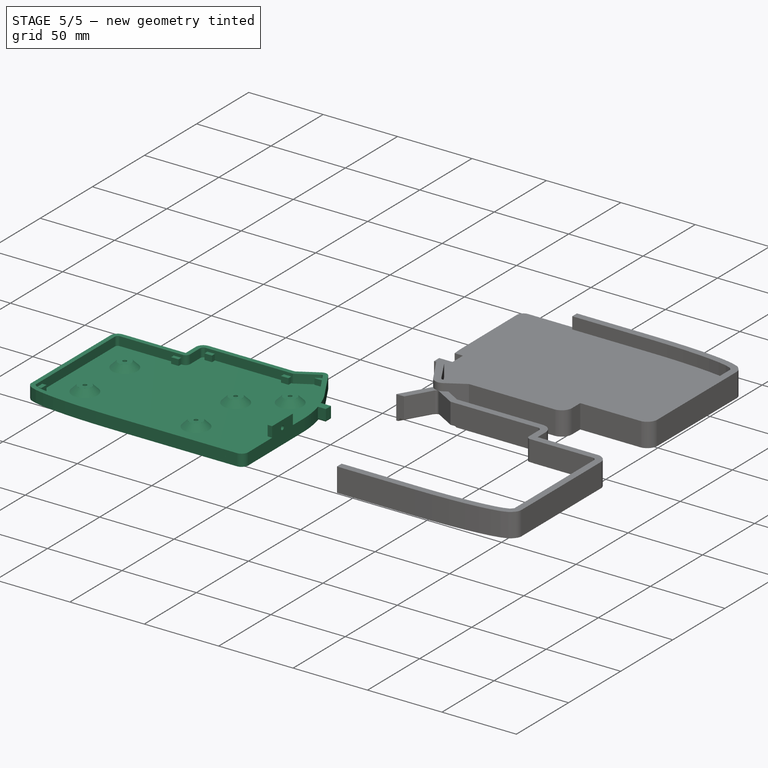
[diagram: stage 5 of 5 — iso view after this stage's code; geometry added in this stage tinted green]
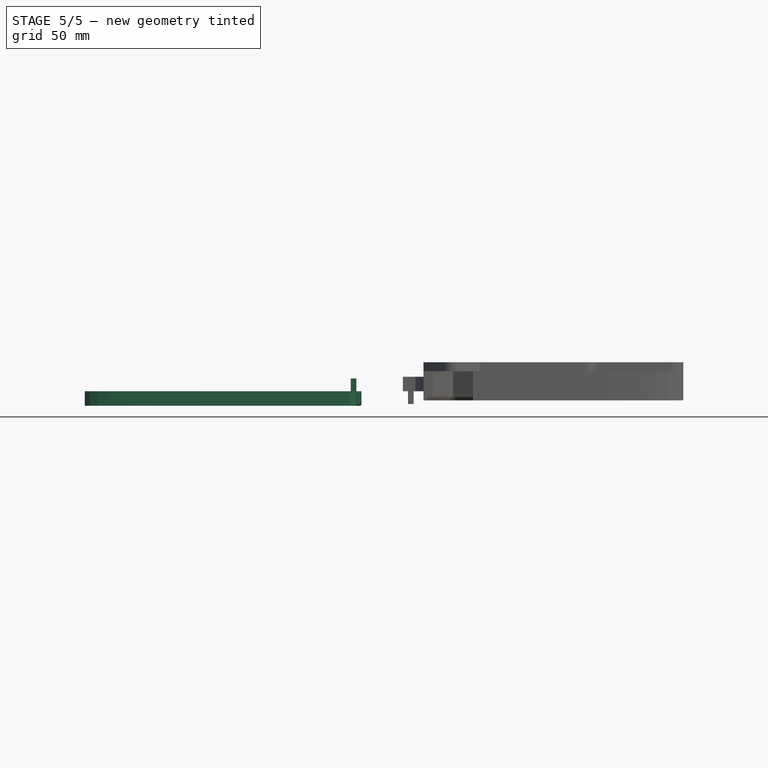
[diagram: stage 5 of 5 — front view after this stage's code; geometry added in this stage tinted green]
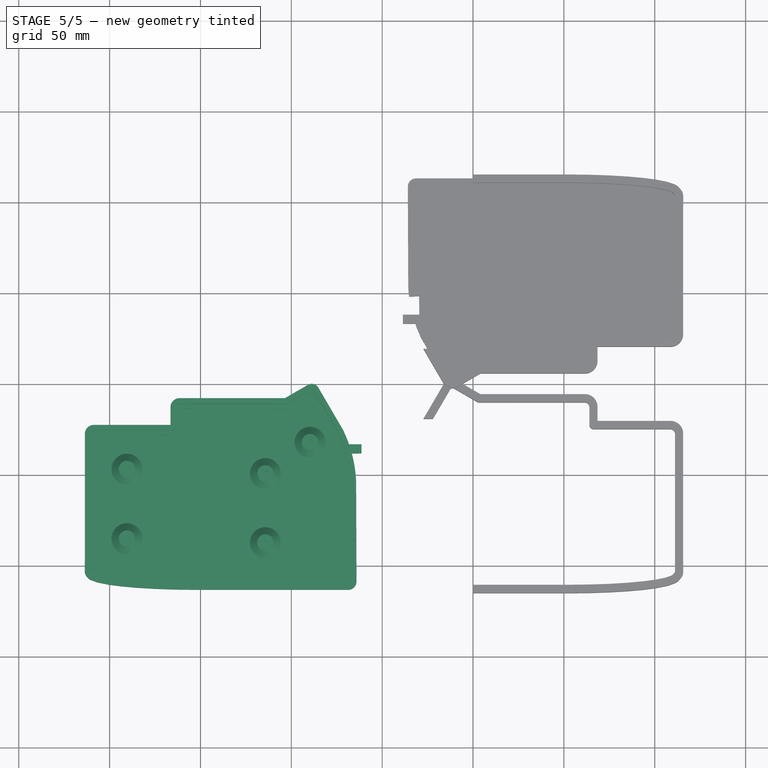
[diagram: stage 5 of 5 — top view after this stage's code; geometry added in this stage tinted green]
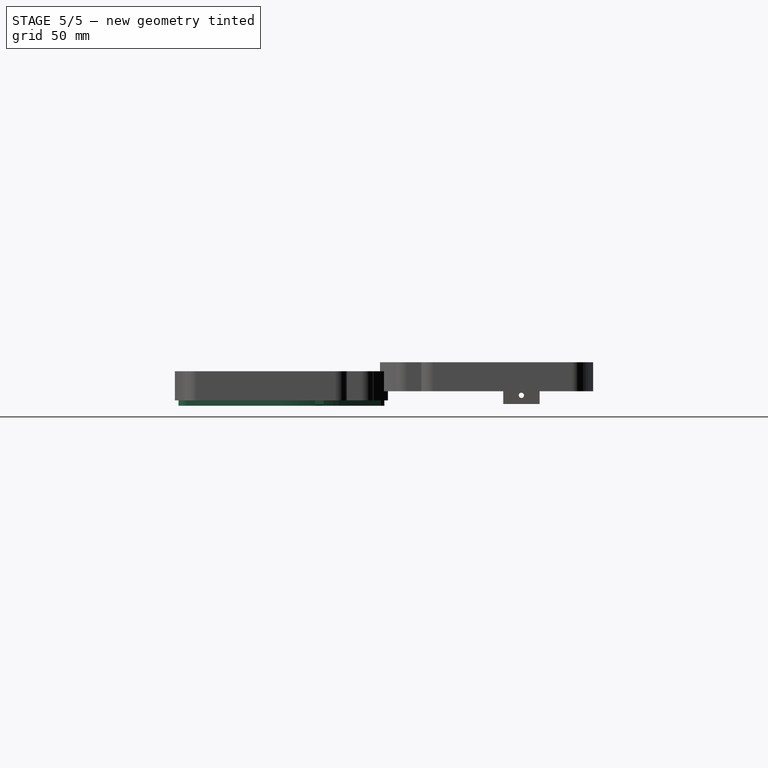
[diagram: stage 5 of 5 — right view after this stage's code; geometry added in this stage tinted green]
FEATURE [Part::Feature] Spline
  shape: bbox 2.219 x 1.483 x 2e-07 mm, 0 faces, 0 solids (baked)
FEATURE [Part::Feature] Spline001
  shape: bbox 0.7741 x 2.618 x 2e-07 mm, 0 faces, 0 solids (baked)
FEATURE [Part::Feature] Spline002
  shape: bbox 2.618 x 0.7741 x 2e-07 mm, 0 faces, 0 solids (baked)
FEATURE [Part::Feature] Spline003
  shape: bbox 1.483 x 2.219 x 2e-07 mm, 0 faces, 0 solids (baked)
FEATURE [Part::Feature] Spline004
  shape: bbox 0.7036 x 1.699 x 2e-07 mm, 0 faces, 0 solids (baked)
FEATURE [Part::Feature] Spline005
  shape: bbox 1.699 x 0.7036 x 2e-07 mm, 0 faces, 0 solids (baked)
FEATURE [Part::Feature] Spline006
  shape: bbox 2.219 x 1.483 x 2e-07 mm, 0 faces, 0 solids (baked)
FEATURE [Part::Feature] Spline007
  shape: bbox 0.7741 x 2.618 x 2e-07 mm, 0 faces, 0 solids (baked)
FEATURE [Part::Feature] Spline008
  shape: bbox 2.618 x 0.7741 x 2e-07 mm, 0 faces, 0 solids (baked)
FEATURE [Part::Feature] Spline009
  shape: bbox 1.483 x 2.219 x 2e-07 mm, 0 faces, 0 solids (baked)
FEATURE [Part::Feature] Spline010
  shape: bbox 0.7036 x 1.699 x 2e-07 mm, 0 faces, 0 solids (baked)
FEATURE [Part::Feature] Spline011
  shape: bbox 1.699 x 0.7036 x 2e-07 mm, 0 faces, 0 solids (baked)
FEATURE [Part::Feature] Spline012
  shape: bbox 2.219 x 1.483 x 2e-07 mm, 0 faces, 0 solids (baked)
FEATURE [Part::Feature] Spline013
  shape: bbox 0.7741 x 2.618 x 2e-07 mm, 0 faces, 0 solids (baked)
FEATURE [Part::Feature] Spline014
  shape: bbox 2.618 x 0.7741 x 2e-07 mm, 0 faces, 0 solids (baked)
FEATURE [Part::Feature] Spline015
  shape: bbox 1.483 x 2.219 x 2e-07 mm, 0 faces, 0 solids (baked)
FEATURE [Part::Feature] Spline016
  shape: bbox 0.7036 x 1.699 x 2e-07 mm, 0 faces, 0 solids (baked)
FEATURE [Part::Feature] Spline017
  shape: bbox 1.699 x 0.7036 x 2e-07 mm, 0 faces, 0 solids (baked)
FEATURE [Part::Feature] Spline018
  shape: bbox 2.219 x 1.483 x 2e-07 mm, 0 faces, 0 solids (baked)
FEATURE [Part::Feature] Spline019
  shape: bbox 0.7741 x 2.618 x 2e-07 mm, 0 faces, 0 solids (baked)
FEATURE [Part::Feature] Spline020
  shape: bbox 2.618 x 0.7741 x 2e-07 mm, 0 faces, 0 solids (baked)
FEATURE [Part::Feature] Spline021
  shape: bbox 1.483 x 2.219 x 2e-07 mm, 0 faces, 0 solids (baked)
FEATURE [Part::Feature] Spline022
  shape: bbox 0.7036 x 1.699 x 2e-07 mm, 0 faces, 0 solids (baked)
FEATURE [Part::Feature] Spline023
  shape: bbox 1.699 x 0.7036 x 2e-07 mm, 0 faces, 0 solids (baked)
FEATURE [Part::Feature] Spline024
  shape: bbox 0.04619 x 0.03087 x 2e-07 mm, 0 faces, 0 solids (baked)
FEATURE [Part::Feature] Spline025
  shape: bbox 0.01611 x 0.05449 x 2e-07 mm, 0 faces, 0 solids (baked)
FEATURE [Part::Feature] Spline026
  shape: bbox 0.05449 x 0.01611 x 2e-07 mm, 0 faces, 0 solids (baked)
FEATURE [Part::Feature] Spline027
  shape: bbox 0.03087 x 0.04619 x 2e-07 mm, 0 faces, 0 solids (baked)
FEATURE [Part::Feature] Spline028
  shape: bbox 0.01464 x 0.03536 x 2e-07 mm, 0 faces, 0 solids (baked)
FEATURE [Part::Feature] Spline029
  shape: bbox 0.03536 x 0.01464 x 2e-07 mm, 0 faces, 0 solids (baked)
FEATURE [Part::Feature] Spline030
  shape: bbox 2.219 x 1.483 x 2e-07 mm, 0 faces, 0 solids (baked)
FEATURE [Part::Feature] Spline031
  shape: bbox 0.7741 x 2.618 x 2e-07 mm, 0 faces, 0 solids (baked)
FEATURE [Part::Feature] Spline032
  shape: bbox 2.618 x 0.7741 x 2e-07 mm, 0 faces, 0 solids (baked)
FEATURE [Part::Feature] Spline033
  shape: bbox 1.483 x 2.219 x 2e-07 mm, 0 faces, 0 solids (baked)
FEATURE [Part::Feature] Spline034
  shape: bbox 0.7036 x 1.699 x 2e-07 mm, 0 faces, 0 solids (baked)
FEATURE [Part::Feature] Spline035
  shape: bbox 1.699 x 0.7036 x 2e-07 mm, 0 faces, 0 solids (baked)
FEATURE [Part::Feature] Polyline
  shape: bbox 5.268 x 2e-07 x 2e-07 mm, 0 faces, 0 solids (baked)
FEATURE [Part::Feature] Polyline001
  shape: bbox 1.676 x 0.9701 x 2e-07 mm, 0 faces, 0 solids (baked)
FEATURE [Part::Feature] Polyline002
  shape: bbox 2e-07 x 9.482 x 2e-07 mm, 0 faces, 0 solids (baked)
FEATURE [Part::Feature] Polyline003
  shape: bbox 5.268 x 2e-07 x 2e-07 mm, 0 faces, 0 solids (baked)
FEATURE [Part::Feature] Polyline004
  shape: bbox 0.03044 x 0.3025 x 2e-07 mm, 0 faces, 0 solids (baked)
FEATURE [Part::Feature] Polyline005
  shape: bbox 0.09675 x 0.1784 x 2e-07 mm, 0 faces, 0 solids (baked)
FEATURE [Part::Feature] Polyline006
  shape: bbox 1.182 x 1.281 x 2e-07 mm, 0 faces, 0 solids (baked)
FEATURE [Part::Feature] Polyline007
  shape: bbox 1.676 x 0.9701 x 2e-07 mm, 0 faces, 0 solids (baked)
FEATURE [Part::Feature] Polyline008
  shape: bbox 0.06113 x 0.1972 x 2e-07 mm, 0 faces, 0 solids (baked)
FEATURE [Part::Feature] Polyline009
  shape: bbox 1.175 x 3.882 x 2e-07 mm, 0 faces, 0 solids (baked)
FEATURE [Part::Feature] Polyline010
  shape: bbox 0.08734 x 0.2817 x 2e-07 mm, 0 faces, 0 solids (baked)
FEATURE [Part::Feature] Polyline011
  shape: bbox 1.676 x 2.866 x 2e-07 mm, 0 faces, 0 solids (baked)
FEATURE [Part::Feature] Polyline012
  shape: bbox 0.1679 x 0.08552 x 2e-07 mm, 0 faces, 0 solids (baked)
FEATURE [Part::Feature] Polyline013
  shape: bbox 2e-07 x 1.218 x 2e-07 mm, 0 faces, 0 solids (baked)
FEATURE [Part::Feature] Polyline014
  shape: bbox 0.1587 x 0.04719 x 2e-07 mm, 0 faces, 0 solids (baked)
FEATURE [Part::Feature] Polyline015
  shape: bbox 2e-07 x 6.307 x 2e-07 mm, 0 faces, 0 solids (baked)
FEATURE [Part::Feature] Polyline016
  shape: bbox 2e-07 x 9.482 x 2e-07 mm, 0 faces, 0 solids (baked)
FEATURE [Part::Feature] Polyline017
  shape: bbox 2e-07 x 9.482 x 2e-07 mm, 0 faces, 0 solids (baked)
FEATURE [Part::Feature] Polyline018
  shape: bbox 0.1382 x 0.2548 x 2e-07 mm, 0 faces, 0 solids (baked)
FEATURE [Part::Feature] Polyline019
  shape: bbox 11.74 x 0.1289 x 2e-07 mm, 0 faces, 0 solids (baked)
FEATURE [Part::Feature] Polyline020
  shape: bbox 10.41 x 2e-07 x 2e-07 mm, 0 faces, 0 solids (baked)
FEATURE [Part::Feature] Polyline021
  shape: bbox 1.702 x 3.671 x 2e-07 mm, 0 faces, 0 solids (baked)
FEATURE [Part::Feature] Polyline022
  shape: bbox 0.1831 x 0.222 x 2e-07 mm, 0 faces, 0 solids (baked)
FEATURE [Part::Feature] Polyline023
  shape: bbox 0.2817 x 0.08734 x 2e-07 mm, 0 faces, 0 solids (baked)
FEATURE [Part::Feature] Polyline024
  shape: bbox 5.268 x 2e-07 x 2e-07 mm, 0 faces, 0 solids (baked)
FEATURE [Part::Feature] Polyline025
  shape: bbox 2e-07 x 9.482 x 2e-07 mm, 0 faces, 0 solids (baked)
FEATURE [Part::Feature] Polyline026
  shape: bbox 1.676 x 2.866 x 2e-07 mm, 0 faces, 0 solids (baked)
FEATURE [Part::Feature] Polyline027
  shape: bbox 1.676 x 0.9701 x 2e-07 mm, 0 faces, 0 solids (baked)
FEATURE [Part::Feature] Polyline028
  shape: bbox 0.02131 x 0.2118 x 2e-07 mm, 0 faces, 0 solids (baked)
FEATURE [Part::Feature] Polyline029
  shape: bbox 0.1282 x 0.06391 x 2e-07 mm, 0 faces, 0 solids (baked)
FEATURE [Part::Feature] Polyline030
  shape: bbox 0.149 x 0.00951 x 2e-07 mm, 0 faces, 0 solids (baked)
FEATURE [Part::Feature] Polyline031
  shape: bbox 7.37 x 2e-07 x 2e-07 mm, 0 faces, 0 solids (baked)
FEATURE [Part::Feature] Polyline032
  shape: bbox 0.1388 x 0.02753 x 2e-07 mm, 0 faces, 0 solids (baked)
FEATURE [Part::Feature] Polyline033
  shape: bbox 2e-07 x 6.307 x 2e-07 mm, 0 faces, 0 solids (baked)
FEATURE [Part::Feature] Polyline034
  shape: bbox 7.37 x 2e-07 x 2e-07 mm, 0 faces, 0 solids (baked)
FEATURE [Part::Feature] Polyline035
  shape: bbox 0.2118 x 0.02131 x 2e-07 mm, 0 faces, 0 solids (baked)
FEATURE [Part::Feature] Polyline036
  shape: bbox 5.268 x 2e-07 x 2e-07 mm, 0 faces, 0 solids (baked)
FEATURE [Part::Feature] Polyline037
  shape: bbox 2e-07 x 6.307 x 2e-07 mm, 0 faces, 0 solids (baked)
FEATURE [Part::Feature] Polyline038
  shape: bbox 1.676 x 0.9701 x 2e-07 mm, 0 faces, 0 solids (baked)
FEATURE [Part::Feature] Polyline039
  shape: bbox 0.1055 x 0.1347 x 2e-07 mm, 0 faces, 0 solids (baked)
FEATURE [Part::Feature] Polyline040
  shape: bbox 0.5842 x 0.1178 x 2e-07 mm, 0 faces, 0 solids (baked)
FEATURE [Part::Feature] Polyline041
  shape: bbox 7.37 x 2e-07 x 2e-07 mm, 0 faces, 0 solids (baked)
FEATURE [Part::Feature] Polyline042
  shape: bbox 2e-07 x 9.482 x 2e-07 mm, 0 faces, 0 solids (baked)
FEATURE [Part::Feature] Polyline043
  shape: bbox 0.1784 x 0.09675 x 2e-07 mm, 0 faces, 0 solids (baked)
FEATURE [Part::Feature] Polyline044
  shape: bbox 0.3546 x 4.04 x 2e-07 mm, 0 faces, 0 solids (baked)
FEATURE [Part::Feature] Polyline045
  shape: bbox 0.1831 x 0.222 x 2e-07 mm, 0 faces, 0 solids (baked)
FEATURE [Part::Feature] Polyline046
  shape: bbox 7.37 x 2e-07 x 2e-07 mm, 0 faces, 0 solids (baked)
FEATURE [Part::Feature] Polyline047
  shape: bbox 0.222 x 0.1831 x 2e-07 mm, 0 faces, 0 solids (baked)
FEATURE [Part::Feature] Polyline048
  shape: bbox 0.3225 x 0.5946 x 2e-07 mm, 0 faces, 0 solids (baked)
FEATURE [Part::Feature] Polyline049
  shape: bbox 1.676 x 2.866 x 2e-07 mm, 0 faces, 0 solids (baked)
FEATURE [Part::Feature] Polyline050
  shape: bbox 7.37 x 2e-07 x 2e-07 mm, 0 faces, 0 solids (baked)
FEATURE [Part::Feature] Polyline051
  shape: bbox 0.1972 x 0.06113 x 2e-07 mm, 0 faces, 0 solids (baked)
FEATURE [Part::Feature] Polyline052
  shape: bbox 1.676 x 2.866 x 2e-07 mm, 0 faces, 0 solids (baked)
FEATURE [Part::Feature] Polyline053
  shape: bbox 0.7261 x 4.004 x 2e-07 mm, 0 faces, 0 solids (baked)
FEATURE [Part::Feature] Polyline054
  shape: bbox 0.09341 x 0.1692 x 2e-07 mm, 0 faces, 0 solids (baked)
FEATURE [Part::Feature] Polyline055
  shape: bbox 0.07105 x 0.7058 x 2e-07 mm, 0 faces, 0 solids (baked)
FEATURE [Part::Feature] Polyline056
  shape: bbox 0.3025 x 0.03044 x 2e-07 mm, 0 faces, 0 solids (baked)
FEATURE [Part::Feature] Polyline057
  shape: bbox 0.5307 x 4.033 x 2e-07 mm, 0 faces, 0 solids (baked)
FEATURE [Part::Feature] Polyline058
  shape: bbox 5.268 x 2e-07 x 2e-07 mm, 0 faces, 0 solids (baked)
FEATURE [Part::Feature] Polyline059
  shape: bbox 0.117 x 0.09965 x 2e-07 mm, 0 faces, 0 solids (baked)
FEATURE [Part::Feature] Polyline060
  shape: bbox 2e-07 x 6.307 x 2e-07 mm, 0 faces, 0 solids (baked)
FEATURE [Part::Feature] Polyline061
  shape: bbox 2e-07 x 9.482 x 2e-07 mm, 0 faces, 0 solids (baked)
FEATURE [Part::Feature] Polyline062
  shape: bbox 10.41 x 2e-07 x 2e-07 mm, 0 faces, 0 solids (baked)
FEATURE [Part::Feature] Polyline063
  shape: bbox 0.7058 x 0.07104 x 2e-07 mm, 0 faces, 0 solids (baked)
FEATURE [Part::Feature] Polyline064
  shape: bbox 2e-07 x 6.307 x 2e-07 mm, 0 faces, 0 solids (baked)
FEATURE [Part::Feature] Polyline065
  shape: bbox 1.676 x 2.866 x 2e-07 mm, 0 faces, 0 solids (baked)
FEATURE [Part::Feature] Polyline066
  shape: bbox 0.1554 x 0.1282 x 2e-07 mm, 0 faces, 0 solids (baked)
FEATURE [Part::Feature] Polyline067
  shape: bbox 0.08734 x 0.2817 x 2e-07 mm, 0 faces, 0 solids (baked)
FEATURE [Part::Feature] Polyline068
  shape: bbox 0.6572 x 0.2038 x 2e-07 mm, 0 faces, 0 solids (baked)
FEATURE [Part::Feature] Polyline069
  shape: bbox 7.37 x 2e-07 x 2e-07 mm, 0 faces, 0 solids (baked)
FEATURE [Part::Feature] Polyline070
  shape: bbox 2e-07 x 6.307 x 2e-07 mm, 0 faces, 0 solids (baked)
FEATURE [Part::Feature] Polyline071
  shape: bbox 10.41 x 2e-07 x 2e-07 mm, 0 faces, 0 solids (baked)
FEATURE [Part::Feature] Polyline072
  shape: bbox 0.2038 x 0.6572 x 2e-07 mm, 0 faces, 0 solids (baked)
FEATURE [Part::Feature] Polyline073
  shape: bbox 2e-07 x 1.218 x 2e-07 mm, 0 faces, 0 solids (baked)
FEATURE [Part::Feature] Polyline074
  shape: bbox 0.1382 x 0.2548 x 2e-07 mm, 0 faces, 0 solids (baked)
FEATURE [Part::Feature] Polyline075
  shape: bbox 7.37 x 2e-07 x 2e-07 mm, 0 faces, 0 solids (baked)
FEATURE [Part::Feature] Polyline076
  shape: bbox 10.93 x 0.3697 x 2e-07 mm, 0 faces, 0 solids (baked)
FEATURE [Part::Feature] Polyline077
  shape: bbox 10.41 x 2e-07 x 2e-07 mm, 0 faces, 0 solids (baked)
FEATURE [Part::Feature] Polyline078
  shape: bbox 2e-07 x 9.482 x 2e-07 mm, 0 faces, 0 solids (baked)
FEATURE [Part::Feature] Polyline079
  shape: bbox 0.9409 x 3.954 x 2e-07 mm, 0 faces, 0 solids (baked)
FEATURE [Part::Feature] Polyline080
  shape: bbox 5.268 x 2e-07 x 2e-07 mm, 0 faces, 0 solids (baked)
FEATURE [Part::Feature] Polyline081
  shape: bbox 0.1979 x 4.025 x 2e-07 mm, 0 faces, 0 solids (baked)
FEATURE [Part::Feature] Polyline082
  shape: bbox 9.888 x 0.5851 x 2e-07 mm, 0 faces, 0 solids (baked)
FEATURE [Part::Feature] Polyline083
  shape: bbox 7.37 x 2e-07 x 2e-07 mm, 0 faces, 0 solids (baked)
FEATURE [Part::Feature] Polyline084
  shape: bbox 1.429 x 3.787 x 2e-07 mm, 0 faces, 0 solids (baked)
FEATURE [Part::Feature] Polyline085
  shape: bbox 1.676 x 0.9701 x 2e-07 mm, 0 faces, 0 solids (baked)
FEATURE [Part::Feature] Polyline086
  shape: bbox 2e-07 x 1.218 x 2e-07 mm, 0 faces, 0 solids (baked)
FEATURE [Part::Feature] Polyline087
  shape: bbox 5.268 x 2e-07 x 2e-07 mm, 0 faces, 0 solids (baked)
FEATURE [Part::Feature] Polyline088
  shape: bbox 3.389 x 1.192 x 2e-07 mm, 0 faces, 0 solids (baked)
FEATURE [Part::Feature] Polyline089
  shape: bbox 2e-07 x 1.196 x 2e-07 mm, 0 faces, 0 solids (baked)
FEATURE [Part::Feature] Polyline090
  shape: bbox 5.364 x 1.079 x 2e-07 mm, 0 faces, 0 solids (baked)
FEATURE [Part::Feature] Polyline091
  shape: bbox 10.41 x 2e-07 x 2e-07 mm, 0 faces, 0 solids (baked)
FEATURE [Part::Feature] Polyline092
  shape: bbox 0.2548 x 0.1382 x 2e-07 mm, 0 faces, 0 solids (baked)
FEATURE [Part::Feature] Polyline093
  shape: bbox 2e-07 x 6.307 x 2e-07 mm, 0 faces, 0 solids (baked)
FEATURE [Part::Feature] Polyline094
  shape: bbox 2e-07 x 1.218 x 2e-07 mm, 0 faces, 0 solids (baked)
FEATURE [Part::Feature] Polyline095
  shape: bbox 10.41 x 2e-07 x 2e-07 mm, 0 faces, 0 solids (baked)
FEATURE [Part::Feature] Polyline096
  shape: bbox 1.676 x 2.866 x 2e-07 mm, 0 faces, 0 solids (baked)
FEATURE [Part::Feature] Polyline097
  shape: bbox 0.5946 x 0.3225 x 2e-07 mm, 0 faces, 0 solids (baked)
FEATURE [Part::Feature] Polyline098
  shape: bbox 10.41 x 2e-07 x 2e-07 mm, 0 faces, 0 solids (baked)
FEATURE [Part::Feature] Polyline099
  shape: bbox 0.5179 x 0.4272 x 2e-07 mm, 0 faces, 0 solids (baked)
FEATURE [Part::Feature] Polyline100
  shape: bbox 0.1282 x 0.1554 x 2e-07 mm, 0 faces, 0 solids (baked)
FEATURE [Part::Feature] Polyline101
  shape: bbox 0.2548 x 0.1382 x 2e-07 mm, 0 faces, 0 solids (baked)
FEATURE [Part::Feature] Polyline102
  shape: bbox 2e-07 x 9.482 x 2e-07 mm, 0 faces, 0 solids (baked)
FEATURE [Part::Feature] Polyline103
  shape: bbox 7.105 x 0.9396 x 2e-07 mm, 0 faces, 0 solids (baked)
FEATURE [Part::Feature] Polyline104
  shape: bbox 0.4272 x 0.5179 x 2e-07 mm, 0 faces, 0 solids (baked)
FEATURE [Part::Feature] Polyline105
  shape: bbox 2e-07 x 6.307 x 2e-07 mm, 0 faces, 0 solids (baked)
FEATURE [Part::Feature] Polyline106
  shape: bbox 2e-07 x 1.218 x 2e-07 mm, 0 faces, 0 solids (baked)
FEATURE [Part::Feature] Polyline107
  shape: bbox 0.222 x 0.1831 x 2e-07 mm, 0 faces, 0 solids (baked)
FEATURE [Part::Feature] Polyline108
  shape: bbox 1.676 x 0.9701 x 2e-07 mm, 0 faces, 0 solids (baked)
FEATURE [Part::Feature] Polyline109
  shape: bbox 1.676 x 2.866 x 2e-07 mm, 0 faces, 0 solids (baked)
FEATURE [Part::Feature] Polyline110
  shape: bbox 5.268 x 2e-07 x 2e-07 mm, 0 faces, 0 solids (baked)
FEATURE [Part::Feature] Polyline111
  shape: bbox 1.676 x 0.9701 x 2e-07 mm, 0 faces, 0 solids (baked)
FEATURE [Part::Feature] Polyline112
  shape: bbox 8.613 x 0.7751 x 2e-07 mm, 0 faces, 0 solids (baked)
FEATURE [Part::Feature] Polyline113
  shape: bbox 2e-07 x 1.218 x 2e-07 mm, 0 faces, 0 solids (baked)
FEATURE [Part::Feature] Polyline114
  shape: bbox 2e-07 x 1.218 x 2e-07 mm, 0 faces, 0 solids (baked)
FEATURE [Part::Feature] Polyline115
  shape: bbox 10.41 x 2e-07 x 2e-07 mm, 0 faces, 0 solids (baked)
FEATURE [Part::Feature] Polyline116
  shape: bbox 1.676 x 0.9701 x 2e-07 mm, 0 faces, 0 solids (baked)
FEATURE [Part::Feature] Polyline117
  shape: bbox 1.676 x 2.866 x 2e-07 mm, 0 faces, 0 solids (baked)
FEATURE [Part::Feature] Polyline118
  shape: bbox 0.03045 x 0.3025 x 2e-07 mm, 0 faces, 0 solids (baked)
FEATURE [App::FeaturePython] Layer  label="0"  # WARN: FeaturePython — macro-defined, semantics opaque (R4)
  Group = -> [Spline,Spline001,Spline002,Spline003,Spline004,Spline005,Spline006,Spline007,Spline008,Spline009,Spline010,Spline011,Spline012,Spline013,Spline014,Spline015,Spline016,Spline017,Spline018,Spline019,Spline020,Spline021,Spline022,Spline023,Spline024,Spline025,Spline026,Spline027,Spline028,Spline029,Spline030,Spline031,Spline032,Spline033,Spline034,Spline035,Polyline,Polyline001,Polyline002,+116 more]
FEATURE [App::DocumentObjectGroupPython] LayerContainer  label="Layers"  # scripted group (container) (typed FeaturePython)
  Group = -> [Layer]
FEATURE [Sketcher::SketchObject] Sketch009  label="outline_initial"
  ArcFitTolerance = 1e-06
  FullyConstrained = false
  MakeInternals = false
  sketch-geometry (120):
    g0: LineSegment StartX=153.385 StartY=25.9144 StartZ=0 EndX=158.653 EndY=25.9144 EndZ=0
    g1: LineSegment StartX=40.8254 StartY=4.40252 StartZ=0 EndX=42.5011 EndY=5.37266 EndZ=0
    g2: LineSegment StartX=160.153 StartY=65.3409 StartZ=0 EndX=160.153 EndY=55.8593 EndZ=0
    g3: LineSegment StartX=116.512 StartY=25.9144 StartZ=0 EndX=121.78 EndY=25.9144 EndZ=0
    g4: LineSegment StartX=113.012 StartY=12.6925 StartZ=0 EndX=112.982 EndY=12.39 EndZ=0
    g5: LineSegment StartX=17.7137 StartY=108.976 StartZ=0 EndX=17.8104 EndY=109.155 EndZ=0
    g6: LineSegment StartX=160.153 StartY=103.267 StartZ=0 EndX=158.971 EndY=104.548 EndZ=0
    g7: LineSegment StartX=45.8525 StartY=7.31293 StartZ=0 EndX=47.5282 EndY=8.28307 EndZ=0
    g8: LineSegment StartX=17.6525 StartY=108.779 StartZ=0 EndX=17.7137 EndY=108.976 EndZ=0
    g9: LineSegment StartX=20.381 StartY=38.055 StartZ=0 EndX=21.5561 EndY=34.1735 EndZ=0
    g10: LineSegment StartX=160.123 StartY=27.1119 StartZ=0 EndX=160.035 EndY=26.8303 EndZ=0
    g11: LineSegment StartX=34.74 StartY=9.5178 StartZ=0 EndX=36.4157 EndY=6.65148 EndZ=0
    g12: LineSegment StartX=38.9819 StartY=3.34686 StartZ=0 EndX=39.1497 EndY=3.43238 EndZ=0
    g13: LineSegment StartX=113.012 StartY=17.5422 StartZ=0 EndX=113.012 EndY=16.3242 EndZ=0
    g14: LineSegment StartX=38.8232 StartY=3.29967 StartZ=0 EndX=38.9819 EndY=3.34686 EndZ=0
    g15: LineSegment StartX=17.6305 StartY=89.6466 StartZ=0 EndX=17.6305 EndY=95.9535 EndZ=0
    g16: LineSegment StartX=160.153 StartY=36.896 StartZ=0 EndX=160.153 EndY=27.4144 EndZ=0
    g17: LineSegment StartX=160.153 StartY=74.8225 StartZ=0 EndX=160.153 EndY=65.3409 EndZ=0
    g18: LineSegment StartX=160.035 StartY=26.8303 StartZ=0 EndX=159.897 EndY=26.5754 EndZ=0
    g19: LineSegment StartX=113.683 StartY=109.488 StartZ=0 EndX=101.944 EndY=109.617 EndZ=0
    g20: LineSegment StartX=91.536 StartY=109.617 StartZ=0 EndX=81.1282 EndY=109.617 EndZ=0
    g21: LineSegment StartX=22.9847 StartY=30.3861 StartZ=0 EndX=24.6863 EndY=26.7146 EndZ=0
    g22: LineSegment StartX=159.897 StartY=26.5754 StartZ=0 EndX=159.714 EndY=26.3535 EndZ=0
    g23: LineSegment StartX=112.096 StartY=11.3103 StartZ=0 EndX=111.815 EndY=11.2229 EndZ=0
    g24: LineSegment StartX=132.315 StartY=25.9144 StartZ=0 EndX=137.583 EndY=25.9144 EndZ=0
    g25: LineSegment StartX=160.153 StartY=46.3777 StartZ=0 EndX=160.153 EndY=36.896 EndZ=0
    g26: LineSegment StartX=33.0643 StartY=12.3841 StartZ=0 EndX=34.74 EndY=9.5178 EndZ=0
    g27: LineSegment StartX=44.1768 StartY=6.3428 StartZ=0 EndX=45.8525 EndY=7.31293 EndZ=0
    g28: LineSegment StartX=17.6312 StartY=108.567 StartZ=0 EndX=17.6525 EndY=108.779 EndZ=0
    g29: LineSegment StartX=38.4073 StartY=3.3816 StartZ=0 EndX=38.5355 EndY=3.31769 EndZ=0
    g30: LineSegment StartX=38.6743 StartY=3.29016 StartZ=0 EndX=38.8232 EndY=3.29967 EndZ=0
    g31: LineSegment StartX=59.9257 StartY=11.1925 StartZ=0 EndX=67.2952 EndY=11.1925 EndZ=0
    g32: LineSegment StartX=38.5355 StartY=3.31769 StartZ=0 EndX=38.6743 EndY=3.29016 EndZ=0
    g33: LineSegment StartX=17.6305 StartY=83.3396 StartZ=0 EndX=17.6305 EndY=89.6466 EndZ=0
    g34: LineSegment StartX=74.6647 StartY=11.1925 StartZ=0 EndX=82.0343 EndY=11.1925 EndZ=0
    g35: LineSegment StartX=18.4695 StartY=109.596 StartZ=0 EndX=18.6812 EndY=109.617 EndZ=0
    g36: LineSegment StartX=142.85 StartY=25.9144 StartZ=0 EndX=148.118 EndY=25.9144 EndZ=0
    g37: LineSegment StartX=17.6305 StartY=102.26 StartZ=0 EndX=17.6305 EndY=108.567 EndZ=0
    g38: LineSegment StartX=47.5282 StartY=8.28307 StartZ=0 EndX=49.2039 EndY=9.25321 EndZ=0
    g39: LineSegment StartX=38.1848 StartY=3.61599 StartZ=0 EndX=38.2903 EndY=3.48125 EndZ=0
    g40: LineSegment StartX=159.237 StartY=26.0322 StartZ=0 EndX=158.955 EndY=25.9449 EndZ=0
    g41: LineSegment StartX=158.955 StartY=25.9449 StartZ=0 EndX=158.653 EndY=25.9144 EndZ=0
    g42: LineSegment StartX=89.4038 StartY=11.1925 StartZ=0 EndX=96.7733 EndY=11.1925 EndZ=0
    g43: LineSegment StartX=160.153 StartY=55.8593 StartZ=0 EndX=160.153 EndY=46.3777 EndZ=0
    g44: LineSegment StartX=18.0939 StartY=109.438 StartZ=0 EndX=18.2723 EndY=109.535 EndZ=0
    g45: LineSegment StartX=17.8287 StartY=54.0866 StartZ=0 EndX=18.1833 EndY=50.0465 EndZ=0
    g46: LineSegment StartX=112.756 StartY=11.8535 StartZ=0 EndX=112.573 EndY=11.6316 EndZ=0
    g47: LineSegment StartX=104.143 StartY=11.1925 StartZ=0 EndX=111.512 EndY=11.1925 EndZ=0
    g48: LineSegment StartX=159.714 StartY=26.3535 StartZ=0 EndX=159.492 EndY=26.1704 EndZ=0
    g49: LineSegment StartX=113.287 StartY=23.7774 StartZ=0 EndX=113.61 EndY=24.372 EndZ=0
    g50: LineSegment StartX=24.6859 StartY=26.7157 StartZ=0 EndX=26.3616 EndY=23.8494 EndZ=0
    g51: LineSegment StartX=67.2952 StartY=11.1925 StartZ=0 EndX=74.6647 EndY=11.1925 EndZ=0
    g52: LineSegment StartX=18.2723 StartY=109.535 StartZ=0 EndX=18.4695 EndY=109.596 EndZ=0
    g53: LineSegment StartX=31.3886 StartY=15.2504 StartZ=0 EndX=33.0643 EndY=12.3841 EndZ=0
    g54: LineSegment StartX=18.714 StartY=46.0133 StartZ=0 EndX=19.4401 EndY=42.0089 EndZ=0
    g55: LineSegment StartX=38.0914 StartY=3.78516 StartZ=0 EndX=38.1848 EndY=3.61599 EndZ=0
    g56: LineSegment StartX=113.012 StartY=22.4144 StartZ=0 EndX=113.083 EndY=23.1202 EndZ=0
    g57: LineSegment StartX=111.815 StartY=11.2229 StartZ=0 EndX=111.512 EndY=11.1925 EndZ=0
    g58: LineSegment StartX=18.1833 StartY=50.0465 StartZ=0 EndX=18.714 EndY=46.0133 EndZ=0
    g59: LineSegment StartX=121.78 StartY=25.9144 StartZ=0 EndX=127.048 EndY=25.9144 EndZ=0
    g60: LineSegment StartX=38.2903 StartY=3.48125 StartZ=0 EndX=38.4073 EndY=3.3816 EndZ=0
    g61: LineSegment StartX=17.6305 StartY=58.1119 StartZ=0 EndX=17.6305 EndY=64.4188 EndZ=0
    g62: LineSegment StartX=160.153 StartY=103.267 StartZ=0 EndX=160.153 EndY=93.7858 EndZ=0
    g63: LineSegment StartX=81.1282 StartY=109.617 StartZ=0 EndX=70.7204 EndY=109.617 EndZ=0
    g64: LineSegment StartX=115.807 StartY=25.8434 StartZ=0 EndX=116.512 EndY=25.9144 EndZ=0
    g65: LineSegment StartX=17.6305 StartY=64.4188 StartZ=0 EndX=17.6305 EndY=70.7258 EndZ=0
    g66: LineSegment StartX=29.7129 StartY=18.1167 StartZ=0 EndX=31.3886 EndY=15.2504 EndZ=0
    g67: LineSegment StartX=17.9386 StartY=109.31 StartZ=0 EndX=18.0939 EndY=109.438 EndZ=0
    g68: LineSegment StartX=112.982 StartY=12.39 StartZ=0 EndX=112.895 EndY=12.1083 EndZ=0
    g69: LineSegment StartX=115.149 StartY=25.6396 StartZ=0 EndX=115.807 EndY=25.8434 EndZ=0
    g70: LineSegment StartX=82.0343 StartY=11.1925 StartZ=0 EndX=89.4038 EndY=11.1925 EndZ=0
    g71: LineSegment StartX=17.6305 StartY=70.7258 StartZ=0 EndX=17.6305 EndY=77.0327 EndZ=0
    g72: LineSegment StartX=70.7204 StartY=109.617 StartZ=0 EndX=60.3125 EndY=109.617 EndZ=0
    g73: LineSegment StartX=113.083 StartY=23.1202 StartZ=0 EndX=113.287 EndY=23.7774 EndZ=0
    g74: LineSegment StartX=113.012 StartY=22.4144 StartZ=0 EndX=113.012 EndY=21.1964 EndZ=0
    g75: LineSegment StartX=112.895 StartY=12.1083 StartZ=0 EndX=112.756 EndY=11.8535 EndZ=0
    g76: LineSegment StartX=52.5562 StartY=11.1925 StartZ=0 EndX=59.9257 EndY=11.1925 EndZ=0
    g77: LineSegment StartX=124.613 StartY=109.119 StartZ=0 EndX=113.683 EndY=109.488 EndZ=0
    g78: LineSegment StartX=101.944 StartY=109.617 StartZ=0 EndX=91.536 EndY=109.617 EndZ=0
    g79: LineSegment StartX=160.153 StartY=84.3041 StartZ=0 EndX=160.153 EndY=74.8225 EndZ=0
    g80: LineSegment StartX=19.4401 StartY=42.0089 StartZ=0 EndX=20.381 EndY=38.055 EndZ=0
    g81: LineSegment StartX=137.583 StartY=25.9144 StartZ=0 EndX=142.85 EndY=25.9144 EndZ=0
    g82: LineSegment StartX=17.6308 StartY=58.1118 StartZ=0 EndX=17.8287 EndY=54.0866 EndZ=0
    g83: LineSegment StartX=134.501 StartY=108.534 StartZ=0 EndX=124.613 EndY=109.119 EndZ=0
    g84: LineSegment StartX=96.7733 StartY=11.1925 StartZ=0 EndX=104.143 EndY=11.1925 EndZ=0
    g85: LineSegment StartX=21.5561 StartY=34.1735 StartZ=0 EndX=22.9847 EndY=30.3861 EndZ=0
    g86: LineSegment StartX=39.1497 StartY=3.43238 StartZ=0 EndX=40.8254 EndY=4.40252 EndZ=0
    g87: LineSegment StartX=113.012 StartY=19.9783 StartZ=0 EndX=113.012 EndY=18.7603 EndZ=0
    g88: LineSegment StartX=127.048 StartY=25.9144 StartZ=0 EndX=132.315 EndY=25.9144 EndZ=0
    g89: LineSegment StartX=158.971 StartY=104.548 StartZ=0 EndX=155.582 EndY=105.74 EndZ=0
    g90: LineSegment StartX=113.012 StartY=13.8881 StartZ=0 EndX=113.012 EndY=12.6925 EndZ=0
    g91: LineSegment StartX=155.582 StartY=105.74 StartZ=0 EndX=150.219 EndY=106.819 EndZ=0
    g92: LineSegment StartX=29.089 StartY=109.617 StartZ=0 EndX=18.6812 EndY=109.617 EndZ=0
    g93: LineSegment StartX=159.492 StartY=26.1704 StartZ=0 EndX=159.237 EndY=26.0322 EndZ=0
    g94: LineSegment StartX=17.6305 StartY=95.9535 StartZ=0 EndX=17.6305 EndY=102.26 EndZ=0
    g95: LineSegment StartX=113.012 StartY=16.3242 StartZ=0 EndX=113.012 EndY=15.1062 EndZ=0
    g96: LineSegment StartX=49.9047 StartY=109.617 StartZ=0 EndX=39.4969 EndY=109.617 EndZ=0
    g97: LineSegment StartX=26.3616 StartY=23.8494 StartZ=0 EndX=28.0373 EndY=20.9831 EndZ=0
    g98: LineSegment StartX=114.555 StartY=25.3171 StartZ=0 EndX=115.149 EndY=25.6396 EndZ=0
    g99: LineSegment StartX=39.4969 StartY=109.617 StartZ=0 EndX=29.089 EndY=109.617 EndZ=0
    g100: LineSegment StartX=114.037 StartY=24.8899 StartZ=0 EndX=114.555 EndY=25.3171 EndZ=0
    g101: LineSegment StartX=17.8104 StartY=109.155 StartZ=0 EndX=17.9386 EndY=109.31 EndZ=0
    g102: LineSegment StartX=112.351 StartY=11.4485 StartZ=0 EndX=112.096 EndY=11.3103 EndZ=0
    g103: LineSegment StartX=160.153 StartY=93.7858 StartZ=0 EndX=160.153 EndY=84.3041 EndZ=0
    g104: LineSegment StartX=150.219 StartY=106.819 StartZ=0 EndX=143.114 EndY=107.759 EndZ=0
    g105: LineSegment StartX=113.61 StartY=24.372 StartZ=0 EndX=114.037 EndY=24.8899 EndZ=0
    g106: LineSegment StartX=17.6305 StartY=77.0327 StartZ=0 EndX=17.6305 EndY=83.3396 EndZ=0
    g107: LineSegment StartX=113.012 StartY=18.7603 StartZ=0 EndX=113.012 EndY=17.5422 EndZ=0
    g108: LineSegment StartX=112.573 StartY=11.6316 StartZ=0 EndX=112.351 EndY=11.4485 EndZ=0
    g109: LineSegment StartX=49.2039 StartY=9.25321 StartZ=0 EndX=50.8796 EndY=10.2233 EndZ=0
    g110: LineSegment StartX=28.0373 StartY=20.9831 StartZ=0 EndX=29.7129 EndY=18.1167 EndZ=0
    g111: LineSegment StartX=148.118 StartY=25.9144 StartZ=0 EndX=153.385 EndY=25.9144 EndZ=0
    g112: LineSegment StartX=50.8796 StartY=10.2233 StartZ=0 EndX=52.5553 EndY=11.1935 EndZ=0
    g113: LineSegment StartX=143.114 StartY=107.759 StartZ=0 EndX=134.501 EndY=108.534 EndZ=0
    g114: LineSegment StartX=113.012 StartY=21.1964 StartZ=0 EndX=113.012 EndY=19.9783 EndZ=0
    g115: LineSegment StartX=113.012 StartY=15.1062 StartZ=0 EndX=113.012 EndY=13.8881 EndZ=0
    g116: LineSegment StartX=60.3125 StartY=109.617 StartZ=0 EndX=49.9047 EndY=109.617 EndZ=0
    g117: LineSegment StartX=42.5011 StartY=5.37266 StartZ=0 EndX=44.1768 EndY=6.3428 EndZ=0
    g118: LineSegment StartX=36.4157 StartY=6.65148 StartZ=0 EndX=38.0914 EndY=3.78516 EndZ=0
    g119: LineSegment StartX=160.153 StartY=27.4144 StartZ=0 EndX=160.123 EndY=27.1119 EndZ=0
FEATURE [PartDesign::Body] Body
  AllowCompound = false
  Group = -> [Sketch009]
  Origin = -> Origin
FEATURE [Sketcher::SketchObject] Sketch049  label="outline_initial007"
  ArcFitTolerance = 1e-06
  FullyConstrained = false
  MakeInternals = false
  sketch-geometry (54):
    g0: ArcOfCircle CenterX=17.8287 CenterY=54.0866 CenterZ=0 NormalX=0 NormalY=0 NormalZ=-1 AngleXU=-1.60752 Radius=3.5 StartAngle=1.5708 EndAngle=1.6039
    g1: LineSegment StartX=14.1312 StartY=108.555 StartZ=0 EndX=14.3287 EndY=54.0739 EndZ=0
    g2: ArcOfCircle CenterX=17.6312 CenterY=108.567 CenterZ=0 NormalX=0 NormalY=0 NormalZ=-1 AngleXU=-1.57442 Radius=3.5 StartAngle=1.5708 EndAngle=1.58105
    g3: ArcOfCircle CenterX=18.6882 CenterY=108.56 CenterZ=0 NormalX=0 NormalY=0 NormalZ=1 AngleXU=0 Radius=4.55703 StartAngle=1.57742 EndAngle=3.13497
    g4: ArcOfCircle CenterX=18.6812 CenterY=109.617 CenterZ=0 NormalX=0 NormalY=0 NormalZ=-1 AngleXU=-0.00662567 Radius=3.5 StartAngle=1.5708 EndAngle=1.57742
    g5: LineSegment StartX=101.944 StartY=113.117 StartZ=0 EndX=18.6812 EndY=113.117 EndZ=0
    g6: ArcOfCircle CenterX=101.944 CenterY=109.617 CenterZ=0 NormalX=0 NormalY=0 NormalZ=-1 AngleXU=0 Radius=3.5 StartAngle=1.5708 EndAngle=1.58178
    g7: LineSegment StartX=113.721 StartY=112.988 StartZ=0 EndX=101.982 EndY=113.117 EndZ=0
    g8: ArcOfCircle CenterX=113.683 CenterY=109.488 CenterZ=0 NormalX=0 NormalY=0 NormalZ=-1 AngleXU=0.0109795 Radius=3.5 StartAngle=1.5708 EndAngle=1.59363
    g9: LineSegment StartX=124.731 StartY=112.617 StartZ=0 EndX=113.801 EndY=112.986 EndZ=0
    g10: ArcOfCircle CenterX=124.613 CenterY=109.119 CenterZ=0 NormalX=0 NormalY=0 NormalZ=-1 AngleXU=0.0338134 Radius=3.5 StartAngle=1.5708 EndAngle=1.59609
    g11: LineSegment StartX=134.707 StartY=112.028 StartZ=0 EndX=124.819 EndY=112.613 EndZ=0
    g12: ArcOfCircle CenterX=134.501 CenterY=108.534 CenterZ=0 NormalX=0 NormalY=0 NormalZ=-1 AngleXU=0.0591041 Radius=3.5 StartAngle=1.5708 EndAngle=1.60144
    g13: LineSegment StartX=143.427 StartY=111.244 StartZ=0 EndX=134.814 EndY=112.02 EndZ=0
    g14: ArcOfCircle CenterX=143.114 CenterY=107.759 CenterZ=0 NormalX=0 NormalY=0 NormalZ=-1 AngleXU=0.0897456 Radius=3.5 StartAngle=1.5708 EndAngle=1.61253
    g15: LineSegment StartX=150.678 StartY=110.289 StartZ=0 EndX=143.573 EndY=111.228 EndZ=0
    g16: ArcOfCircle CenterX=150.219 CenterY=106.819 CenterZ=0 NormalX=0 NormalY=0 NormalZ=-1 AngleXU=0.131483 Radius=3.5 StartAngle=1.5708 EndAngle=1.63778
    g17: LineSegment StartX=156.272 StartY=109.172 StartZ=0 EndX=150.909 EndY=110.25 EndZ=0
    g18: ArcOfCircle CenterX=155.582 CenterY=105.74 CenterZ=0 NormalX=0 NormalY=0 NormalZ=-1 AngleXU=0.198464 Radius=3.5 StartAngle=1.5708 EndAngle=1.71062
    g19: LineSegment StartX=160.133 StartY=107.85 StartZ=0 EndX=156.744 EndY=109.042 EndZ=0
    g20: ArcOfCircle CenterX=158.971 CenterY=104.548 CenterZ=0 NormalX=0 NormalY=0 NormalZ=-1 AngleXU=0.338287 Radius=3.5 StartAngle=1.5708 EndAngle=2.05811
    g21: LineSegment StartX=162.725 StartY=105.641 StartZ=0 EndX=161.544 EndY=106.921 EndZ=0
    g22: ArcOfCircle CenterX=160.153 CenterY=103.267 CenterZ=0 NormalX=0 NormalY=0 NormalZ=-1 AngleXU=0.825602 Radius=3.5 StartAngle=1.5708 EndAngle=2.31639
    g23: LineSegment StartX=163.653 StartY=103.266 StartZ=0 EndX=163.623 EndY=27.1105 EndZ=0
    g24: ArcOfCircle CenterX=160.123 CenterY=27.1119 CenterZ=0 NormalX=0 NormalY=0 NormalZ=-1 AngleXU=1.5712 Radius=3.5 StartAngle=1.5708 EndAngle=1.77315
    g25: ArcOfCircle CenterX=158.654 CenterY=27.4139 CenterZ=0 NormalX=0 NormalY=0 NormalZ=1 AngleXU=0 Radius=4.99977 StartAngle=4.91513 EndAngle=6.08043
    g26: ArcOfCircle CenterX=158.955 CenterY=25.9449 CenterZ=0 NormalX=0 NormalY=0 NormalZ=-1 AngleXU=2.93885 Radius=3.5 StartAngle=1.5708 EndAngle=1.76585
    g27: LineSegment StartX=158.982 StartY=22.445 StartZ=0 EndX=158.508 EndY=22.4413 EndZ=0
    g28: ArcOfCircle CenterX=158.481 CenterY=25.9412 CenterZ=0 NormalX=0 NormalY=0 NormalZ=-1 AngleXU=3.13391 Radius=3.5 StartAngle=1.5708 EndAngle=1.57848
    g29: LineSegment StartX=116.552 StartY=22.4412 StartZ=0 EndX=158.481 EndY=22.4412 EndZ=0
    g30: ArcOfCircle CenterX=116.556 CenterY=22.3973 CenterZ=0 NormalX=0 NormalY=0 NormalZ=1 AngleXU=0 Radius=0.044167 StartAngle=1.68239 EndAngle=3.0984
    g31: LineSegment StartX=116.512 StartY=22.3992 StartZ=0 EndX=116.512 EndY=12.6932 EndZ=0
    g32: ArcOfCircle CenterX=111.513 CenterY=12.6916 CenterZ=0 NormalX=0 NormalY=0 NormalZ=1 AngleXU=0 Radius=4.99911 StartAngle=4.71207 EndAngle=6.28351
    g33: LineSegment StartX=53.4961 StartY=7.69248 StartZ=0 EndX=111.512 EndY=7.69248 EndZ=0
    g34: LineSegment StartX=40.9031 StartY=0.40324 StartZ=0 EndX=53.4961 EndY=7.69248 EndZ=0
    g35: ArcOfCircle CenterX=39.1497 CenterY=3.43238 CenterZ=0 NormalX=0 NormalY=0 NormalZ=-1 AngleXU=2.61688 Radius=3.5 StartAngle=1.5708 EndAngle=1.62438
    g36: LineSegment StartX=40.5705 StartY=0.228155 StartZ=0 EndX=40.7384 EndY=0.313675 EndZ=0
    g37: ArcOfCircle CenterX=38.9819 CenterY=3.34686 CenterZ=0 NormalX=0 NormalY=0 NormalZ=-1 AngleXU=2.67047 Radius=3.5 StartAngle=1.5708 EndAngle=1.75282
    g38: LineSegment StartX=39.821 StartY=-0.055087 StartZ=0 EndX=39.9797 EndY=-0.00789703 EndZ=0
    g39: ArcOfCircle CenterX=38.8232 CenterY=3.29967 CenterZ=0 NormalX=0 NormalY=0 NormalZ=-1 AngleXU=2.8525 Radius=3.5 StartAngle=1.5708 EndAngle=1.79613
    g40: LineSegment StartX=38.8973 StartY=-0.202728 StartZ=0 EndX=39.0462 EndY=-0.193218 EndZ=0
    g41: ArcOfCircle CenterX=38.6743 CenterY=3.29016 CenterZ=0 NormalX=0 NormalY=0 NormalZ=-1 AngleXU=3.07783 Radius=3.5 StartAngle=1.5708 EndAngle=1.83039
    g42: LineSegment StartX=37.8544 StartY=-0.115413 StartZ=0 EndX=37.9932 EndY=-0.142943 EndZ=0
    g43: ArcOfCircle CenterX=38.5355 CenterY=3.31769 CenterZ=0 NormalX=0 NormalY=0 NormalZ=-1 AngleXU=-2.94576 Radius=3.5 StartAngle=1.5708 EndAngle=1.83758
    g44: LineSegment StartX=36.8453 StartY=0.249493 StartZ=0 EndX=36.9734 EndY=0.185583 EndZ=0
    g45: ArcOfCircle CenterX=38.4073 CenterY=3.3816 CenterZ=0 NormalX=0 NormalY=0 NormalZ=-1 AngleXU=-2.67898 Radius=3.5 StartAngle=1.5708 EndAngle=1.81354
    g46: LineSegment StartX=36.0212 StartY=0.816424 StartZ=0 EndX=36.1382 EndY=0.716774 EndZ=0
    g47: ArcOfCircle CenterX=38.2903 CenterY=3.48125 CenterZ=0 NormalX=0 NormalY=0 NormalZ=-1 AngleXU=-2.43623 Radius=3.5 StartAngle=1.5708 EndAngle=1.77214
    g48: LineSegment StartX=35.4287 StartY=1.45877 StartZ=0 EndX=35.5341 EndY=1.32403 EndZ=0
    g49: ArcOfCircle CenterX=38.1848 CenterY=3.61599 CenterZ=0 NormalX=0 NormalY=0 NormalZ=-1 AngleXU=-2.23489 Radius=3.5 StartAngle=1.5708 EndAngle=1.72726
    g50: LineSegment StartX=35.0474 StartY=2.05623 StartZ=0 EndX=35.1262 EndY=1.91461 EndZ=0
    g51: LineSegment StartX=21.6648 StartY=24.9482 StartZ=0 EndX=35.0474 EndY=2.05623 EndZ=0
    g52: ArcOfCircle CenterX=24.6863 CenterY=26.7146 CenterZ=0 NormalX=0 NormalY=0 NormalZ=-1 AngleXU=-2.09982 Radius=3.5 StartAngle=1.5708 EndAngle=1.64558
    g53: ArcOfCircle CenterX=85.8629 CenterY=56.5865 CenterZ=0 NormalX=0 NormalY=0 NormalZ=1 AngleXU=0 Radius=71.5801 StartAngle=3.17832 EndAngle=3.59583
  constraints (54):
    c: Tangent(g0,g1) = -1.5708
    c: Tangent(g0,g53) = -1.5708
    c: Tangent(g1,g2) = -1.5708
    c: Tangent(g2,g3) = -1.5708
    c: Tangent(g3,g4) = -1.5708
    c: Tangent(g4,g5) = -1.5708
    c: Tangent(g5,g6) = -1.5708
    c: Tangent(g6,g7) = -1.5708
    c: Tangent(g7,g8) = -1.5708
    c: Tangent(g8,g9) = -1.5708
    c: Tangent(g9,g10) = -1.5708
    c: Tangent(g10,g11) = -1.5708
    c: Tangent(g11,g12) = -1.5708
    c: Tangent(g12,g13) = -1.5708
    c: Tangent(g13,g14) = -1.5708
    c: Tangent(g14,g15) = -1.5708
    c: Tangent(g15,g16) = -1.5708
    c: Tangent(g16,g17) = -1.5708
    c: Tangent(g17,g18) = -1.5708
    c: Tangent(g18,g19) = -1.5708
    c: Tangent(g19,g20) = -1.5708
    c: Tangent(g20,g21) = -1.5708
    c: Tangent(g21,g22) = -1.5708
    c: Tangent(g22,g23) = 1.5708
    c: Tangent(g23,g24) = 1.5708
    c: Tangent(g24,g25) = -1.5708
    c: Tangent(g25,g26) = -1.5708
    c: Tangent(g26,g27) = 1.5708
    c: Tangent(g27,g28) = 1.5708
    c: Tangent(g28,g29) = -1.5708
    c: Coincident(g29,g30)
    c: Coincident(g30,g31)
    c: Coincident(g31,g32)
    c: Coincident(g32,g33)
    c: Coincident(g33,g34)
    c: Tangent(g34,g35) = -1.5708
    c: Tangent(g35,g36) = -1.5708
    c: Tangent(g36,g37) = -1.5708
    c: Tangent(g37,g38) = -1.5708
    c: Tangent(g38,g39) = -1.5708
    c: Tangent(g39,g40) = -1.5708
    c: Tangent(g40,g41) = -1.5708
    c: Tangent(g41,g42) = -1.5708
    c: Tangent(g42,g43) = -1.5708
    c: Tangent(g43,g44) = -1.5708
    c: Tangent(g44,g45) = -1.5708
    c: Tangent(g45,g46) = -1.5708
    c: Tangent(g46,g47) = -1.5708
    c: Tangent(g47,g48) = -1.5708
    c: Tangent(g48,g49) = -1.5708
    c: Tangent(g49,g50) = -1.5708
    c: Coincident(g50,g51)
    c: Tangent(g51,g52) = -1.5708
    c: Tangent(g52,g53) = -1.5708
FEATURE [PartDesign::Pad] Pad014
  Direction = (0,0,1)
  Length = 8
  Length2 = 10
  Profile = -> Sketch049
  ReferenceAxis = -> Sketch049 [N_Axis]
  Refine = true
  Suppressed = false
  Type = 0
FEATURE [Sketcher::SketchObject] Sketch050  label="outline_initial008"
  ArcFitTolerance = 1e-06
  FullyConstrained = false
  MakeInternals = false
  sketch-geometry (54):
    g0: ArcOfCircle CenterX=85.8629 CenterY=56.5865 CenterZ=0 NormalX=0 NormalY=0 NormalZ=1 AngleXU=0 Radius=68.5801 StartAngle=3.17832 EndAngle=3.59583
    g1: ArcOfCircle CenterX=24.6863 CenterY=26.7146 CenterZ=0 NormalX=0 NormalY=0 NormalZ=-1 AngleXU=-2.09982 Radius=0.5 StartAngle=1.5708 EndAngle=1.64558
    g2: LineSegment StartX=24.2547 StartY=26.4623 StartZ=0 EndX=37.6535 EndY=3.5426 EndZ=0
    g3: LineSegment StartX=37.6535 StartY=3.5426 StartZ=0 EndX=37.7479 EndY=3.37294 EndZ=0
    g4: ArcOfCircle CenterX=38.1848 CenterY=3.61599 CenterZ=0 NormalX=0 NormalY=0 NormalZ=-1 AngleXU=-2.23489 Radius=0.5 StartAngle=1.5708 EndAngle=1.72726
    g5: LineSegment StartX=37.7911 StartY=3.30782 StartZ=0 EndX=37.8966 EndY=3.17308 EndZ=0
    g6: ArcOfCircle CenterX=38.2903 CenterY=3.48125 CenterZ=0 NormalX=0 NormalY=0 NormalZ=-1 AngleXU=-2.43623 Radius=0.5 StartAngle=1.5708 EndAngle=1.77214
    g7: LineSegment StartX=37.9661 StartY=3.10056 StartZ=0 EndX=38.0832 EndY=3.00091 EndZ=0
    g8: ArcOfCircle CenterX=38.4073 CenterY=3.3816 CenterZ=0 NormalX=0 NormalY=0 NormalZ=-1 AngleXU=-2.67898 Radius=0.5 StartAngle=1.5708 EndAngle=1.81354
    g9: LineSegment StartX=38.1842 StartY=2.93416 StartZ=0 EndX=38.3123 EndY=2.87025 EndZ=0
    g10: ArcOfCircle CenterX=38.5355 CenterY=3.31769 CenterZ=0 NormalX=0 NormalY=0 NormalZ=-1 AngleXU=-2.94576 Radius=0.5 StartAngle=1.5708 EndAngle=1.83758
    g11: LineSegment StartX=38.4382 StartY=2.82725 StartZ=0 EndX=38.577 EndY=2.79972 EndZ=0
    g12: ArcOfCircle CenterX=38.6743 CenterY=3.29016 CenterZ=0 NormalX=0 NormalY=0 NormalZ=-1 AngleXU=3.07783 Radius=0.5 StartAngle=1.5708 EndAngle=1.83039
    g13: LineSegment StartX=38.7061 StartY=2.79118 StartZ=0 EndX=38.8551 EndY=2.80069 EndZ=0
    g14: ArcOfCircle CenterX=38.8232 CenterY=3.29967 CenterZ=0 NormalX=0 NormalY=0 NormalZ=-1 AngleXU=2.8525 Radius=0.5 StartAngle=1.5708 EndAngle=1.79613
    g15: LineSegment StartX=38.9657 StartY=2.82042 StartZ=0 EndX=39.1244 EndY=2.86761 EndZ=0
    g16: ArcOfCircle CenterX=38.9819 CenterY=3.34686 CenterZ=0 NormalX=0 NormalY=0 NormalZ=-1 AngleXU=2.67047 Radius=0.5 StartAngle=1.5708 EndAngle=1.75282
    g17: LineSegment StartX=39.2088 StartY=2.90133 StartZ=0 EndX=39.3767 EndY=2.98685 EndZ=0
    g18: ArcOfCircle CenterX=39.1497 CenterY=3.43238 CenterZ=0 NormalX=0 NormalY=0 NormalZ=-1 AngleXU=2.61688 Radius=0.5 StartAngle=1.5708 EndAngle=1.62438
    g19: LineSegment StartX=39.4002 StartY=2.99965 StartZ=0 EndX=52.6904 EndY=10.6925 EndZ=0
    g20: LineSegment StartX=52.6904 StartY=10.6925 StartZ=0 EndX=111.512 EndY=10.6925 EndZ=0
    g21: ArcOfCircle CenterX=111.513 CenterY=12.6916 CenterZ=0 NormalX=0 NormalY=0 NormalZ=1 AngleXU=0 Radius=1.99911 StartAngle=4.71188 EndAngle=6.2837
    g22: LineSegment StartX=113.512 StartY=22.4131 StartZ=0 EndX=113.512 EndY=12.6926 EndZ=0
    g23: ArcOfCircle CenterX=116.556 CenterY=22.3973 CenterZ=0 NormalX=0 NormalY=0 NormalZ=1 AngleXU=0 Radius=3.04417 StartAngle=1.58423 EndAngle=3.13639
    g24: LineSegment StartX=116.516 StartY=25.4412 StartZ=0 EndX=158.481 EndY=25.4412 EndZ=0
    g25: ArcOfCircle CenterX=158.481 CenterY=25.9412 CenterZ=0 NormalX=0 NormalY=0 NormalZ=-1 AngleXU=3.13391 Radius=0.5 StartAngle=1.5708 EndAngle=1.57848
    g26: LineSegment StartX=158.959 StartY=25.4449 StartZ=0 EndX=158.485 EndY=25.4412 EndZ=0
    g27: ArcOfCircle CenterX=158.955 CenterY=25.9449 CenterZ=0 NormalX=0 NormalY=0 NormalZ=-1 AngleXU=2.93885 Radius=0.5 StartAngle=1.5708 EndAngle=1.76585
    g28: ArcOfCircle CenterX=158.654 CenterY=27.4139 CenterZ=0 NormalX=0 NormalY=0 NormalZ=1 AngleXU=0 Radius=1.99977 StartAngle=4.91513 EndAngle=6.08043
    g29: ArcOfCircle CenterX=160.123 CenterY=27.1119 CenterZ=0 NormalX=0 NormalY=0 NormalZ=-1 AngleXU=1.5712 Radius=0.5 StartAngle=1.5708 EndAngle=1.77315
    g30: LineSegment StartX=160.653 StartY=103.267 StartZ=0 EndX=160.623 EndY=27.1117 EndZ=0
    g31: ArcOfCircle CenterX=160.153 CenterY=103.267 CenterZ=0 NormalX=0 NormalY=0 NormalZ=-1 AngleXU=0.825602 Radius=0.5 StartAngle=1.5708 EndAngle=2.31639
    g32: LineSegment StartX=160.52 StartY=103.606 StartZ=0 EndX=159.339 EndY=104.887 EndZ=0
    g33: ArcOfCircle CenterX=158.971 CenterY=104.548 CenterZ=0 NormalX=0 NormalY=0 NormalZ=-1 AngleXU=0.338287 Radius=0.5 StartAngle=1.5708 EndAngle=2.05811
    g34: LineSegment StartX=159.137 StartY=105.02 StartZ=0 EndX=155.748 EndY=106.212 EndZ=0
    g35: ArcOfCircle CenterX=155.582 CenterY=105.74 CenterZ=0 NormalX=0 NormalY=0 NormalZ=-1 AngleXU=0.198464 Radius=0.5 StartAngle=1.5708 EndAngle=1.71062
    g36: LineSegment StartX=155.681 StartY=106.23 StartZ=0 EndX=150.317 EndY=107.309 EndZ=0
    g37: ArcOfCircle CenterX=150.219 CenterY=106.819 CenterZ=0 NormalX=0 NormalY=0 NormalZ=-1 AngleXU=0.131483 Radius=0.5 StartAngle=1.5708 EndAngle=1.63778
    g38: LineSegment StartX=150.284 StartY=107.315 StartZ=0 EndX=143.179 EndY=108.254 EndZ=0
    g39: ArcOfCircle CenterX=143.114 CenterY=107.759 CenterZ=0 NormalX=0 NormalY=0 NormalZ=-1 AngleXU=0.0897456 Radius=0.5 StartAngle=1.5708 EndAngle=1.61253
    g40: LineSegment StartX=143.159 StartY=108.257 StartZ=0 EndX=134.545 EndY=109.032 EndZ=0
    g41: ArcOfCircle CenterX=134.501 CenterY=108.534 CenterZ=0 NormalX=0 NormalY=0 NormalZ=-1 AngleXU=0.0591041 Radius=0.5 StartAngle=1.5708 EndAngle=1.60144
    g42: LineSegment StartX=134.53 StartY=109.033 StartZ=0 EndX=124.642 EndY=109.618 EndZ=0
    g43: ArcOfCircle CenterX=124.613 CenterY=109.119 CenterZ=0 NormalX=0 NormalY=0 NormalZ=-1 AngleXU=0.0338134 Radius=0.5 StartAngle=1.5708 EndAngle=1.59609
    g44: LineSegment StartX=124.629 StartY=109.618 StartZ=0 EndX=113.699 EndY=109.988 EndZ=0
    g45: ArcOfCircle CenterX=113.683 CenterY=109.488 CenterZ=0 NormalX=0 NormalY=0 NormalZ=-1 AngleXU=0.0109795 Radius=0.5 StartAngle=1.5708 EndAngle=1.59363
    g46: LineSegment StartX=113.688 StartY=109.988 StartZ=0 EndX=101.949 EndY=110.117 EndZ=0
    g47: ArcOfCircle CenterX=101.944 CenterY=109.617 CenterZ=0 NormalX=0 NormalY=0 NormalZ=-1 AngleXU=0 Radius=0.5 StartAngle=1.5708 EndAngle=1.58178
    g48: LineSegment StartX=101.944 StartY=110.117 StartZ=0 EndX=18.6812 EndY=110.117 EndZ=0
    g49: ArcOfCircle CenterX=18.6812 CenterY=109.617 CenterZ=0 NormalX=0 NormalY=0 NormalZ=-1 AngleXU=-0.00662567 Radius=0.5 StartAngle=1.5708 EndAngle=1.57742
    g50: ArcOfCircle CenterX=18.6882 CenterY=108.56 CenterZ=0 NormalX=0 NormalY=0 NormalZ=1 AngleXU=0 Radius=1.55703 StartAngle=1.57742 EndAngle=3.13497
    g51: ArcOfCircle CenterX=17.6312 CenterY=108.567 CenterZ=0 NormalX=0 NormalY=0 NormalZ=-1 AngleXU=-1.57442 Radius=0.5 StartAngle=1.5708 EndAngle=1.58105
    g52: LineSegment StartX=17.1312 StartY=108.566 StartZ=0 EndX=17.3287 EndY=54.0848 EndZ=0
    g53: ArcOfCircle CenterX=17.8287 CenterY=54.0866 CenterZ=0 NormalX=0 NormalY=0 NormalZ=-1 AngleXU=-1.60752 Radius=0.5 StartAngle=1.5708 EndAngle=1.6039
  constraints (54):
    c: Tangent(g0,g1) = -1.5708
    c: Tangent(g0,g53) = -1.5708
    c: Tangent(g1,g2) = -1.5708
    c: Coincident(g2,g3)
    c: Tangent(g3,g4) = -1.5708
    c: Tangent(g4,g5) = -1.5708
    c: Tangent(g5,g6) = -1.5708
    c: Tangent(g6,g7) = -1.5708
    c: Tangent(g7,g8) = -1.5708
    c: Tangent(g8,g9) = -1.5708
    c: Tangent(g9,g10) = -1.5708
    c: Tangent(g10,g11) = -1.5708
    c: Tangent(g11,g12) = -1.5708
    c: Tangent(g12,g13) = -1.5708
    c: Tangent(g13,g14) = -1.5708
    c: Tangent(g14,g15) = -1.5708
    c: Tangent(g15,g16) = -1.5708
    c: Tangent(g16,g17) = -1.5708
    c: Tangent(g17,g18) = -1.5708
    c: Tangent(g18,g19) = -1.5708
    c: Coincident(g19,g20)
    c: Coincident(g20,g21)
    c: Coincident(g21,g22)
    c: Coincident(g22,g23)
    c: Coincident(g23,g24)
    c: Tangent(g24,g25) = -1.5708
    c: Tangent(g25,g26) = 1.5708
    c: Tangent(g26,g27) = 1.5708
    c: Tangent(g27,g28) = -1.5708
    c: Tangent(g28,g29) = -1.5708
    c: Tangent(g29,g30) = 1.5708
    c: Tangent(g30,g31) = 1.5708
    c: Tangent(g31,g32) = -1.5708
    c: Tangent(g32,g33) = -1.5708
    c: Tangent(g33,g34) = -1.5708
    c: Tangent(g34,g35) = -1.5708
    c: Tangent(g35,g36) = -1.5708
    c: Tangent(g36,g37) = -1.5708
    c: Tangent(g37,g38) = -1.5708
    c: Tangent(g38,g39) = -1.5708
    c: Tangent(g39,g40) = -1.5708
    c: Tangent(g40,g41) = -1.5708
    c: Tangent(g41,g42) = -1.5708
    c: Tangent(g42,g43) = -1.5708
    c: Tangent(g43,g44) = -1.5708
    c: Tangent(g44,g45) = -1.5708
    c: Tangent(g45,g46) = -1.5708
    c: Tangent(g46,g47) = -1.5708
    c: Tangent(g47,g48) = -1.5708
    c: Tangent(g48,g49) = -1.5708
    c: Tangent(g49,g50) = -1.5708
    c: Tangent(g50,g51) = -1.5708
    c: Tangent(g51,g52) = -1.5708
    c: Tangent(g52,g53) = -1.5708
FEATURE [PartDesign::Pocket] Pocket009
  BaseFeature = -> Pad014
  Direction = (0,0,-1)
  Length = 6
  Length2 = 5
  Profile = -> Sketch050
  ReferenceAxis = -> Sketch050 [N_Axis]
  Refine = true
  Reversed = true
  Suppressed = false
  Type = 0
FEATURE [PartDesign::Body] Body011  label="case_left_tighter"
  AllowCompound = false
  Group = -> [Sketch049,Pad014,Sketch050,Pocket009]
  Origin = -> Origin013
  Placement = pos=(0,0,0) rot=(1,0,0;3.14159rad)
  Tip = -> Pocket009
FEATURE [Part::Mirroring] Part__Mirroring003  label="case_right_tighter"
  Base = (0,0,0)
  Normal = (0,0,1)
  Placement = pos=(0,0,0) rot=(0,1,0;3.14159rad)
  Source = -> Body011
FEATURE [Sketcher::SketchObject] Sketch071
  ArcFitTolerance = 1e-06
  AttachmentSupport = -> [Pocket016]
  ExternalGeometry = -> [Pocket016]
  FullyConstrained = true
  MakeInternals = false
  MapMode = 5
  Placement = pos=(14.5245,0.0526477,2.77e-14) rot=(0.578745,-0.576651,-0.576651;2.0923rad)
  sketch-geometry (4):
    g0: LineSegment StartX=-38.0489 StartY=8 StartZ=0 EndX=-38.0489 EndY=-12 EndZ=0
    g1: LineSegment StartX=-38.0489 StartY=-12 StartZ=0 EndX=-48.0489 EndY=-12 EndZ=0
    g2: LineSegment StartX=-48.0489 StartY=-12 StartZ=0 EndX=-48.0489 EndY=8 EndZ=0
    g3: LineSegment StartX=-48.0489 StartY=8 StartZ=0 EndX=-38.0489 EndY=8 EndZ=0
  constraints (12):
    c: Coincident(g0,g1)
    c: Coincident(g1,g2)
    c: Coincident(g2,g3)
    c: Coincident(g3,g0)
    c: Vertical(g0)
    c: Vertical(g2)
    c: Horizontal(g1)
    c: Horizontal(g3)
    c: Distance(g0,g2) = 10
    c: Distance(g1,g3) = 20
    c: DistanceY(g-4,g0) = 0
    c: DistanceX(g-3,g0) = 75
FEATURE [PartDesign::Pocket] Pocket017
  BaseFeature = -> Pocket016
  Direction = (0.999993,0.00362472,2e-15)
  Length = 6
  Length2 = 5
  Profile = -> Sketch071
  ReferenceAxis = -> Sketch071 [N_Axis]
  Refine = true
  Suppressed = false
  Type = 0
FEATURE [Sketcher::SketchObject] Sketch072
  ArcFitTolerance = 1e-06
  AttachmentSupport = -> [Pocket017]
  ExternalGeometry = -> [Pocket017]
  FullyConstrained = true
  MakeInternals = false
  MapMode = 5
  Placement = pos=(14.5245,0.0526477,2.77e-14) rot=(0.578745,-0.576651,-0.576651;2.0923rad)
  sketch-geometry (4):
    g0: LineSegment StartX=-33.0489 StartY=8 StartZ=0 EndX=-33.0489 EndY=-2.04e-14 EndZ=0
    g1: LineSegment StartX=-33.0489 StartY=-2.04e-14 StartZ=0 EndX=-38.0489 EndY=-2.04e-14 EndZ=0
    g2: LineSegment StartX=-38.0489 StartY=-2.04e-14 StartZ=0 EndX=-38.0489 EndY=8 EndZ=0
    g3: LineSegment StartX=-38.0489 StartY=8 StartZ=0 EndX=-33.0489 EndY=8 EndZ=0
  constraints (12):
    c: Coincident(g0,g1)
    c: Coincident(g1,g2)
    c: Coincident(g2,g3)
    c: Coincident(g3,g0)
    c: Vertical(g0)
    c: Vertical(g2)
    c: Horizontal(g1)
    c: Horizontal(g3)
    c: Distance(g0,g2) = 5
    c: Distance(g1,g3) = 8
    c: DistanceX(g-3,g0) = 80
    c: DistanceY(g0,g-3) = 0
FEATURE [PartDesign::Pad] Pad021
  BaseFeature = -> Pocket017
  Direction = (-0.999993,-0.00362472,-2e-15)
  Length = 4
  Length2 = 10
  Profile = -> Sketch072
  ReferenceAxis = -> Sketch072 [N_Axis]
  Refine = true
  Reversed = true
  Suppressed = false
  Type = 0
FEATURE [PartDesign::Pad] Pad022
  BaseFeature = -> Pad021
  Direction = (-0.999993,-0.00362472,-2e-15)
  Length = 3
  Length2 = 10
  Profile = -> Sketch072
  ReferenceAxis = -> Sketch072 [N_Axis]
  Refine = true
  Suppressed = false
  Type = 0
FEATURE [PartDesign::Body] Body013  label="case_left_tighter001"
  AllowCompound = false
  Group = -> [Sketch054,Pad015,Sketch055,Pocket011,Sketch056,Sketch057,Sketch060,Sketch059,Sketch058,Sketch061,Pad016,Sketch062,Pocket012,Sketch063,Pocket013,Sketch064,Pad017,Pad018,Sketch066,Pocket014,Sketch073,Pad023,Sketch065,Pocket018,Sketch074,Pad024,Chamfer001,Fillet]
  Origin = -> Origin016
  Placement = pos=(0,0,0) rot=(1,0,0;3.14159rad)
  Tip = -> Fillet
FEATURE [Part::Mirroring] Part__Mirroring004  label="case_right_tighter001"
  Base = (0,0,0)
  Normal = (0,0,1)
  Placement = pos=(0,0,0) rot=(0,1,0;3.14159rad)
  Source = -> Body013
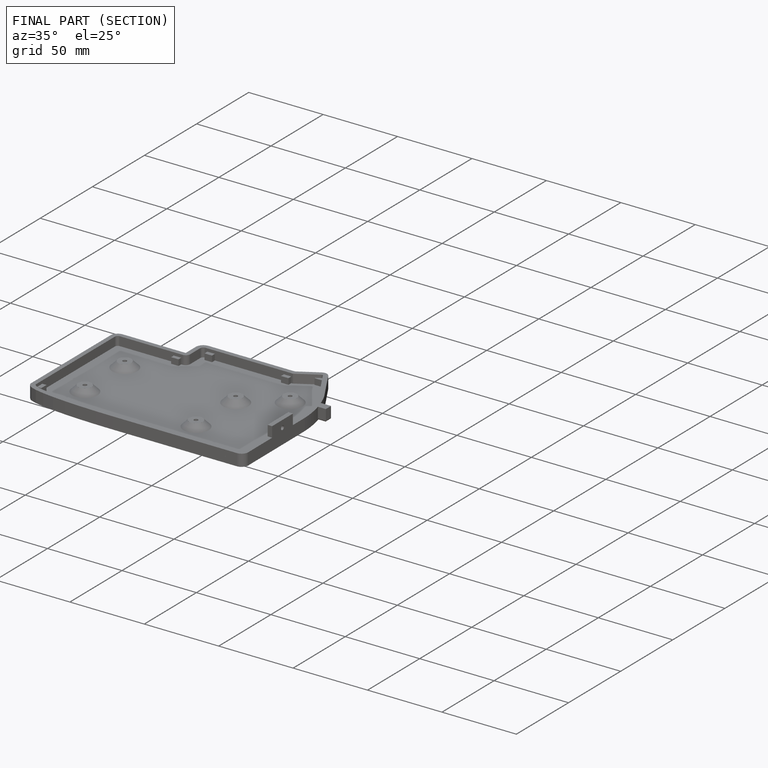
[diagram: finished part — half-section view (interior)]
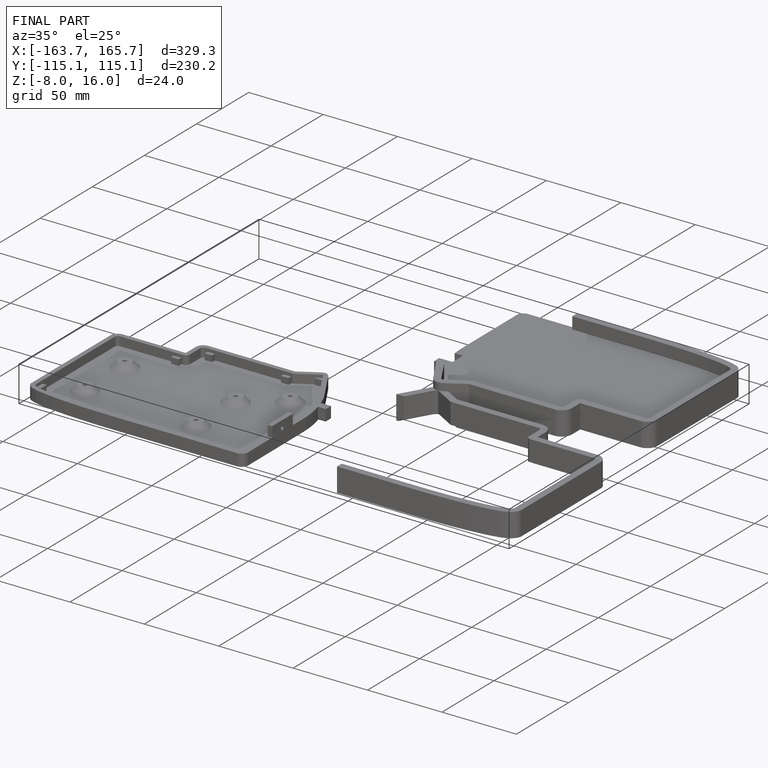
[diagram: finished part — iso view with bounding-box wireframe]
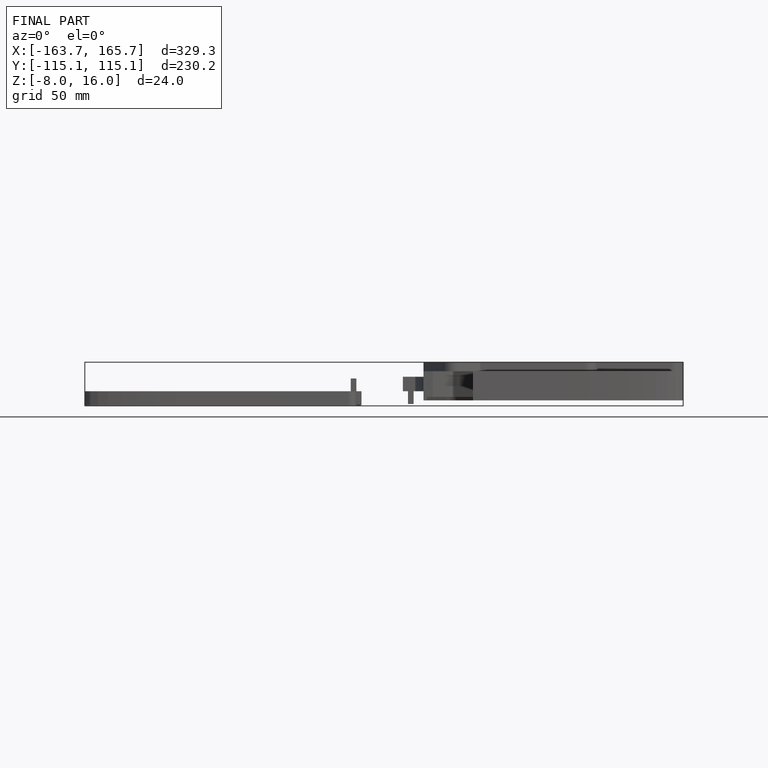
[diagram: finished part — front view with bounding-box wireframe]
